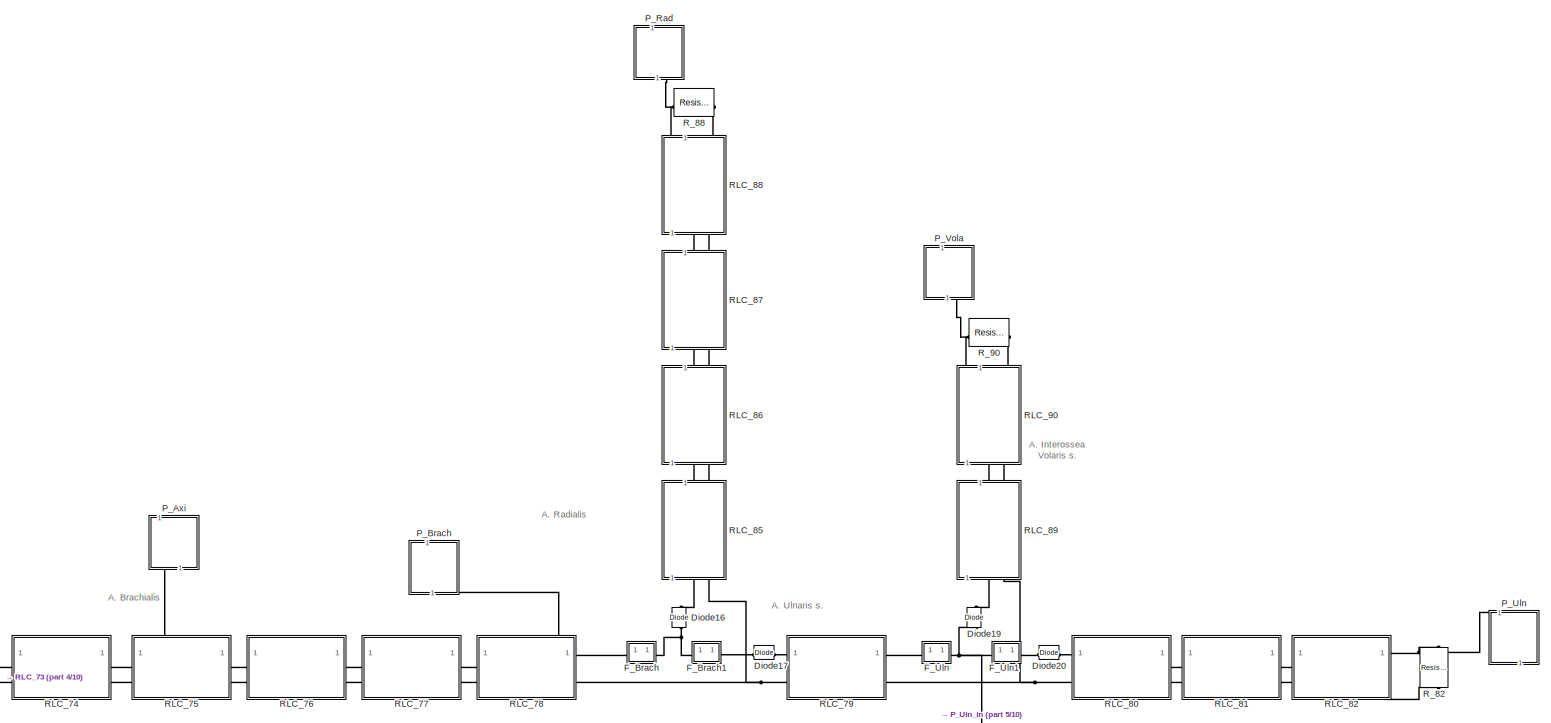
[diagram: root canvas - part 1/10, top right region]
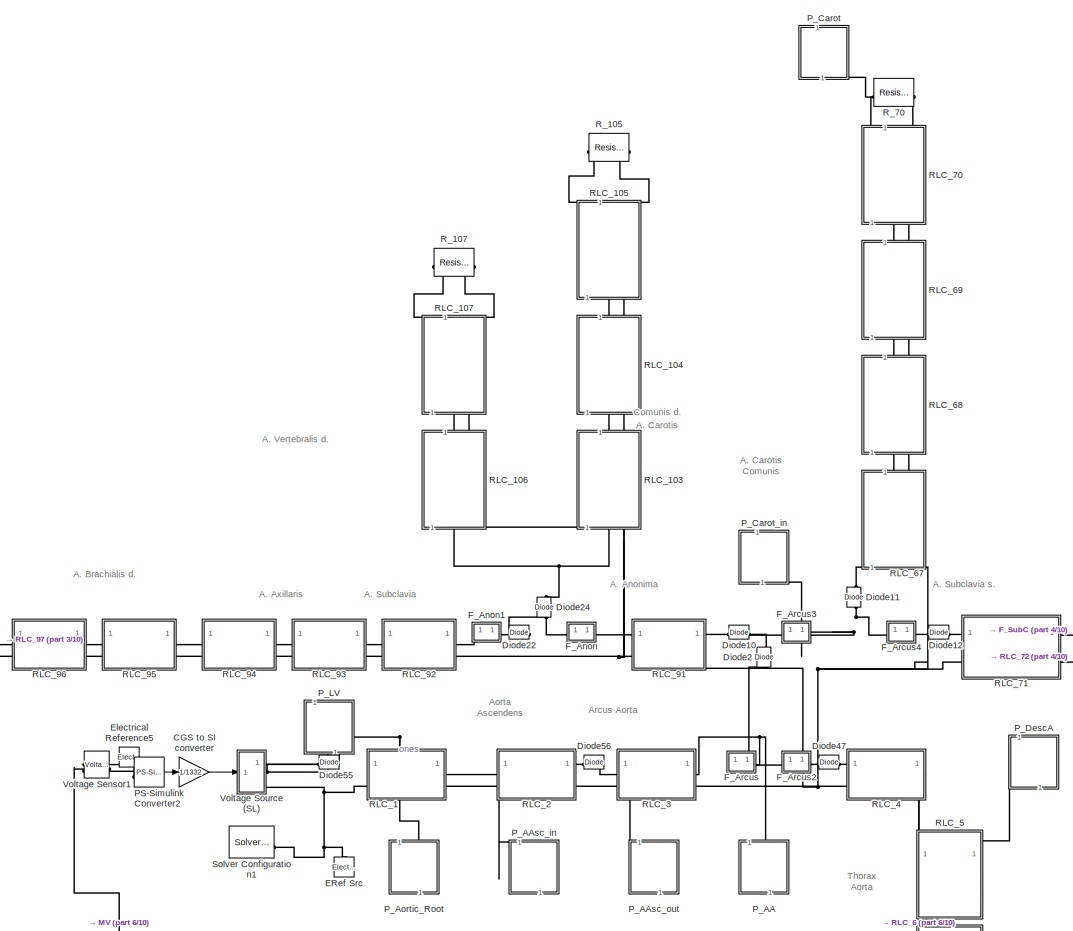
[diagram: root canvas - part 2/10, top left region]
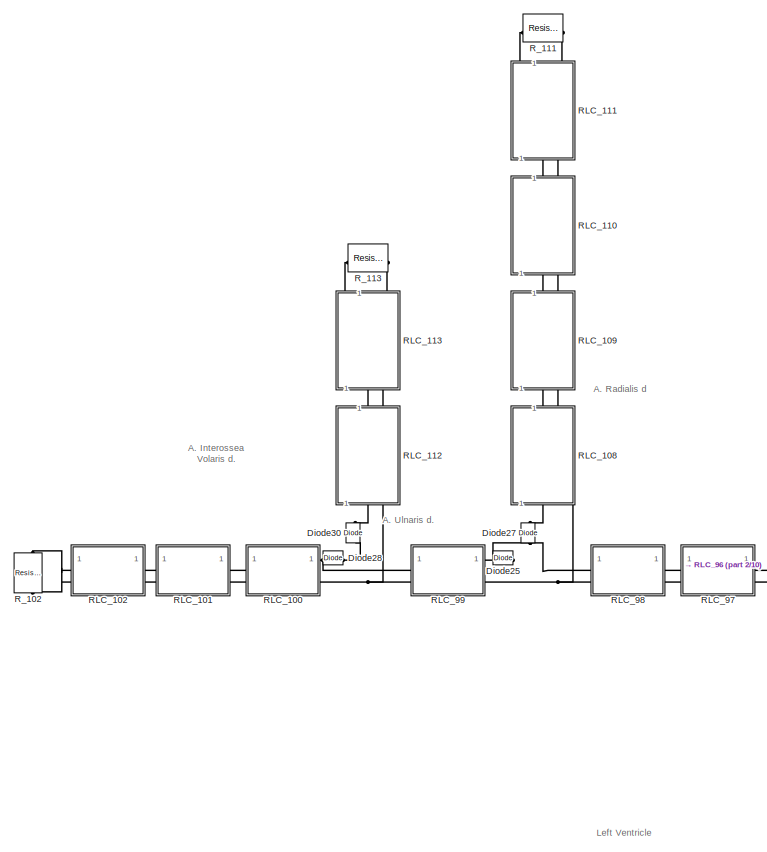
[diagram: root canvas - part 3/10, top left region]
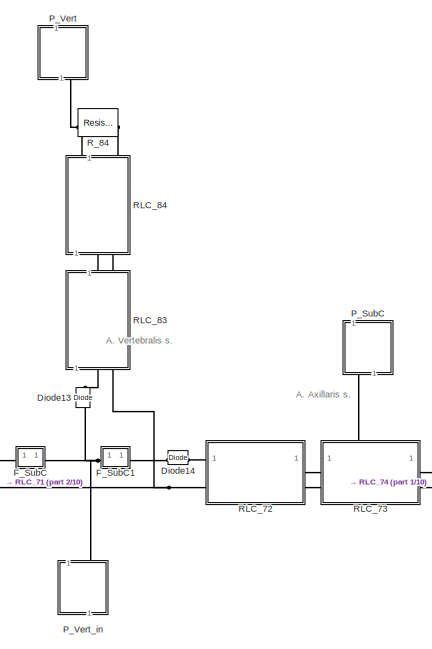
[diagram: root canvas - part 4/10, top center region]
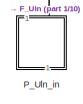
[diagram: root canvas - part 5/10, top right region]
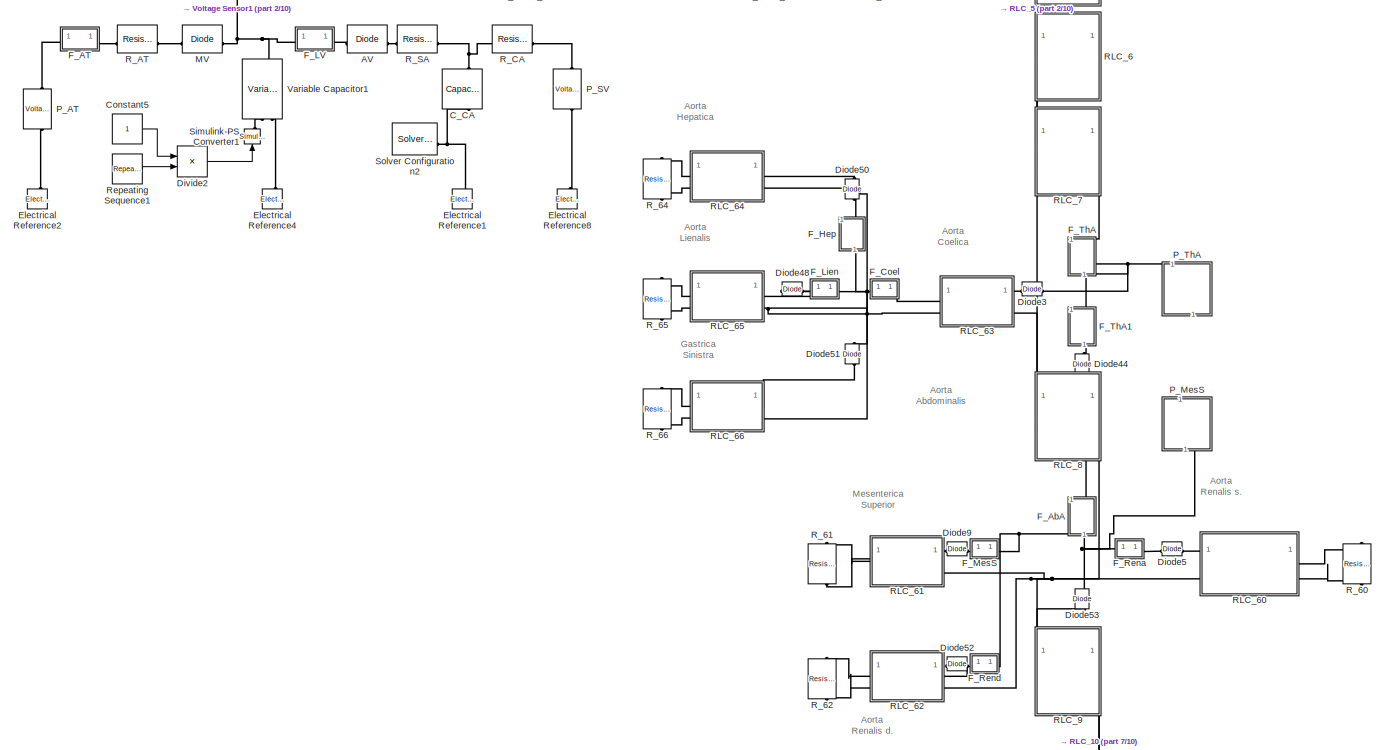
[diagram: root canvas - part 6/10, middle left region]
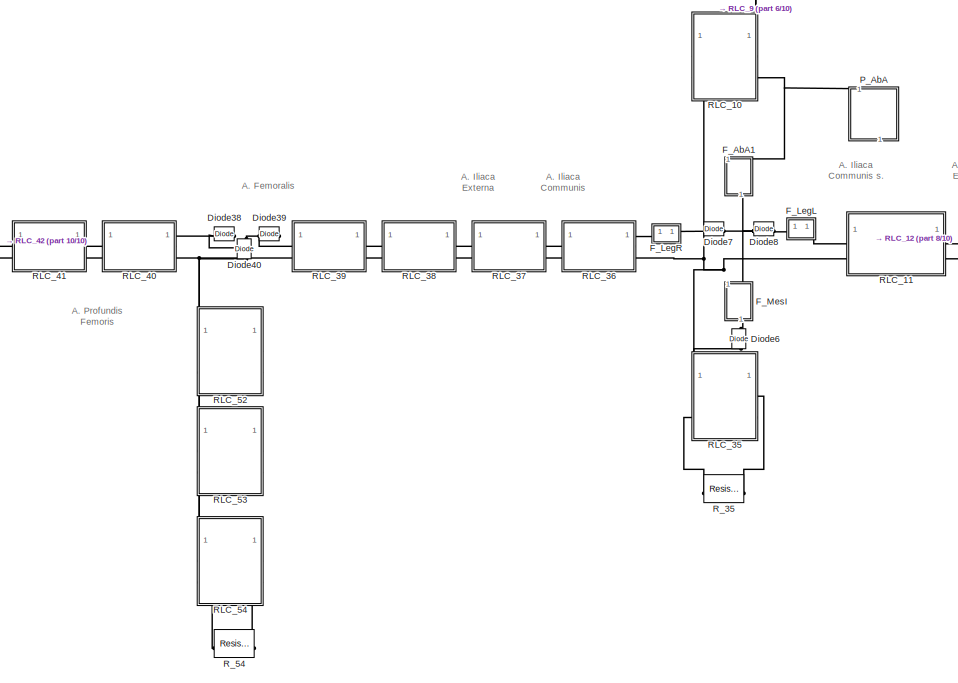
[diagram: root canvas - part 7/10, bottom center region]
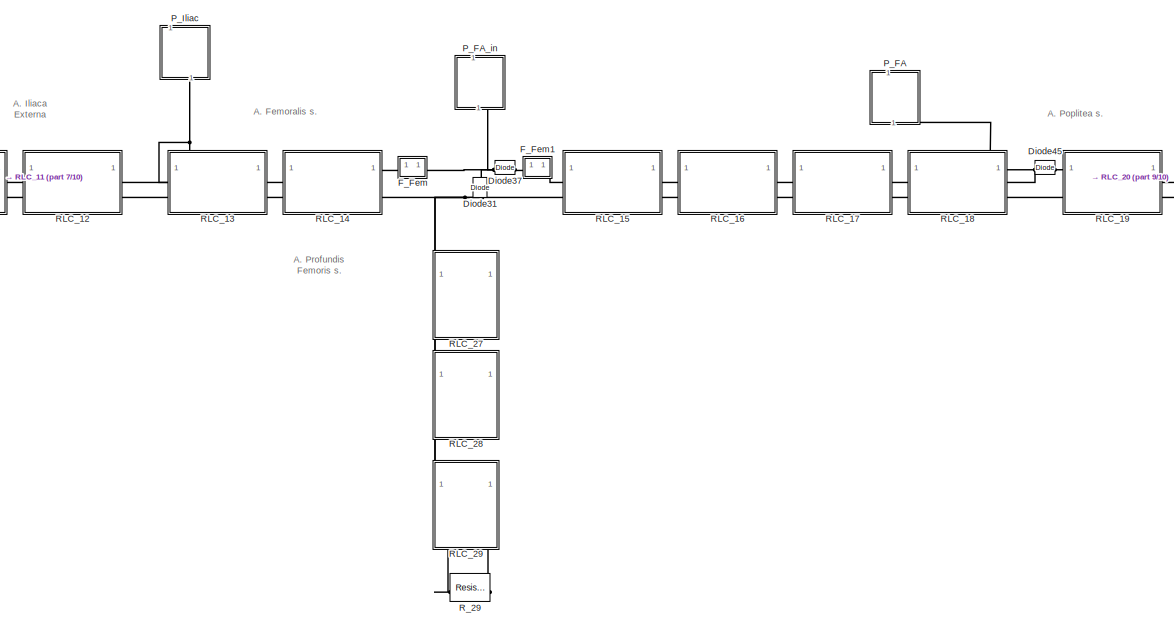
[diagram: root canvas - part 8/10, bottom center region]
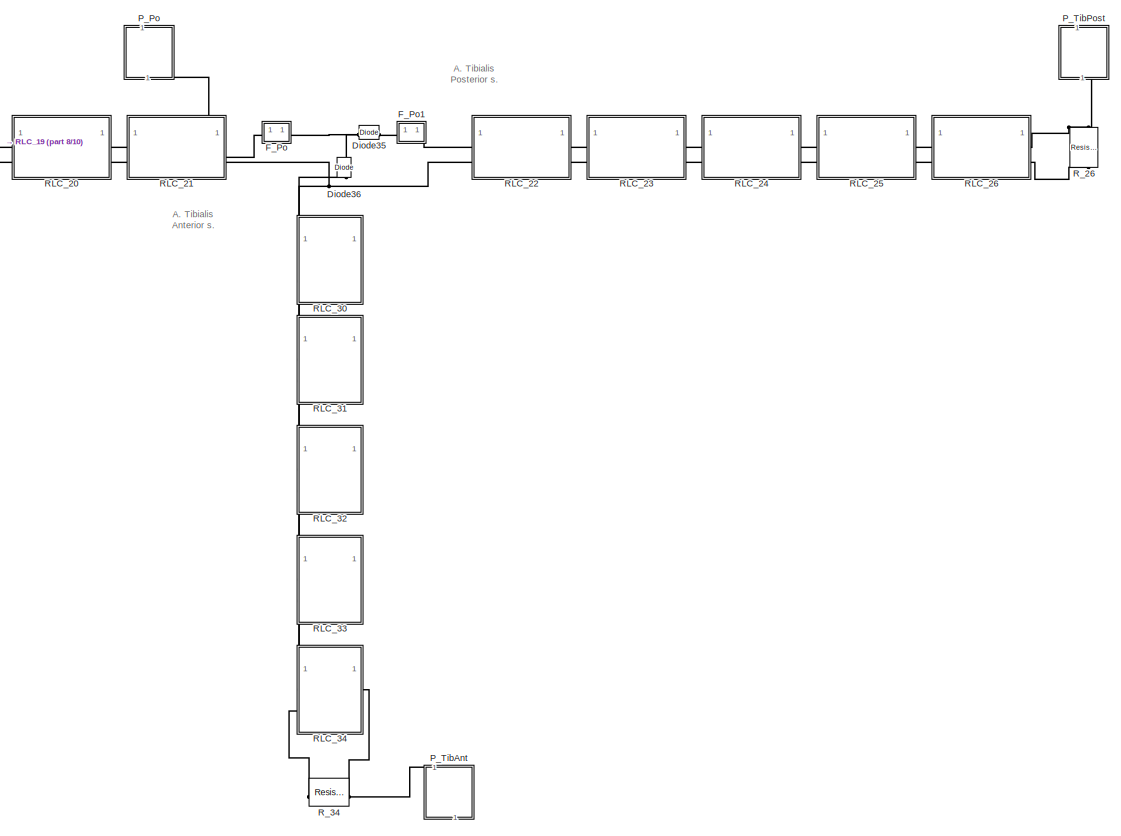
[diagram: root canvas - part 9/10, bottom right region]
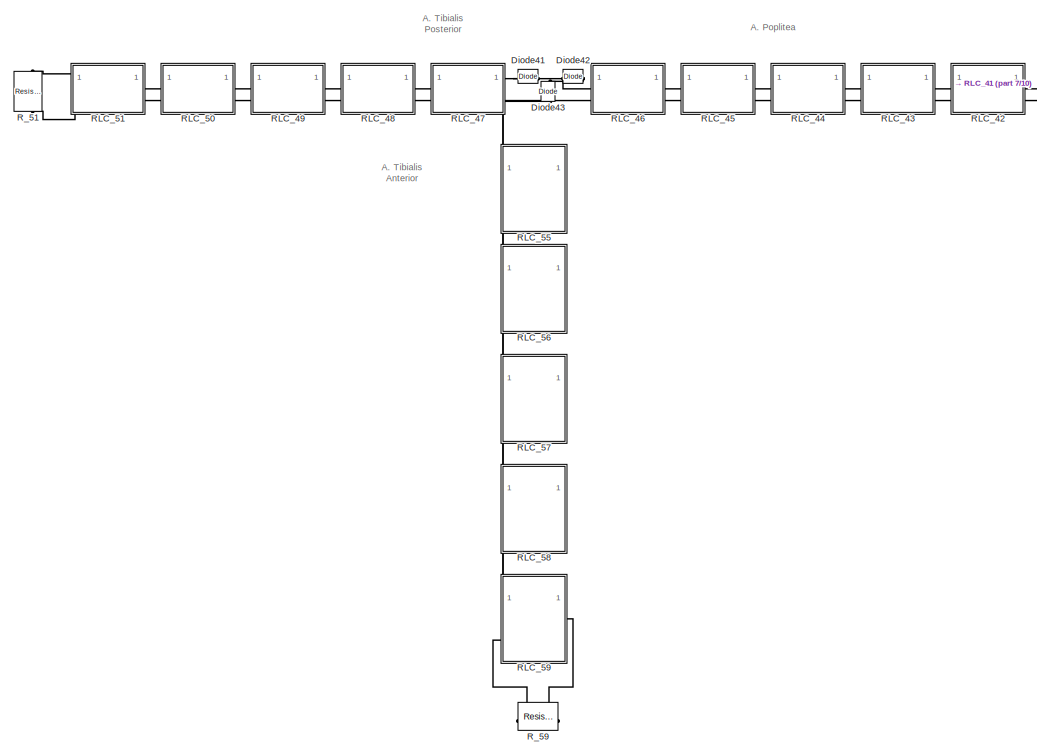
[diagram: root canvas - part 10/10, bottom left region]
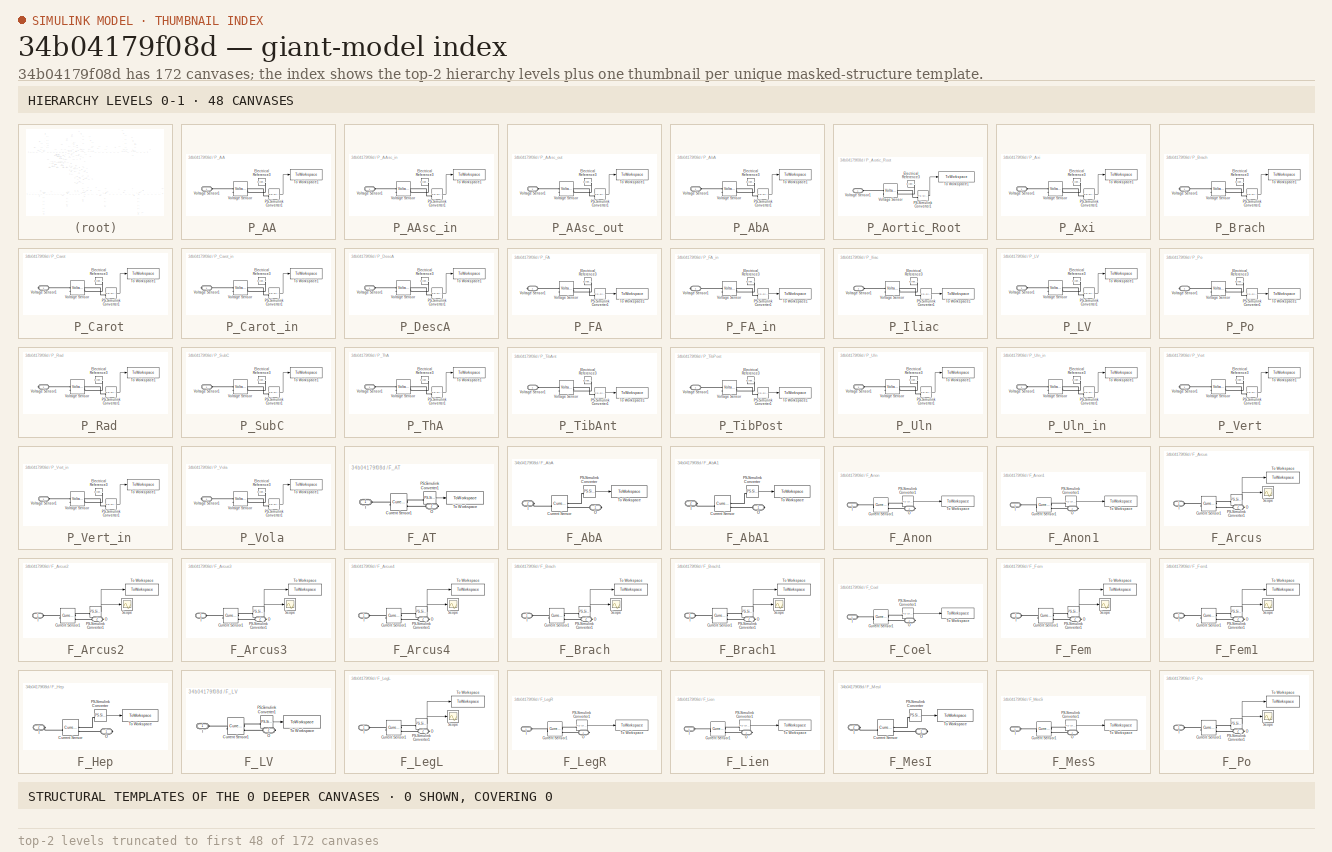
[diagram: thumbnail index - top-2 hierarchy levels (172 canvases (first 48 of 172 shown)) + 0 structural-template representatives of the remaining 0 canvases]
MODEL slx_34b04179f08d
KIND model
CONFIG AbsTol = auto
CONFIG EnableMultiTasking = off
CONFIG FixedStep = sample_time
CONFIG MaxStep = auto
CONFIG MinStep = auto
CONFIG RelTol = 1e-3
CONFIG SampleTimeConstraint = Unconstrained
CONFIG SolverName = FixedStepAuto
CONFIG StartTime = 0.0
CONFIG StopTime = stop_time
BLOCK [SubSystem]  P_AA
  NameLocation = top
  PortSchema = {"entries":[{"content":{"sides":[{"content":{"connectorIds":[]},"type":"ConnectorPlacement.EquallySpacedRectSide","uuid":"a76c572b-3baf-4a16-ab2f-87d419d93200"},{"content":{"connectorIds":[],"side":"RIGHT"},"type":"ConnectorPlacement.EquallySpacedRectSide","uuid":"88de64cb-36a9-4b54-8774-bd24fb5aa84a"},{"content":{"connectorIds":["LConn1"],"side":"TOP"},"type":"ConnectorPlacement.EquallySpacedRect...<+381ch>  <repeated x8 — deduplicated; at blocks: P_AA, P_AAsc_in, P_AAsc_out, P_AbA, P_Aortic_Root, P_DescA, P_LV, P_ThA>
BLOCK [Reference]  P_AA/Electrical Reference3  REF=fl_lib/Electrical/Electrical Elements/Electrical Reference
  NameLocation = top
  SourceBlock = fl_lib/Electrical/Electrical Elements/Electrical Reference
  SourceType = Electrical Reference
BLOCK [Reference]  P_AA/PS-Simulink Converter1  REF=nesl_utility/PS-Simulink
Converter
  NameLocation = top
  SourceBlock = nesl_utility/PS-Simulink\nConverter
  SourceType = PS-Simulink\nConverter
BLOCK [ToWorkspace]  P_AA/To Workspace1
  FixptAsFi = on
  MaxDataPoints = inf
  SampleTime = -1
  SaveFormat = Timeseries
  VariableName = P_AA
BLOCK [Reference]  P_AA/Voltage Sensor  REF=fl_lib/Electrical/Electrical Sensors/Voltage Sensor
  NameLocation = top
  SourceBlock = fl_lib/Electrical/Electrical Sensors/Voltage Sensor
  SourceType = Voltage Sensor
BLOCK [PMIOPort]  P_AA/Voltage Sensor1
  Side = Left
BLOCK [SubSystem]  P_AAsc_in
  NameLocation = top
BLOCK [Reference]  P_AAsc_in/Electrical Reference3  REF=fl_lib/Electrical/Electrical Elements/Electrical Reference
  NameLocation = top
  SourceBlock = fl_lib/Electrical/Electrical Elements/Electrical Reference
  SourceType = Electrical Reference
BLOCK [Reference]  P_AAsc_in/PS-Simulink Converter1  REF=nesl_utility/PS-Simulink
Converter
  NameLocation = top
  SourceBlock = nesl_utility/PS-Simulink\nConverter
  SourceType = PS-Simulink\nConverter
BLOCK [ToWorkspace]  P_AAsc_in/To Workspace1
  FixptAsFi = on
  MaxDataPoints = inf
  SampleTime = -1
  SaveFormat = Timeseries
  VariableName = P_AAsc_in
BLOCK [Reference]  P_AAsc_in/Voltage Sensor  REF=fl_lib/Electrical/Electrical Sensors/Voltage Sensor
  NameLocation = top
  SourceBlock = fl_lib/Electrical/Electrical Sensors/Voltage Sensor
  SourceType = Voltage Sensor
BLOCK [PMIOPort]  P_AAsc_in/Voltage Sensor1
  Side = Left
BLOCK [SubSystem]  P_AAsc_out
  NameLocation = top
BLOCK [Reference]  P_AAsc_out/Electrical Reference3  REF=fl_lib/Electrical/Electrical Elements/Electrical Reference
  NameLocation = top
  SourceBlock = fl_lib/Electrical/Electrical Elements/Electrical Reference
  SourceType = Electrical Reference
BLOCK [Reference]  P_AAsc_out/PS-Simulink Converter1  REF=nesl_utility/PS-Simulink
Converter
  NameLocation = top
  SourceBlock = nesl_utility/PS-Simulink\nConverter
  SourceType = PS-Simulink\nConverter
BLOCK [ToWorkspace]  P_AAsc_out/To Workspace1
  FixptAsFi = on
  MaxDataPoints = inf
  SampleTime = -1
  SaveFormat = Timeseries
  VariableName = P_AAsc_out
BLOCK [Reference]  P_AAsc_out/Voltage Sensor  REF=fl_lib/Electrical/Electrical Sensors/Voltage Sensor
  NameLocation = top
  SourceBlock = fl_lib/Electrical/Electrical Sensors/Voltage Sensor
  SourceType = Voltage Sensor
BLOCK [PMIOPort]  P_AAsc_out/Voltage Sensor1
  Side = Left
BLOCK [SubSystem]  P_AbA
  NameLocation = top
BLOCK [Reference]  P_AbA/Electrical Reference3  REF=fl_lib/Electrical/Electrical Elements/Electrical Reference
  NameLocation = top
  SourceBlock = fl_lib/Electrical/Electrical Elements/Electrical Reference
  SourceType = Electrical Reference
BLOCK [Reference]  P_AbA/PS-Simulink Converter1  REF=nesl_utility/PS-Simulink
Converter
  NameLocation = top
  SourceBlock = nesl_utility/PS-Simulink\nConverter
  SourceType = PS-Simulink\nConverter
BLOCK [ToWorkspace]  P_AbA/To Workspace1
  FixptAsFi = on
  MaxDataPoints = inf
  SampleTime = -1
  SaveFormat = Timeseries
  VariableName = P_AbA
BLOCK [Reference]  P_AbA/Voltage Sensor  REF=fl_lib/Electrical/Electrical Sensors/Voltage Sensor
  NameLocation = top
  SourceBlock = fl_lib/Electrical/Electrical Sensors/Voltage Sensor
  SourceType = Voltage Sensor
BLOCK [PMIOPort]  P_AbA/Voltage Sensor1
  Side = Left
BLOCK [SubSystem]  P_Aortic_Root
  NameLocation = top
BLOCK [Reference]  P_Aortic_Root/Electrical Reference3  REF=fl_lib/Electrical/Electrical Elements/Electrical Reference
  NameLocation = top
  SourceBlock = fl_lib/Electrical/Electrical Elements/Electrical Reference
  SourceType = Electrical Reference
BLOCK [Reference]  P_Aortic_Root/PS-Simulink Converter1  REF=nesl_utility/PS-Simulink
Converter
  NameLocation = top
  SourceBlock = nesl_utility/PS-Simulink\nConverter
  SourceType = PS-Simulink\nConverter
BLOCK [ToWorkspace]  P_Aortic_Root/To Workspace1
  FixptAsFi = on
  MaxDataPoints = inf
  SampleTime = -1
  SaveFormat = Timeseries
  VariableName = P_Aortic_Root
BLOCK [Reference]  P_Aortic_Root/Voltage Sensor  REF=fl_lib/Electrical/Electrical Sensors/Voltage Sensor
  NameLocation = top
  SourceBlock = fl_lib/Electrical/Electrical Sensors/Voltage Sensor
  SourceType = Voltage Sensor
BLOCK [PMIOPort]  P_Aortic_Root/Voltage Sensor1
  Side = Left
BLOCK [SubSystem]  P_Axi
  NameLocation = top
  PortSchema = {"entries":[{"content":{"sides":[{"content":{"connectorIds":[]},"type":"ConnectorPlacement.EquallySpacedRectSide","uuid":"a76c572b-3baf-4a16-ab2f-87d419d93200"},{"content":{"connectorIds":[],"side":"RIGHT"},"type":"ConnectorPlacement.EquallySpacedRectSide","uuid":"88de64cb-36a9-4b54-8774-bd24fb5aa84a"},{"content":{"connectorIds":["LConn1"],"side":"TOP"},"type":"ConnectorPlacement.EquallySpacedRect...<+525ch>  <repeated x4 — deduplicated; at blocks: P_Axi, P_Iliac, P_SubC, P_Uln>
BLOCK [Reference]  P_Axi/Electrical Reference3  REF=fl_lib/Electrical/Electrical Elements/Electrical Reference
  NameLocation = top
  SourceBlock = fl_lib/Electrical/Electrical Elements/Electrical Reference
  SourceType = Electrical Reference
BLOCK [Reference]  P_Axi/PS-Simulink Converter1  REF=nesl_utility/PS-Simulink
Converter
  NameLocation = top
  SourceBlock = nesl_utility/PS-Simulink\nConverter
  SourceType = PS-Simulink\nConverter
BLOCK [ToWorkspace]  P_Axi/To Workspace1
  FixptAsFi = on
  MaxDataPoints = inf
  SampleTime = -1
  SaveFormat = Timeseries
  VariableName = P_Axi
BLOCK [Reference]  P_Axi/Voltage Sensor  REF=fl_lib/Electrical/Electrical Sensors/Voltage Sensor
  NameLocation = top
  SourceBlock = fl_lib/Electrical/Electrical Sensors/Voltage Sensor
  SourceType = Voltage Sensor
BLOCK [PMIOPort]  P_Axi/Voltage Sensor1
  Side = Left
BLOCK [SubSystem]  P_Brach
  NameLocation = top
  PortSchema = {"entries":[{"content":{"sides":[{"content":{"connectorIds":[]},"type":"ConnectorPlacement.EquallySpacedRectSide","uuid":"a76c572b-3baf-4a16-ab2f-87d419d93200"},{"content":{"connectorIds":[],"side":"RIGHT"},"type":"ConnectorPlacement.EquallySpacedRectSide","uuid":"88de64cb-36a9-4b54-8774-bd24fb5aa84a"},{"content":{"connectorIds":[],"side":"TOP"},"type":"ConnectorPlacement.EquallySpacedRectSide","u...<+525ch>  <repeated x3 — deduplicated; at blocks: P_Brach, P_FA, P_Po>
BLOCK [Reference]  P_Brach/Electrical Reference3  REF=fl_lib/Electrical/Electrical Elements/Electrical Reference
  NameLocation = top
  SourceBlock = fl_lib/Electrical/Electrical Elements/Electrical Reference
  SourceType = Electrical Reference
BLOCK [Reference]  P_Brach/PS-Simulink Converter1  REF=nesl_utility/PS-Simulink
Converter
  NameLocation = top
  SourceBlock = nesl_utility/PS-Simulink\nConverter
  SourceType = PS-Simulink\nConverter
BLOCK [ToWorkspace]  P_Brach/To Workspace1
  FixptAsFi = on
  MaxDataPoints = inf
  SampleTime = -1
  SaveFormat = Timeseries
  VariableName = P_Brach
BLOCK [Reference]  P_Brach/Voltage Sensor  REF=fl_lib/Electrical/Electrical Sensors/Voltage Sensor
  NameLocation = top
  SourceBlock = fl_lib/Electrical/Electrical Sensors/Voltage Sensor
  SourceType = Voltage Sensor
BLOCK [PMIOPort]  P_Brach/Voltage Sensor1
  Side = Right
BLOCK [SubSystem]  P_Carot
  NameLocation = top
BLOCK [Reference]  P_Carot/Electrical Reference3  REF=fl_lib/Electrical/Electrical Elements/Electrical Reference
  NameLocation = top
  SourceBlock = fl_lib/Electrical/Electrical Elements/Electrical Reference
  SourceType = Electrical Reference
BLOCK [Reference]  P_Carot/PS-Simulink Converter1  REF=nesl_utility/PS-Simulink
Converter
  NameLocation = top
  SourceBlock = nesl_utility/PS-Simulink\nConverter
  SourceType = PS-Simulink\nConverter
BLOCK [ToWorkspace]  P_Carot/To Workspace1
  FixptAsFi = on
  MaxDataPoints = inf
  SampleTime = -1
  SaveFormat = Timeseries
  VariableName = P_Carot
BLOCK [Reference]  P_Carot/Voltage Sensor  REF=fl_lib/Electrical/Electrical Sensors/Voltage Sensor
  NameLocation = top
  SourceBlock = fl_lib/Electrical/Electrical Sensors/Voltage Sensor
  SourceType = Voltage Sensor
BLOCK [PMIOPort]  P_Carot/Voltage Sensor1
  Side = Right
BLOCK [SubSystem]  P_Carot_in
  NameLocation = top
  PortSchema = {"entries":[{"content":{"sides":[{"content":{},"type":"ConnectorPlacement.EquallySpacedRectSide","uuid":"a1d35573-557f-457b-bf45-c4c74b48ac24"},{"content":{"side":"RIGHT"},"type":"ConnectorPlacement.EquallySpacedRectSide","uuid":"121e7d4c-d41f-45b5-849e-1bc2f3155f6c"},{"content":{"side":"TOP"},"type":"ConnectorPlacement.EquallySpacedRectSide","uuid":"a10ee351-dae1-4dc1-86b4-11b35328910e"},{"conten...<+328ch>
BLOCK [Reference]  P_Carot_in/Electrical Reference3  REF=fl_lib/Electrical/Electrical Elements/Electrical Reference
  NameLocation = top
  SourceBlock = fl_lib/Electrical/Electrical Elements/Electrical Reference
  SourceType = Electrical Reference
BLOCK [Reference]  P_Carot_in/PS-Simulink Converter1  REF=nesl_utility/PS-Simulink
Converter
  NameLocation = top
  SourceBlock = nesl_utility/PS-Simulink\nConverter
  SourceType = PS-Simulink\nConverter
BLOCK [ToWorkspace]  P_Carot_in/To Workspace1
  FixptAsFi = on
  MaxDataPoints = inf
  SampleTime = -1
  SaveFormat = Timeseries
  VariableName = P_Carot_in
BLOCK [Reference]  P_Carot_in/Voltage Sensor  REF=fl_lib/Electrical/Electrical Sensors/Voltage Sensor
  NameLocation = top
  SourceBlock = fl_lib/Electrical/Electrical Sensors/Voltage Sensor
  SourceType = Voltage Sensor
BLOCK [PMIOPort]  P_Carot_in/Voltage Sensor1
  Side = Right
BLOCK [SubSystem]  P_DescA
  NameLocation = top
BLOCK [Reference]  P_DescA/Electrical Reference3  REF=fl_lib/Electrical/Electrical Elements/Electrical Reference
  NameLocation = top
  SourceBlock = fl_lib/Electrical/Electrical Elements/Electrical Reference
  SourceType = Electrical Reference
BLOCK [Reference]  P_DescA/PS-Simulink Converter1  REF=nesl_utility/PS-Simulink
Converter
  NameLocation = top
  SourceBlock = nesl_utility/PS-Simulink\nConverter
  SourceType = PS-Simulink\nConverter
BLOCK [ToWorkspace]  P_DescA/To Workspace1
  FixptAsFi = on
  MaxDataPoints = inf
  SampleTime = -1
  SaveFormat = Timeseries
  VariableName = P_DescA
BLOCK [Reference]  P_DescA/Voltage Sensor  REF=fl_lib/Electrical/Electrical Sensors/Voltage Sensor
  NameLocation = top
  SourceBlock = fl_lib/Electrical/Electrical Sensors/Voltage Sensor
  SourceType = Voltage Sensor
BLOCK [PMIOPort]  P_DescA/Voltage Sensor1
  Side = Left
BLOCK [SubSystem]  P_FA
  NameLocation = top
BLOCK [Reference]  P_FA/Electrical Reference3  REF=fl_lib/Electrical/Electrical Elements/Electrical Reference
  NameLocation = top
  SourceBlock = fl_lib/Electrical/Electrical Elements/Electrical Reference
  SourceType = Electrical Reference
BLOCK [Reference]  P_FA/PS-Simulink Converter1  REF=nesl_utility/PS-Simulink
Converter
  NameLocation = top
  SourceBlock = nesl_utility/PS-Simulink\nConverter
  SourceType = PS-Simulink\nConverter
BLOCK [ToWorkspace]  P_FA/To Workspace1
  FixptAsFi = on
  MaxDataPoints = inf
  SampleTime = -1
  SaveFormat = Timeseries
  VariableName = P_FA
BLOCK [Reference]  P_FA/Voltage Sensor  REF=fl_lib/Electrical/Electrical Sensors/Voltage Sensor
  NameLocation = top
  SourceBlock = fl_lib/Electrical/Electrical Sensors/Voltage Sensor
  SourceType = Voltage Sensor
BLOCK [PMIOPort]  P_FA/Voltage Sensor1
  Side = Right
BLOCK [SubSystem]  P_FA_in
  NameLocation = top
BLOCK [Reference]  P_FA_in/Electrical Reference3  REF=fl_lib/Electrical/Electrical Elements/Electrical Reference
  NameLocation = top
  SourceBlock = fl_lib/Electrical/Electrical Elements/Electrical Reference
  SourceType = Electrical Reference
BLOCK [Reference]  P_FA_in/PS-Simulink Converter1  REF=nesl_utility/PS-Simulink
Converter
  NameLocation = top
  SourceBlock = nesl_utility/PS-Simulink\nConverter
  SourceType = PS-Simulink\nConverter
BLOCK [ToWorkspace]  P_FA_in/To Workspace1
  FixptAsFi = on
  MaxDataPoints = inf
  SampleTime = -1
  SaveFormat = Timeseries
  VariableName = P_FA_in
BLOCK [Reference]  P_FA_in/Voltage Sensor  REF=fl_lib/Electrical/Electrical Sensors/Voltage Sensor
  NameLocation = top
  SourceBlock = fl_lib/Electrical/Electrical Sensors/Voltage Sensor
  SourceType = Voltage Sensor
BLOCK [PMIOPort]  P_FA_in/Voltage Sensor1
  Side = Right
BLOCK [SubSystem]  P_Iliac
  NameLocation = top
BLOCK [Reference]  P_Iliac/Electrical Reference3  REF=fl_lib/Electrical/Electrical Elements/Electrical Reference
  NameLocation = top
  SourceBlock = fl_lib/Electrical/Electrical Elements/Electrical Reference
  SourceType = Electrical Reference
BLOCK [Reference]  P_Iliac/PS-Simulink Converter1  REF=nesl_utility/PS-Simulink
Converter
  NameLocation = top
  SourceBlock = nesl_utility/PS-Simulink\nConverter
  SourceType = PS-Simulink\nConverter
BLOCK [ToWorkspace]  P_Iliac/To Workspace1
  FixptAsFi = on
  MaxDataPoints = inf
  SampleTime = -1
  SaveFormat = Timeseries
  VariableName = P_Iliac
BLOCK [Reference]  P_Iliac/Voltage Sensor  REF=fl_lib/Electrical/Electrical Sensors/Voltage Sensor
  NameLocation = top
  SourceBlock = fl_lib/Electrical/Electrical Sensors/Voltage Sensor
  SourceType = Voltage Sensor
BLOCK [PMIOPort]  P_Iliac/Voltage Sensor1
  Side = Left
BLOCK [SubSystem]  P_LV
  NameLocation = top
BLOCK [Reference]  P_LV/Electrical Reference3  REF=fl_lib/Electrical/Electrical Elements/Electrical Reference
  NameLocation = top
  SourceBlock = fl_lib/Electrical/Electrical Elements/Electrical Reference
  SourceType = Electrical Reference
BLOCK [Reference]  P_LV/PS-Simulink Converter1  REF=nesl_utility/PS-Simulink
Converter
  NameLocation = top
  SourceBlock = nesl_utility/PS-Simulink\nConverter
  SourceType = PS-Simulink\nConverter
BLOCK [ToWorkspace]  P_LV/To Workspace1
  FixptAsFi = on
  MaxDataPoints = inf
  SampleTime = -1
  SaveFormat = Timeseries
  VariableName = P_LV
BLOCK [Reference]  P_LV/Voltage Sensor  REF=fl_lib/Electrical/Electrical Sensors/Voltage Sensor
  NameLocation = top
  SourceBlock = fl_lib/Electrical/Electrical Sensors/Voltage Sensor
  SourceType = Voltage Sensor
BLOCK [PMIOPort]  P_LV/Voltage Sensor1
  Side = Left
BLOCK [SubSystem]  P_Po
  NameLocation = top
BLOCK [Reference]  P_Po/Electrical Reference3  REF=fl_lib/Electrical/Electrical Elements/Electrical Reference
  NameLocation = top
  SourceBlock = fl_lib/Electrical/Electrical Elements/Electrical Reference
  SourceType = Electrical Reference
BLOCK [Reference]  P_Po/PS-Simulink Converter1  REF=nesl_utility/PS-Simulink
Converter
  NameLocation = top
  SourceBlock = nesl_utility/PS-Simulink\nConverter
  SourceType = PS-Simulink\nConverter
BLOCK [ToWorkspace]  P_Po/To Workspace1
  FixptAsFi = on
  MaxDataPoints = inf
  SampleTime = -1
  SaveFormat = Timeseries
  VariableName = P_Po
BLOCK [Reference]  P_Po/Voltage Sensor  REF=fl_lib/Electrical/Electrical Sensors/Voltage Sensor
  NameLocation = top
  SourceBlock = fl_lib/Electrical/Electrical Sensors/Voltage Sensor
  SourceType = Voltage Sensor
BLOCK [PMIOPort]  P_Po/Voltage Sensor1
  Side = Right
BLOCK [SubSystem]  P_Rad
  NameLocation = top
BLOCK [Reference]  P_Rad/Electrical Reference3  REF=fl_lib/Electrical/Electrical Elements/Electrical Reference
  NameLocation = top
  SourceBlock = fl_lib/Electrical/Electrical Elements/Electrical Reference
  SourceType = Electrical Reference
BLOCK [Reference]  P_Rad/PS-Simulink Converter1  REF=nesl_utility/PS-Simulink
Converter
  NameLocation = top
  SourceBlock = nesl_utility/PS-Simulink\nConverter
  SourceType = PS-Simulink\nConverter
BLOCK [ToWorkspace]  P_Rad/To Workspace1
  FixptAsFi = on
  MaxDataPoints = inf
  SampleTime = -1
  SaveFormat = Timeseries
  VariableName = P_Rad
BLOCK [Reference]  P_Rad/Voltage Sensor  REF=fl_lib/Electrical/Electrical Sensors/Voltage Sensor
  NameLocation = top
  SourceBlock = fl_lib/Electrical/Electrical Sensors/Voltage Sensor
  SourceType = Voltage Sensor
BLOCK [PMIOPort]  P_Rad/Voltage Sensor1
  Side = Right
BLOCK [SubSystem]  P_SubC
  NameLocation = top
BLOCK [Reference]  P_SubC/Electrical Reference3  REF=fl_lib/Electrical/Electrical Elements/Electrical Reference
  NameLocation = top
  SourceBlock = fl_lib/Electrical/Electrical Elements/Electrical Reference
  SourceType = Electrical Reference
BLOCK [Reference]  P_SubC/PS-Simulink Converter1  REF=nesl_utility/PS-Simulink
Converter
  NameLocation = top
  SourceBlock = nesl_utility/PS-Simulink\nConverter
  SourceType = PS-Simulink\nConverter
BLOCK [ToWorkspace]  P_SubC/To Workspace1
  FixptAsFi = on
  MaxDataPoints = inf
  SampleTime = -1
  SaveFormat = Timeseries
  VariableName = P_SubC
BLOCK [Reference]  P_SubC/Voltage Sensor  REF=fl_lib/Electrical/Electrical Sensors/Voltage Sensor
  NameLocation = top
  SourceBlock = fl_lib/Electrical/Electrical Sensors/Voltage Sensor
  SourceType = Voltage Sensor
BLOCK [PMIOPort]  P_SubC/Voltage Sensor1
  Side = Left
BLOCK [SubSystem]  P_ThA
  NameLocation = top
BLOCK [Reference]  P_ThA/Electrical Reference3  REF=fl_lib/Electrical/Electrical Elements/Electrical Reference
  NameLocation = top
  SourceBlock = fl_lib/Electrical/Electrical Elements/Electrical Reference
  SourceType = Electrical Reference
BLOCK [Reference]  P_ThA/PS-Simulink Converter1  REF=nesl_utility/PS-Simulink
Converter
  NameLocation = top
  SourceBlock = nesl_utility/PS-Simulink\nConverter
  SourceType = PS-Simulink\nConverter
BLOCK [ToWorkspace]  P_ThA/To Workspace1
  FixptAsFi = on
  MaxDataPoints = inf
  SampleTime = -1
  SaveFormat = Timeseries
  VariableName = P_ThA
BLOCK [Reference]  P_ThA/Voltage Sensor  REF=fl_lib/Electrical/Electrical Sensors/Voltage Sensor
  NameLocation = top
  SourceBlock = fl_lib/Electrical/Electrical Sensors/Voltage Sensor
  SourceType = Voltage Sensor
BLOCK [PMIOPort]  P_ThA/Voltage Sensor1
  Side = Left
BLOCK [SubSystem]  P_TibAnt
  NameLocation = top
  PortSchema = {"entries":[{"content":{"sides":[{"content":{"connectorIds":[]},"type":"ConnectorPlacement.EquallySpacedRectSide","uuid":"efa007d6-45f4-4edc-b08d-571edfadacea"},{"content":{"connectorIds":[],"side":"RIGHT"},"type":"ConnectorPlacement.EquallySpacedRectSide","uuid":"9590d5ff-e9bb-4f62-8234-4beabe73ec5b"},{"content":{"connectorIds":["LConn1"],"side":"TOP"},"type":"ConnectorPlacement.EquallySpacedRect...<+237ch>
BLOCK [Reference]  P_TibAnt/Electrical Reference3  REF=fl_lib/Electrical/Electrical Elements/Electrical Reference
  NameLocation = top
  SourceBlock = fl_lib/Electrical/Electrical Elements/Electrical Reference
  SourceType = Electrical Reference
BLOCK [Reference]  P_TibAnt/PS-Simulink Converter1  REF=nesl_utility/PS-Simulink
Converter
  NameLocation = top
  SourceBlock = nesl_utility/PS-Simulink\nConverter
  SourceType = PS-Simulink\nConverter
BLOCK [ToWorkspace]  P_TibAnt/To Workspace1
  FixptAsFi = on
  MaxDataPoints = inf
  SampleTime = -1
  SaveFormat = Timeseries
  VariableName = P_TibAnt
BLOCK [Reference]  P_TibAnt/Voltage Sensor  REF=fl_lib/Electrical/Electrical Sensors/Voltage Sensor
  NameLocation = top
  SourceBlock = fl_lib/Electrical/Electrical Sensors/Voltage Sensor
  SourceType = Voltage Sensor
BLOCK [PMIOPort]  P_TibAnt/Voltage Sensor1
  Side = Left
BLOCK [SubSystem]  P_TibPost
  NameLocation = top
BLOCK [Reference]  P_TibPost/Electrical Reference3  REF=fl_lib/Electrical/Electrical Elements/Electrical Reference
  NameLocation = top
  SourceBlock = fl_lib/Electrical/Electrical Elements/Electrical Reference
  SourceType = Electrical Reference
BLOCK [Reference]  P_TibPost/PS-Simulink Converter1  REF=nesl_utility/PS-Simulink
Converter
  NameLocation = top
  SourceBlock = nesl_utility/PS-Simulink\nConverter
  SourceType = PS-Simulink\nConverter
BLOCK [ToWorkspace]  P_TibPost/To Workspace1
  FixptAsFi = on
  MaxDataPoints = inf
  SampleTime = -1
  SaveFormat = Timeseries
  VariableName = P_TibPost
BLOCK [Reference]  P_TibPost/Voltage Sensor  REF=fl_lib/Electrical/Electrical Sensors/Voltage Sensor
  NameLocation = top
  SourceBlock = fl_lib/Electrical/Electrical Sensors/Voltage Sensor
  SourceType = Voltage Sensor
BLOCK [PMIOPort]  P_TibPost/Voltage Sensor1
  Side = Right
BLOCK [SubSystem]  P_Uln
  NameLocation = top
BLOCK [Reference]  P_Uln/Electrical Reference3  REF=fl_lib/Electrical/Electrical Elements/Electrical Reference
  NameLocation = top
  SourceBlock = fl_lib/Electrical/Electrical Elements/Electrical Reference
  SourceType = Electrical Reference
BLOCK [Reference]  P_Uln/PS-Simulink Converter1  REF=nesl_utility/PS-Simulink
Converter
  NameLocation = top
  SourceBlock = nesl_utility/PS-Simulink\nConverter
  SourceType = PS-Simulink\nConverter
BLOCK [ToWorkspace]  P_Uln/To Workspace1
  FixptAsFi = on
  MaxDataPoints = inf
  SampleTime = -1
  SaveFormat = Timeseries
  VariableName = P_Uln
BLOCK [Reference]  P_Uln/Voltage Sensor  REF=fl_lib/Electrical/Electrical Sensors/Voltage Sensor
  NameLocation = top
  SourceBlock = fl_lib/Electrical/Electrical Sensors/Voltage Sensor
  SourceType = Voltage Sensor
BLOCK [PMIOPort]  P_Uln/Voltage Sensor1
  Side = Left
BLOCK [SubSystem]  P_Uln_in
BLOCK [Reference]  P_Uln_in/Electrical Reference3  REF=fl_lib/Electrical/Electrical Elements/Electrical Reference
  NameLocation = top
  SourceBlock = fl_lib/Electrical/Electrical Elements/Electrical Reference
  SourceType = Electrical Reference
BLOCK [Reference]  P_Uln_in/PS-Simulink Converter1  REF=nesl_utility/PS-Simulink
Converter
  NameLocation = top
  SourceBlock = nesl_utility/PS-Simulink\nConverter
  SourceType = PS-Simulink\nConverter
BLOCK [ToWorkspace]  P_Uln_in/To Workspace1
  FixptAsFi = on
  MaxDataPoints = inf
  SampleTime = -1
  SaveFormat = Timeseries
  VariableName = P_Uln_in1
BLOCK [Reference]  P_Uln_in/Voltage Sensor  REF=fl_lib/Electrical/Electrical Sensors/Voltage Sensor
  NameLocation = top
  SourceBlock = fl_lib/Electrical/Electrical Sensors/Voltage Sensor
  SourceType = Voltage Sensor
BLOCK [PMIOPort]  P_Uln_in/Voltage Sensor1
  Side = Left
BLOCK [SubSystem]  P_Vert
  NameLocation = top
BLOCK [Reference]  P_Vert/Electrical Reference3  REF=fl_lib/Electrical/Electrical Elements/Electrical Reference
  NameLocation = top
  SourceBlock = fl_lib/Electrical/Electrical Elements/Electrical Reference
  SourceType = Electrical Reference
BLOCK [Reference]  P_Vert/PS-Simulink Converter1  REF=nesl_utility/PS-Simulink
Converter
  NameLocation = top
  SourceBlock = nesl_utility/PS-Simulink\nConverter
  SourceType = PS-Simulink\nConverter
BLOCK [ToWorkspace]  P_Vert/To Workspace1
  FixptAsFi = on
  MaxDataPoints = inf
  SampleTime = -1
  SaveFormat = Timeseries
  VariableName = P_Vert
BLOCK [Reference]  P_Vert/Voltage Sensor  REF=fl_lib/Electrical/Electrical Sensors/Voltage Sensor
  NameLocation = top
  SourceBlock = fl_lib/Electrical/Electrical Sensors/Voltage Sensor
  SourceType = Voltage Sensor
BLOCK [PMIOPort]  P_Vert/Voltage Sensor1
  Side = Right
BLOCK [SubSystem]  P_Vert_in
BLOCK [Reference]  P_Vert_in/Electrical Reference3  REF=fl_lib/Electrical/Electrical Elements/Electrical Reference
  NameLocation = top
  SourceBlock = fl_lib/Electrical/Electrical Elements/Electrical Reference
  SourceType = Electrical Reference
BLOCK [Reference]  P_Vert_in/PS-Simulink Converter1  REF=nesl_utility/PS-Simulink
Converter
  NameLocation = top
  SourceBlock = nesl_utility/PS-Simulink\nConverter
  SourceType = PS-Simulink\nConverter
BLOCK [ToWorkspace]  P_Vert_in/To Workspace1
  FixptAsFi = on
  MaxDataPoints = inf
  SampleTime = -1
  SaveFormat = Timeseries
  VariableName = P_Vert_in
BLOCK [Reference]  P_Vert_in/Voltage Sensor  REF=fl_lib/Electrical/Electrical Sensors/Voltage Sensor
  NameLocation = top
  SourceBlock = fl_lib/Electrical/Electrical Sensors/Voltage Sensor
  SourceType = Voltage Sensor
BLOCK [PMIOPort]  P_Vert_in/Voltage Sensor1
  Side = Left
BLOCK [SubSystem]  P_Vola
  NameLocation = top
BLOCK [Reference]  P_Vola/Electrical Reference3  REF=fl_lib/Electrical/Electrical Elements/Electrical Reference
  NameLocation = top
  SourceBlock = fl_lib/Electrical/Electrical Elements/Electrical Reference
  SourceType = Electrical Reference
BLOCK [Reference]  P_Vola/PS-Simulink Converter1  REF=nesl_utility/PS-Simulink
Converter
  NameLocation = top
  SourceBlock = nesl_utility/PS-Simulink\nConverter
  SourceType = PS-Simulink\nConverter
BLOCK [ToWorkspace]  P_Vola/To Workspace1
  FixptAsFi = on
  MaxDataPoints = inf
  SampleTime = -1
  SaveFormat = Timeseries
  VariableName = P_Vola
BLOCK [Reference]  P_Vola/Voltage Sensor  REF=fl_lib/Electrical/Electrical Sensors/Voltage Sensor
  NameLocation = top
  SourceBlock = fl_lib/Electrical/Electrical Sensors/Voltage Sensor
  SourceType = Voltage Sensor
BLOCK [PMIOPort]  P_Vola/Voltage Sensor1
  Side = Right
BLOCK [Reference] AV  REF=fl_lib/Electrical/Electrical Elements/Diode
  NameLocation = top
  SourceBlock = fl_lib/Electrical/Electrical Elements/Diode
  SourceType = Diode
BLOCK [Gain] CGS to SI converter
  Gain = 1/1332
  NameLocation = top
BLOCK [Reference] C_CA  REF=fl_lib/Electrical/Electrical Elements/Capacitor
  NameLocation = left
  SourceBlock = fl_lib/Electrical/Electrical Elements/Capacitor
  SourceType = Capacitor
BLOCK [Constant] Constant5
  SampleTime = sample_time
BLOCK [Reference] Diode10  REF=ee_lib/Semiconductors &
Converters/Diode
  NameLocation = top
  SourceBlock = ee_lib/Semiconductors &\nConverters/Diode
  SourceType = Diode
BLOCK [Reference] Diode11  REF=ee_lib/Semiconductors &
Converters/Diode
  NameLocation = right
  SourceBlock = ee_lib/Semiconductors &\nConverters/Diode
  SourceType = Diode
BLOCK [Reference] Diode12  REF=ee_lib/Semiconductors &
Converters/Diode
  SourceBlock = ee_lib/Semiconductors &\nConverters/Diode
  SourceType = Diode
BLOCK [Reference] Diode13  REF=ee_lib/Semiconductors &
Converters/Diode
  NameLocation = right
  SourceBlock = ee_lib/Semiconductors &\nConverters/Diode
  SourceType = Diode
BLOCK [Reference] Diode14  REF=ee_lib/Semiconductors &
Converters/Diode
  SourceBlock = ee_lib/Semiconductors &\nConverters/Diode
  SourceType = Diode
BLOCK [Reference] Diode16  REF=ee_lib/Semiconductors &
Converters/Diode
  NameLocation = right
  SourceBlock = ee_lib/Semiconductors &\nConverters/Diode
  SourceType = Diode
BLOCK [Reference] Diode17  REF=ee_lib/Semiconductors &
Converters/Diode
  SourceBlock = ee_lib/Semiconductors &\nConverters/Diode
  SourceType = Diode
BLOCK [Reference] Diode19  REF=ee_lib/Semiconductors &
Converters/Diode
  NameLocation = right
  SourceBlock = ee_lib/Semiconductors &\nConverters/Diode
  SourceType = Diode
BLOCK [Reference] Diode2  REF=ee_lib/Semiconductors &
Converters/Diode
  NameLocation = right
  SourceBlock = ee_lib/Semiconductors &\nConverters/Diode
  SourceType = Diode
BLOCK [Reference] Diode20  REF=ee_lib/Semiconductors &
Converters/Diode
  SourceBlock = ee_lib/Semiconductors &\nConverters/Diode
  SourceType = Diode
BLOCK [Reference] Diode22  REF=ee_lib/Semiconductors &
Converters/Diode
  NameLocation = top
  SourceBlock = ee_lib/Semiconductors &\nConverters/Diode
  SourceType = Diode
BLOCK [Reference] Diode24  REF=ee_lib/Semiconductors &
Converters/Diode
  NameLocation = right
  SourceBlock = ee_lib/Semiconductors &\nConverters/Diode
  SourceType = Diode
BLOCK [Reference] Diode25  REF=ee_lib/Semiconductors &
Converters/Diode
  NameLocation = top
  SourceBlock = ee_lib/Semiconductors &\nConverters/Diode
  SourceType = Diode
BLOCK [Reference] Diode27  REF=ee_lib/Semiconductors &
Converters/Diode
  NameLocation = right
  SourceBlock = ee_lib/Semiconductors &\nConverters/Diode
  SourceType = Diode
BLOCK [Reference] Diode28  REF=ee_lib/Semiconductors &
Converters/Diode
  NameLocation = top
  SourceBlock = ee_lib/Semiconductors &\nConverters/Diode
  SourceType = Diode
BLOCK [Reference] Diode3  REF=ee_lib/Semiconductors &
Converters/Diode
  NameLocation = top
  SourceBlock = ee_lib/Semiconductors &\nConverters/Diode
  SourceType = Diode
BLOCK [Reference] Diode30  REF=ee_lib/Semiconductors &
Converters/Diode
  NameLocation = right
  SourceBlock = ee_lib/Semiconductors &\nConverters/Diode
  SourceType = Diode
BLOCK [Reference] Diode31  REF=ee_lib/Semiconductors &
Converters/Diode
  NameLocation = left
  SourceBlock = ee_lib/Semiconductors &\nConverters/Diode
  SourceType = Diode
BLOCK [Reference] Diode35  REF=ee_lib/Semiconductors &
Converters/Diode
  SourceBlock = ee_lib/Semiconductors &\nConverters/Diode
  SourceType = Diode
BLOCK [Reference] Diode36  REF=ee_lib/Semiconductors &
Converters/Diode
  NameLocation = left
  SourceBlock = ee_lib/Semiconductors &\nConverters/Diode
  SourceType = Diode
BLOCK [Reference] Diode37  REF=ee_lib/Semiconductors &
Converters/Diode
  SourceBlock = ee_lib/Semiconductors &\nConverters/Diode
  SourceType = Diode
BLOCK [Reference] Diode38  REF=ee_lib/Semiconductors &
Converters/Diode
  NameLocation = top
  SourceBlock = ee_lib/Semiconductors &\nConverters/Diode
  SourceType = Diode
BLOCK [Reference] Diode39  REF=ee_lib/Semiconductors &
Converters/Diode
  NameLocation = top
  SourceBlock = ee_lib/Semiconductors &\nConverters/Diode
  SourceType = Diode
BLOCK [Reference] Diode40  REF=ee_lib/Semiconductors &
Converters/Diode
  NameLocation = left
  SourceBlock = ee_lib/Semiconductors &\nConverters/Diode
  SourceType = Diode
BLOCK [Reference] Diode41  REF=ee_lib/Semiconductors &
Converters/Diode
  NameLocation = top
  SourceBlock = ee_lib/Semiconductors &\nConverters/Diode
  SourceType = Diode
BLOCK [Reference] Diode42  REF=ee_lib/Semiconductors &
Converters/Diode
  NameLocation = top
  SourceBlock = ee_lib/Semiconductors &\nConverters/Diode
  SourceType = Diode
BLOCK [Reference] Diode43  REF=ee_lib/Semiconductors &
Converters/Diode
  NameLocation = left
  SourceBlock = ee_lib/Semiconductors &\nConverters/Diode
  SourceType = Diode
BLOCK [Reference] Diode44  REF=ee_lib/Semiconductors &
Converters/Diode
  NameLocation = left
  SourceBlock = ee_lib/Semiconductors &\nConverters/Diode
  SourceType = Diode
BLOCK [Reference] Diode45  REF=ee_lib/Semiconductors &
Converters/Diode
  SourceBlock = ee_lib/Semiconductors &\nConverters/Diode
  SourceType = Diode
BLOCK [Reference] Diode47  REF=ee_lib/Semiconductors &
Converters/Diode
  SourceBlock = ee_lib/Semiconductors &\nConverters/Diode
  SourceType = Diode
BLOCK [Reference] Diode48  REF=ee_lib/Semiconductors &
Converters/Diode
  NameLocation = top
  SourceBlock = ee_lib/Semiconductors &\nConverters/Diode
  SourceType = Diode
BLOCK [Reference] Diode5  REF=ee_lib/Semiconductors &
Converters/Diode
  SourceBlock = ee_lib/Semiconductors &\nConverters/Diode
  SourceType = Diode
BLOCK [Reference] Diode50  REF=ee_lib/Semiconductors &
Converters/Diode
  NameLocation = right
  SourceBlock = ee_lib/Semiconductors &\nConverters/Diode
  SourceType = Diode
BLOCK [Reference] Diode51  REF=ee_lib/Semiconductors &
Converters/Diode
  NameLocation = left
  SourceBlock = ee_lib/Semiconductors &\nConverters/Diode
  SourceType = Diode
BLOCK [Reference] Diode52  REF=ee_lib/Semiconductors &
Converters/Diode
  NameLocation = top
  SourceBlock = ee_lib/Semiconductors &\nConverters/Diode
  SourceType = Diode
BLOCK [Reference] Diode53  REF=ee_lib/Semiconductors &
Converters/Diode
  NameLocation = left
  SourceBlock = ee_lib/Semiconductors &\nConverters/Diode
  SourceType = Diode
BLOCK [Reference] Diode55  REF=ee_lib/Semiconductors &
Converters/Diode
  SourceBlock = ee_lib/Semiconductors &\nConverters/Diode
  SourceType = Diode
BLOCK [Reference] Diode56  REF=ee_lib/Semiconductors &
Converters/Diode
  SourceBlock = ee_lib/Semiconductors &\nConverters/Diode
  SourceType = Diode
BLOCK [Reference] Diode6  REF=ee_lib/Semiconductors &
Converters/Diode
  NameLocation = left
  SourceBlock = ee_lib/Semiconductors &\nConverters/Diode
  SourceType = Diode
BLOCK [Reference] Diode7  REF=ee_lib/Semiconductors &
Converters/Diode
  NameLocation = top
  SourceBlock = ee_lib/Semiconductors &\nConverters/Diode
  SourceType = Diode
BLOCK [Reference] Diode8  REF=ee_lib/Semiconductors &
Converters/Diode
  SourceBlock = ee_lib/Semiconductors &\nConverters/Diode
  SourceType = Diode
BLOCK [Reference] Diode9  REF=ee_lib/Semiconductors &
Converters/Diode
  NameLocation = top
  SourceBlock = ee_lib/Semiconductors &\nConverters/Diode
  SourceType = Diode
BLOCK [Product] Divide2
  Inputs = */
BLOCK [Reference] ERef Src  REF=fl_lib/Electrical/Electrical Elements/Electrical Reference
  NameLocation = right
  SourceBlock = fl_lib/Electrical/Electrical Elements/Electrical Reference
  SourceType = Electrical Reference
BLOCK [Reference] Electrical Reference1  REF=fl_lib/Electrical/Electrical Elements/Electrical Reference
  NameLocation = right
  SourceBlock = fl_lib/Electrical/Electrical Elements/Electrical Reference
  SourceType = Electrical Reference
BLOCK [Reference] Electrical Reference2  REF=fl_lib/Electrical/Electrical Elements/Electrical Reference
  NameLocation = right
  SourceBlock = fl_lib/Electrical/Electrical Elements/Electrical Reference
  SourceType = Electrical Reference
BLOCK [Reference] Electrical Reference4  REF=fl_lib/Electrical/Electrical Elements/Electrical Reference
  NameLocation = right
  SourceBlock = fl_lib/Electrical/Electrical Elements/Electrical Reference
  SourceType = Electrical Reference
BLOCK [Reference] Electrical Reference5  REF=fl_lib/Electrical/Electrical Elements/Electrical Reference
  NameLocation = top
  SourceBlock = fl_lib/Electrical/Electrical Elements/Electrical Reference
  SourceType = Electrical Reference
BLOCK [Reference] Electrical Reference8  REF=fl_lib/Electrical/Electrical Elements/Electrical Reference
  NameLocation = right
  SourceBlock = fl_lib/Electrical/Electrical Elements/Electrical Reference
  SourceType = Electrical Reference
BLOCK [SubSystem] F_AT
BLOCK [Reference] F_AT/Current Sensor1  REF=fl_lib/Electrical/Electrical Sensors/Current Sensor
  SourceBlock = fl_lib/Electrical/Electrical Sensors/Current Sensor
  SourceType = Current Sensor
BLOCK [PMIOPort] F_AT/I
  Side = Left
BLOCK [PMIOPort] F_AT/O
  Port = 2
  Side = Right
BLOCK [Reference] F_AT/PS-Simulink Converter1  REF=nesl_utility/PS-Simulink
Converter
  NameLocation = top
  SourceBlock = nesl_utility/PS-Simulink\nConverter
  SourceType = PS-Simulink\nConverter
BLOCK [ToWorkspace] F_AT/To Workspace
  FixptAsFi = on
  MaxDataPoints = inf
  SampleTime = -1
  SaveFormat = Timeseries
  VariableName = F_AT
BLOCK [SubSystem] F_AbA
  NameLocation = right
BLOCK [Reference] F_AbA/Current Sensor  REF=fl_lib/Electrical/Electrical Sensors/Current Sensor
  SourceBlock = fl_lib/Electrical/Electrical Sensors/Current Sensor
  SourceType = Current Sensor
BLOCK [PMIOPort] F_AbA/I
  Port = 2
  Side = Left
BLOCK [PMIOPort] F_AbA/O
  Side = Right
BLOCK [Reference] F_AbA/PS-Simulink Converter  REF=nesl_utility/PS-Simulink
Converter
  NameLocation = top
  SourceBlock = nesl_utility/PS-Simulink\nConverter
  SourceType = PS-Simulink\nConverter
BLOCK [ToWorkspace] F_AbA/To Workspace
  FixptAsFi = on
  MaxDataPoints = inf
  SampleTime = -1
  SaveFormat = Timeseries
  VariableName = F_AbA
BLOCK [SubSystem] F_AbA1
  NameLocation = right
BLOCK [Reference] F_AbA1/Current Sensor  REF=fl_lib/Electrical/Electrical Sensors/Current Sensor
  SourceBlock = fl_lib/Electrical/Electrical Sensors/Current Sensor
  SourceType = Current Sensor
BLOCK [PMIOPort] F_AbA1/I
  Port = 2
  Side = Left
BLOCK [PMIOPort] F_AbA1/O
  Side = Right
BLOCK [Reference] F_AbA1/PS-Simulink Converter  REF=nesl_utility/PS-Simulink
Converter
  NameLocation = top
  SourceBlock = nesl_utility/PS-Simulink\nConverter
  SourceType = PS-Simulink\nConverter
BLOCK [ToWorkspace] F_AbA1/To Workspace
  FixptAsFi = on
  MaxDataPoints = inf
  SampleTime = -1
  SaveFormat = Timeseries
  VariableName = F_AbA1
BLOCK [SubSystem] F_Anon
BLOCK [Reference] F_Anon/Current Sensor1  REF=fl_lib/Electrical/Electrical Sensors/Current Sensor
  SourceBlock = fl_lib/Electrical/Electrical Sensors/Current Sensor
  SourceType = Current Sensor
BLOCK [PMIOPort] F_Anon/I
  Side = Left
BLOCK [PMIOPort] F_Anon/O
  Port = 2
  Side = Right
BLOCK [Reference] F_Anon/PS-Simulink Converter1  REF=nesl_utility/PS-Simulink
Converter
  NameLocation = top
  SourceBlock = nesl_utility/PS-Simulink\nConverter
  SourceType = PS-Simulink\nConverter
BLOCK [ToWorkspace] F_Anon/To Workspace
  FixptAsFi = on
  MaxDataPoints = inf
  SampleTime = -1
  SaveFormat = Timeseries
  VariableName = F_Anon
BLOCK [SubSystem] F_Anon1
BLOCK [Reference] F_Anon1/Current Sensor1  REF=fl_lib/Electrical/Electrical Sensors/Current Sensor
  SourceBlock = fl_lib/Electrical/Electrical Sensors/Current Sensor
  SourceType = Current Sensor
BLOCK [PMIOPort] F_Anon1/I
  Side = Left
BLOCK [PMIOPort] F_Anon1/O
  Port = 2
  Side = Right
BLOCK [Reference] F_Anon1/PS-Simulink Converter1  REF=nesl_utility/PS-Simulink
Converter
  NameLocation = top
  SourceBlock = nesl_utility/PS-Simulink\nConverter
  SourceType = PS-Simulink\nConverter
BLOCK [ToWorkspace] F_Anon1/To Workspace
  FixptAsFi = on
  MaxDataPoints = inf
  SampleTime = -1
  SaveFormat = Timeseries
  VariableName = F_Anon1
BLOCK [SubSystem] F_Arcus
  NameLocation = top
BLOCK [Reference] F_Arcus/Current Sensor1  REF=fl_lib/Electrical/Electrical Sensors/Current Sensor
  SourceBlock = fl_lib/Electrical/Electrical Sensors/Current Sensor
  SourceType = Current Sensor
BLOCK [PMIOPort] F_Arcus/I
  Side = Left
BLOCK [PMIOPort] F_Arcus/O
  Port = 2
  Side = Right
BLOCK [Reference] F_Arcus/PS-Simulink Converter1  REF=nesl_utility/PS-Simulink
Converter
  NameLocation = top
  SourceBlock = nesl_utility/PS-Simulink\nConverter
  SourceType = PS-Simulink\nConverter
BLOCK [Scope] F_Arcus/Scope
  Floating = off
  NumInputPorts = 1
  ScopeSpecificationString = Simulink.scopes.TimeScopeBlockCfg('CurrentConfiguration', extmgr.ConfigurationSet(extmgr.Configuration('Core','General UI',true),extmgr.Configuration('Core','Source UI',true),extmgr.Configuration('Sources','WiredSimulink',true,'DataLoggingVariableName','ScopeData1'),extmgr.Configuration('Visuals','Time Domain',true),extmgr.Configuration('Tools','Plot Navigation',true),extmgr.Configuration('Tools',...<+40ch>  <repeated x14 — deduplicated; at blocks: Scope>
BLOCK [ToWorkspace] F_Arcus/To Workspace
  FixptAsFi = on
  MaxDataPoints = inf
  SampleTime = -1
  SaveFormat = Timeseries
  VariableName = F_Arcus
BLOCK [SubSystem] F_Arcus2
  NameLocation = top
BLOCK [Reference] F_Arcus2/Current Sensor1  REF=fl_lib/Electrical/Electrical Sensors/Current Sensor
  SourceBlock = fl_lib/Electrical/Electrical Sensors/Current Sensor
  SourceType = Current Sensor
BLOCK [PMIOPort] F_Arcus2/I
  Side = Left
BLOCK [PMIOPort] F_Arcus2/O
  Port = 2
  Side = Right
BLOCK [Reference] F_Arcus2/PS-Simulink Converter1  REF=nesl_utility/PS-Simulink
Converter
  NameLocation = top
  SourceBlock = nesl_utility/PS-Simulink\nConverter
  SourceType = PS-Simulink\nConverter
BLOCK [Scope] F_Arcus2/Scope
  Floating = off
  NumInputPorts = 1
BLOCK [ToWorkspace] F_Arcus2/To Workspace
  FixptAsFi = on
  MaxDataPoints = inf
  SampleTime = -1
  SaveFormat = Timeseries
  VariableName = F_Arcus2
BLOCK [SubSystem] F_Arcus3
BLOCK [Reference] F_Arcus3/Current Sensor1  REF=fl_lib/Electrical/Electrical Sensors/Current Sensor
  SourceBlock = fl_lib/Electrical/Electrical Sensors/Current Sensor
  SourceType = Current Sensor
BLOCK [PMIOPort] F_Arcus3/I
  Side = Left
BLOCK [PMIOPort] F_Arcus3/O
  Port = 2
  Side = Right
BLOCK [Reference] F_Arcus3/PS-Simulink Converter1  REF=nesl_utility/PS-Simulink
Converter
  NameLocation = top
  SourceBlock = nesl_utility/PS-Simulink\nConverter
  SourceType = PS-Simulink\nConverter
BLOCK [Scope] F_Arcus3/Scope
  Floating = off
  NumInputPorts = 1
  ScopeSpecificationString = Simulink.scopes.TimeScopeBlockCfg('CurrentConfiguration', extmgr.ConfigurationSet(extmgr.Configuration('Core','General UI',true),extmgr.Configuration('Core','Source UI',true),extmgr.Configuration('Sources','WiredSimulink',true,'DataLoggingVariableName','ScopeData1'),extmgr.Configuration('Visuals','Time Domain',true,'SerializedDisplays',{struct('MinYLimReal','-0.0289','MaxYLimReal','0.0812','YLabel...<+1415ch>
BLOCK [ToWorkspace] F_Arcus3/To Workspace
  FixptAsFi = on
  MaxDataPoints = inf
  SampleTime = -1
  SaveFormat = Timeseries
  VariableName = F_Arcus3
BLOCK [SubSystem] F_Arcus4
  NameLocation = top
BLOCK [Reference] F_Arcus4/Current Sensor1  REF=fl_lib/Electrical/Electrical Sensors/Current Sensor
  SourceBlock = fl_lib/Electrical/Electrical Sensors/Current Sensor
  SourceType = Current Sensor
BLOCK [PMIOPort] F_Arcus4/I
  Side = Left
BLOCK [PMIOPort] F_Arcus4/O
  Port = 2
  Side = Right
BLOCK [Reference] F_Arcus4/PS-Simulink Converter1  REF=nesl_utility/PS-Simulink
Converter
  NameLocation = top
  SourceBlock = nesl_utility/PS-Simulink\nConverter
  SourceType = PS-Simulink\nConverter
BLOCK [Scope] F_Arcus4/Scope
  Floating = off
  NumInputPorts = 1
BLOCK [ToWorkspace] F_Arcus4/To Workspace
  FixptAsFi = on
  MaxDataPoints = inf
  SampleTime = -1
  SaveFormat = Timeseries
  VariableName = F_Arcus4
BLOCK [SubSystem] F_Brach
  NameLocation = top
BLOCK [Reference] F_Brach/Current Sensor1  REF=fl_lib/Electrical/Electrical Sensors/Current Sensor
  SourceBlock = fl_lib/Electrical/Electrical Sensors/Current Sensor
  SourceType = Current Sensor
BLOCK [PMIOPort] F_Brach/I
  Side = Left
BLOCK [PMIOPort] F_Brach/O
  Port = 2
  Side = Right
BLOCK [Reference] F_Brach/PS-Simulink Converter1  REF=nesl_utility/PS-Simulink
Converter
  NameLocation = top
  SourceBlock = nesl_utility/PS-Simulink\nConverter
  SourceType = PS-Simulink\nConverter
BLOCK [Scope] F_Brach/Scope
  Floating = off
  NumInputPorts = 1
BLOCK [ToWorkspace] F_Brach/To Workspace
  FixptAsFi = on
  MaxDataPoints = inf
  SampleTime = -1
  SaveFormat = Timeseries
  VariableName = F_Brach
BLOCK [SubSystem] F_Brach1
BLOCK [Reference] F_Brach1/Current Sensor1  REF=fl_lib/Electrical/Electrical Sensors/Current Sensor
  SourceBlock = fl_lib/Electrical/Electrical Sensors/Current Sensor
  SourceType = Current Sensor
BLOCK [PMIOPort] F_Brach1/I
  Side = Left
BLOCK [PMIOPort] F_Brach1/O
  Port = 2
  Side = Right
BLOCK [Reference] F_Brach1/PS-Simulink Converter1  REF=nesl_utility/PS-Simulink
Converter
  NameLocation = top
  SourceBlock = nesl_utility/PS-Simulink\nConverter
  SourceType = PS-Simulink\nConverter
BLOCK [Scope] F_Brach1/Scope
  Floating = off
  NumInputPorts = 1
BLOCK [ToWorkspace] F_Brach1/To Workspace
  FixptAsFi = on
  MaxDataPoints = inf
  SampleTime = -1
  SaveFormat = Timeseries
  VariableName = F_Brach1
BLOCK [SubSystem] F_Coel
  NameLocation = top
BLOCK [Reference] F_Coel/Current Sensor1  REF=fl_lib/Electrical/Electrical Sensors/Current Sensor
  SourceBlock = fl_lib/Electrical/Electrical Sensors/Current Sensor
  SourceType = Current Sensor
BLOCK [PMIOPort] F_Coel/I
  Side = Left
BLOCK [PMIOPort] F_Coel/O
  Port = 2
  Side = Right
BLOCK [Reference] F_Coel/PS-Simulink Converter1  REF=nesl_utility/PS-Simulink
Converter
  NameLocation = top
  SourceBlock = nesl_utility/PS-Simulink\nConverter
  SourceType = PS-Simulink\nConverter
BLOCK [ToWorkspace] F_Coel/To Workspace
  FixptAsFi = on
  MaxDataPoints = inf
  SampleTime = -1
  SaveFormat = Timeseries
  VariableName = F_Coel
BLOCK [SubSystem] F_Fem
BLOCK [Reference] F_Fem/Current Sensor1  REF=fl_lib/Electrical/Electrical Sensors/Current Sensor
  SourceBlock = fl_lib/Electrical/Electrical Sensors/Current Sensor
  SourceType = Current Sensor
BLOCK [PMIOPort] F_Fem/I
  Side = Left
BLOCK [PMIOPort] F_Fem/O
  Port = 2
  Side = Right
BLOCK [Reference] F_Fem/PS-Simulink Converter1  REF=nesl_utility/PS-Simulink
Converter
  NameLocation = top
  SourceBlock = nesl_utility/PS-Simulink\nConverter
  SourceType = PS-Simulink\nConverter
BLOCK [Scope] F_Fem/Scope
  Floating = off
  NumInputPorts = 1
BLOCK [ToWorkspace] F_Fem/To Workspace
  FixptAsFi = on
  MaxDataPoints = inf
  SampleTime = -1
  SaveFormat = Timeseries
  VariableName = F_Fem
BLOCK [SubSystem] F_Fem1
BLOCK [Reference] F_Fem1/Current Sensor1  REF=fl_lib/Electrical/Electrical Sensors/Current Sensor
  SourceBlock = fl_lib/Electrical/Electrical Sensors/Current Sensor
  SourceType = Current Sensor
BLOCK [PMIOPort] F_Fem1/I
  Side = Left
BLOCK [PMIOPort] F_Fem1/O
  Port = 2
  Side = Right
BLOCK [Reference] F_Fem1/PS-Simulink Converter1  REF=nesl_utility/PS-Simulink
Converter
  NameLocation = top
  SourceBlock = nesl_utility/PS-Simulink\nConverter
  SourceType = PS-Simulink\nConverter
BLOCK [Scope] F_Fem1/Scope
  Floating = off
  NumInputPorts = 1
BLOCK [ToWorkspace] F_Fem1/To Workspace
  FixptAsFi = on
  MaxDataPoints = inf
  SampleTime = -1
  SaveFormat = Timeseries
  VariableName = F_Fem1
BLOCK [SubSystem] F_Hep
  NameLocation = right
BLOCK [Reference] F_Hep/Current Sensor  REF=fl_lib/Electrical/Electrical Sensors/Current Sensor
  SourceBlock = fl_lib/Electrical/Electrical Sensors/Current Sensor
  SourceType = Current Sensor
BLOCK [PMIOPort] F_Hep/I
  Port = 2
  Side = Left
BLOCK [PMIOPort] F_Hep/O
  Side = Right
BLOCK [Reference] F_Hep/PS-Simulink Converter  REF=nesl_utility/PS-Simulink
Converter
  NameLocation = top
  SourceBlock = nesl_utility/PS-Simulink\nConverter
  SourceType = PS-Simulink\nConverter
BLOCK [ToWorkspace] F_Hep/To Workspace
  FixptAsFi = on
  MaxDataPoints = inf
  SampleTime = -1
  SaveFormat = Timeseries
  VariableName = F_Hep
BLOCK [SubSystem] F_LV
BLOCK [Reference] F_LV/Current Sensor1  REF=fl_lib/Electrical/Electrical Sensors/Current Sensor
  SourceBlock = fl_lib/Electrical/Electrical Sensors/Current Sensor
  SourceType = Current Sensor
BLOCK [PMIOPort] F_LV/I
  Side = Left
BLOCK [PMIOPort] F_LV/O
  Port = 2
  Side = Right
BLOCK [Reference] F_LV/PS-Simulink Converter1  REF=nesl_utility/PS-Simulink
Converter
  NameLocation = top
  SourceBlock = nesl_utility/PS-Simulink\nConverter
  SourceType = PS-Simulink\nConverter
BLOCK [ToWorkspace] F_LV/To Workspace
  FixptAsFi = on
  MaxDataPoints = inf
  SampleTime = -1
  SaveFormat = Timeseries
  VariableName = F_LV
BLOCK [SubSystem] F_LegL
BLOCK [Reference] F_LegL/Current Sensor1  REF=fl_lib/Electrical/Electrical Sensors/Current Sensor
  SourceBlock = fl_lib/Electrical/Electrical Sensors/Current Sensor
  SourceType = Current Sensor
BLOCK [PMIOPort] F_LegL/I
  Side = Left
BLOCK [PMIOPort] F_LegL/O
  Port = 2
  Side = Right
BLOCK [Reference] F_LegL/PS-Simulink Converter1  REF=nesl_utility/PS-Simulink
Converter
  NameLocation = top
  SourceBlock = nesl_utility/PS-Simulink\nConverter
  SourceType = PS-Simulink\nConverter
BLOCK [Scope] F_LegL/Scope
  Floating = off
  NumInputPorts = 1
BLOCK [ToWorkspace] F_LegL/To Workspace
  FixptAsFi = on
  MaxDataPoints = inf
  SampleTime = -1
  SaveFormat = Timeseries
  VariableName = F_LegL
BLOCK [SubSystem] F_LegR
  NameLocation = top
BLOCK [Reference] F_LegR/Current Sensor1  REF=fl_lib/Electrical/Electrical Sensors/Current Sensor
  SourceBlock = fl_lib/Electrical/Electrical Sensors/Current Sensor
  SourceType = Current Sensor
BLOCK [PMIOPort] F_LegR/I
  Side = Left
BLOCK [PMIOPort] F_LegR/O
  Port = 2
  Side = Right
BLOCK [Reference] F_LegR/PS-Simulink Converter1  REF=nesl_utility/PS-Simulink
Converter
  NameLocation = top
  SourceBlock = nesl_utility/PS-Simulink\nConverter
  SourceType = PS-Simulink\nConverter
BLOCK [ToWorkspace] F_LegR/To Workspace
  FixptAsFi = on
  MaxDataPoints = inf
  SampleTime = -1
  SaveFormat = Timeseries
  VariableName = F_LegR
BLOCK [SubSystem] F_Lien
  NameLocation = top
BLOCK [Reference] F_Lien/Current Sensor1  REF=fl_lib/Electrical/Electrical Sensors/Current Sensor
  SourceBlock = fl_lib/Electrical/Electrical Sensors/Current Sensor
  SourceType = Current Sensor
BLOCK [PMIOPort] F_Lien/I
  Side = Left
BLOCK [PMIOPort] F_Lien/O
  Port = 2
  Side = Right
BLOCK [Reference] F_Lien/PS-Simulink Converter1  REF=nesl_utility/PS-Simulink
Converter
  NameLocation = top
  SourceBlock = nesl_utility/PS-Simulink\nConverter
  SourceType = PS-Simulink\nConverter
BLOCK [ToWorkspace] F_Lien/To Workspace
  FixptAsFi = on
  MaxDataPoints = inf
  SampleTime = -1
  SaveFormat = Timeseries
  VariableName = F_Lien
BLOCK [SubSystem] F_MesI
  NameLocation = right
BLOCK [Reference] F_MesI/Current Sensor  REF=fl_lib/Electrical/Electrical Sensors/Current Sensor
  SourceBlock = fl_lib/Electrical/Electrical Sensors/Current Sensor
  SourceType = Current Sensor
BLOCK [PMIOPort] F_MesI/I
  Port = 2
  Side = Left
BLOCK [PMIOPort] F_MesI/O
  Side = Right
BLOCK [Reference] F_MesI/PS-Simulink Converter  REF=nesl_utility/PS-Simulink
Converter
  NameLocation = top
  SourceBlock = nesl_utility/PS-Simulink\nConverter
  SourceType = PS-Simulink\nConverter
BLOCK [ToWorkspace] F_MesI/To Workspace
  FixptAsFi = on
  MaxDataPoints = inf
  SampleTime = -1
  SaveFormat = Timeseries
  VariableName = F_MesI
BLOCK [SubSystem] F_MesS
  NameLocation = top
BLOCK [Reference] F_MesS/Current Sensor1  REF=fl_lib/Electrical/Electrical Sensors/Current Sensor
  SourceBlock = fl_lib/Electrical/Electrical Sensors/Current Sensor
  SourceType = Current Sensor
BLOCK [PMIOPort] F_MesS/I
  Side = Left
BLOCK [PMIOPort] F_MesS/O
  Port = 2
  Side = Right
BLOCK [Reference] F_MesS/PS-Simulink Converter1  REF=nesl_utility/PS-Simulink
Converter
  NameLocation = top
  SourceBlock = nesl_utility/PS-Simulink\nConverter
  SourceType = PS-Simulink\nConverter
BLOCK [ToWorkspace] F_MesS/To Workspace
  FixptAsFi = on
  MaxDataPoints = inf
  SampleTime = -1
  SaveFormat = Timeseries
  VariableName = F_MesS
BLOCK [SubSystem] F_Po
BLOCK [Reference] F_Po/Current Sensor1  REF=fl_lib/Electrical/Electrical Sensors/Current Sensor
  SourceBlock = fl_lib/Electrical/Electrical Sensors/Current Sensor
  SourceType = Current Sensor
BLOCK [PMIOPort] F_Po/I
  Side = Left
BLOCK [PMIOPort] F_Po/O
  Port = 2
  Side = Right
BLOCK [Reference] F_Po/PS-Simulink Converter1  REF=nesl_utility/PS-Simulink
Converter
  NameLocation = top
  SourceBlock = nesl_utility/PS-Simulink\nConverter
  SourceType = PS-Simulink\nConverter
BLOCK [Scope] F_Po/Scope
  Floating = off
  NumInputPorts = 1
BLOCK [ToWorkspace] F_Po/To Workspace
  FixptAsFi = on
  MaxDataPoints = inf
  SampleTime = -1
  SaveFormat = Timeseries
  VariableName = F_Po
BLOCK [SubSystem] F_Po1
BLOCK [Reference] F_Po1/Current Sensor1  REF=fl_lib/Electrical/Electrical Sensors/Current Sensor
  SourceBlock = fl_lib/Electrical/Electrical Sensors/Current Sensor
  SourceType = Current Sensor
BLOCK [PMIOPort] F_Po1/I
  Side = Left
BLOCK [PMIOPort] F_Po1/O
  Port = 2
  Side = Right
BLOCK [Reference] F_Po1/PS-Simulink Converter1  REF=nesl_utility/PS-Simulink
Converter
  NameLocation = top
  SourceBlock = nesl_utility/PS-Simulink\nConverter
  SourceType = PS-Simulink\nConverter
BLOCK [Scope] F_Po1/Scope
  Floating = off
  NumInputPorts = 1
BLOCK [ToWorkspace] F_Po1/To Workspace
  FixptAsFi = on
  MaxDataPoints = inf
  SampleTime = -1
  SaveFormat = Timeseries
  VariableName = F_Po1
BLOCK [SubSystem] F_Rena
BLOCK [Reference] F_Rena/Current Sensor1  REF=fl_lib/Electrical/Electrical Sensors/Current Sensor
  SourceBlock = fl_lib/Electrical/Electrical Sensors/Current Sensor
  SourceType = Current Sensor
BLOCK [PMIOPort] F_Rena/I
  Side = Left
BLOCK [PMIOPort] F_Rena/O
  Port = 2
  Side = Right
BLOCK [Reference] F_Rena/PS-Simulink Converter1  REF=nesl_utility/PS-Simulink
Converter
  NameLocation = top
  SourceBlock = nesl_utility/PS-Simulink\nConverter
  SourceType = PS-Simulink\nConverter
BLOCK [ToWorkspace] F_Rena/To Workspace
  FixptAsFi = on
  MaxDataPoints = inf
  SampleTime = -1
  SaveFormat = Timeseries
  VariableName = F_Rena
BLOCK [SubSystem] F_Rend
  NameLocation = top
BLOCK [Reference] F_Rend/Current Sensor1  REF=fl_lib/Electrical/Electrical Sensors/Current Sensor
  SourceBlock = fl_lib/Electrical/Electrical Sensors/Current Sensor
  SourceType = Current Sensor
BLOCK [PMIOPort] F_Rend/I
  Side = Left
BLOCK [PMIOPort] F_Rend/O
  Port = 2
  Side = Right
BLOCK [Reference] F_Rend/PS-Simulink Converter1  REF=nesl_utility/PS-Simulink
Converter
  NameLocation = top
  SourceBlock = nesl_utility/PS-Simulink\nConverter
  SourceType = PS-Simulink\nConverter
BLOCK [ToWorkspace] F_Rend/To Workspace
  FixptAsFi = on
  MaxDataPoints = inf
  SampleTime = -1
  SaveFormat = Timeseries
  VariableName = F_Rend
BLOCK [SubSystem] F_SubC
  NameLocation = top
BLOCK [Reference] F_SubC/Current Sensor1  REF=fl_lib/Electrical/Electrical Sensors/Current Sensor
  SourceBlock = fl_lib/Electrical/Electrical Sensors/Current Sensor
  SourceType = Current Sensor
BLOCK [PMIOPort] F_SubC/I
  Side = Left
BLOCK [PMIOPort] F_SubC/O
  Port = 2
  Side = Right
BLOCK [Reference] F_SubC/PS-Simulink Converter1  REF=nesl_utility/PS-Simulink
Converter
  NameLocation = top
  SourceBlock = nesl_utility/PS-Simulink\nConverter
  SourceType = PS-Simulink\nConverter
BLOCK [Scope] F_SubC/Scope
  Floating = off
  NumInputPorts = 1
BLOCK [ToWorkspace] F_SubC/To Workspace
  FixptAsFi = on
  MaxDataPoints = inf
  SampleTime = -1
  SaveFormat = Timeseries
  VariableName = F_SubC
BLOCK [SubSystem] F_SubC1
BLOCK [Reference] F_SubC1/Current Sensor1  REF=fl_lib/Electrical/Electrical Sensors/Current Sensor
  SourceBlock = fl_lib/Electrical/Electrical Sensors/Current Sensor
  SourceType = Current Sensor
BLOCK [PMIOPort] F_SubC1/I
  Side = Left
BLOCK [PMIOPort] F_SubC1/O
  Port = 2
  Side = Right
BLOCK [Reference] F_SubC1/PS-Simulink Converter1  REF=nesl_utility/PS-Simulink
Converter
  NameLocation = top
  SourceBlock = nesl_utility/PS-Simulink\nConverter
  SourceType = PS-Simulink\nConverter
BLOCK [Scope] F_SubC1/Scope
  Floating = off
  NumInputPorts = 1
BLOCK [ToWorkspace] F_SubC1/To Workspace
  FixptAsFi = on
  MaxDataPoints = inf
  SampleTime = -1
  SaveFormat = Timeseries
  VariableName = F_SubC1
BLOCK [SubSystem] F_ThA
  NameLocation = right
BLOCK [Reference] F_ThA/Current Sensor  REF=fl_lib/Electrical/Electrical Sensors/Current Sensor
  SourceBlock = fl_lib/Electrical/Electrical Sensors/Current Sensor
  SourceType = Current Sensor
BLOCK [PMIOPort] F_ThA/I
  Port = 2
  Side = Left
BLOCK [PMIOPort] F_ThA/O
  Side = Right
BLOCK [Reference] F_ThA/PS-Simulink Converter  REF=nesl_utility/PS-Simulink
Converter
  NameLocation = top
  SourceBlock = nesl_utility/PS-Simulink\nConverter
  SourceType = PS-Simulink\nConverter
BLOCK [ToWorkspace] F_ThA/To Workspace
  FixptAsFi = on
  MaxDataPoints = inf
  SampleTime = -1
  SaveFormat = Timeseries
  VariableName = F_ThA
BLOCK [SubSystem] F_ThA1
  NameLocation = right
BLOCK [Reference] F_ThA1/Current Sensor  REF=fl_lib/Electrical/Electrical Sensors/Current Sensor
  SourceBlock = fl_lib/Electrical/Electrical Sensors/Current Sensor
  SourceType = Current Sensor
BLOCK [PMIOPort] F_ThA1/I
  Port = 2
  Side = Left
BLOCK [PMIOPort] F_ThA1/O
  Side = Right
BLOCK [Reference] F_ThA1/PS-Simulink Converter  REF=nesl_utility/PS-Simulink
Converter
  NameLocation = top
  SourceBlock = nesl_utility/PS-Simulink\nConverter
  SourceType = PS-Simulink\nConverter
BLOCK [ToWorkspace] F_ThA1/To Workspace
  FixptAsFi = on
  MaxDataPoints = inf
  SampleTime = -1
  SaveFormat = Timeseries
  VariableName = F_ThA1
BLOCK [SubSystem] F_Uln
  NameLocation = top
BLOCK [Reference] F_Uln/Current Sensor1  REF=fl_lib/Electrical/Electrical Sensors/Current Sensor
  SourceBlock = fl_lib/Electrical/Electrical Sensors/Current Sensor
  SourceType = Current Sensor
BLOCK [PMIOPort] F_Uln/I
  Side = Left
BLOCK [PMIOPort] F_Uln/O
  Port = 2
  Side = Right
BLOCK [Reference] F_Uln/PS-Simulink Converter1  REF=nesl_utility/PS-Simulink
Converter
  NameLocation = top
  SourceBlock = nesl_utility/PS-Simulink\nConverter
  SourceType = PS-Simulink\nConverter
BLOCK [Scope] F_Uln/Scope
  Floating = off
  NumInputPorts = 1
BLOCK [ToWorkspace] F_Uln/To Workspace
  FixptAsFi = on
  MaxDataPoints = inf
  SampleTime = -1
  SaveFormat = Timeseries
  VariableName = F_Uln
BLOCK [SubSystem] F_Uln1
  NameLocation = top
BLOCK [Reference] F_Uln1/Current Sensor1  REF=fl_lib/Electrical/Electrical Sensors/Current Sensor
  SourceBlock = fl_lib/Electrical/Electrical Sensors/Current Sensor
  SourceType = Current Sensor
BLOCK [PMIOPort] F_Uln1/I
  Side = Left
BLOCK [PMIOPort] F_Uln1/O
  Port = 2
  Side = Right
BLOCK [Reference] F_Uln1/PS-Simulink Converter1  REF=nesl_utility/PS-Simulink
Converter
  NameLocation = top
  SourceBlock = nesl_utility/PS-Simulink\nConverter
  SourceType = PS-Simulink\nConverter
BLOCK [Scope] F_Uln1/Scope
  Floating = off
  NumInputPorts = 1
BLOCK [ToWorkspace] F_Uln1/To Workspace
  FixptAsFi = on
  MaxDataPoints = inf
  SampleTime = -1
  SaveFormat = Timeseries
  VariableName = F_Uln1
BLOCK [Reference] MV  REF=fl_lib/Electrical/Electrical Elements/Diode
  NameLocation = top
  SourceBlock = fl_lib/Electrical/Electrical Elements/Diode
  SourceType = Diode
BLOCK [Reference] PS-Simulink Converter2  REF=nesl_utility/PS-Simulink
Converter
  NameLocation = top
  SourceBlock = nesl_utility/PS-Simulink\nConverter
  SourceType = PS-Simulink\nConverter
BLOCK [Reference] P_AT  REF=ee_lib/Sources/Voltage Source
  NameLocation = left
  SourceBlock = ee_lib/Sources/Voltage Source
  SourceType = Voltage Source
BLOCK [SubSystem] P_MesS
  NameLocation = top
BLOCK [Reference] P_MesS/Electrical Reference3  REF=fl_lib/Electrical/Electrical Elements/Electrical Reference
  NameLocation = top
  SourceBlock = fl_lib/Electrical/Electrical Elements/Electrical Reference
  SourceType = Electrical Reference
BLOCK [Reference] P_MesS/PS-Simulink Converter1  REF=nesl_utility/PS-Simulink
Converter
  NameLocation = top
  SourceBlock = nesl_utility/PS-Simulink\nConverter
  SourceType = PS-Simulink\nConverter
BLOCK [ToWorkspace] P_MesS/To Workspace1
  FixptAsFi = on
  MaxDataPoints = inf
  SampleTime = -1
  SaveFormat = Timeseries
  VariableName = P_MesS
BLOCK [Reference] P_MesS/Voltage Sensor  REF=fl_lib/Electrical/Electrical Sensors/Voltage Sensor
  NameLocation = top
  SourceBlock = fl_lib/Electrical/Electrical Sensors/Voltage Sensor
  SourceType = Voltage Sensor
BLOCK [PMIOPort] P_MesS/Voltage Sensor1
  Side = Right
BLOCK [Reference] P_SV  REF=ee_lib/Sources/Voltage Source
  NameLocation = left
  SourceBlock = ee_lib/Sources/Voltage Source
  SourceType = Voltage Source
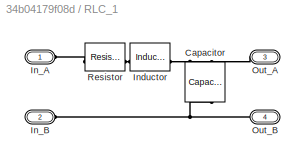
BLOCK [SubSystem] RLC_1
BLOCK [Reference] RLC_1/Capacitor  REF=ee_lib/Passive/Capacitor
  NameLocation = left
  SourceBlock = ee_lib/Passive/Capacitor
  SourceType = Capacitor
BLOCK [PMIOPort] RLC_1/In_A
  Side = Left
BLOCK [PMIOPort] RLC_1/In_B
  Port = 2
  Side = Left
BLOCK [Reference] RLC_1/Inductor  REF=ee_lib/Passive/Inductor
  SourceBlock = ee_lib/Passive/Inductor
  SourceType = Inductor
BLOCK [PMIOPort] RLC_1/Out_A
  Port = 3
  Side = Right
BLOCK [PMIOPort] RLC_1/Out_B
  Port = 4
  Side = Right
BLOCK [Reference] RLC_1/Resistor  REF=ee_lib/Passive/Resistor
  SourceBlock = ee_lib/Passive/Resistor
  SourceType = Resistor
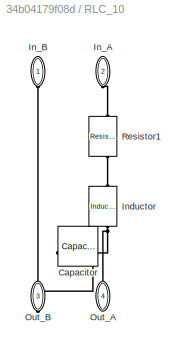
BLOCK [SubSystem] RLC_10
  NameLocation = right
  PortSchema = {"entries":[{"content":{"sides":[{"content":{"connectorIds":[]},"type":"ConnectorPlacement.EquallySpacedRectSide","uuid":"60dc27b1-37aa-45ee-bf60-4a562adeaebe"},{"content":{"connectorIds":[],"side":"RIGHT"},"type":"ConnectorPlacement.EquallySpacedRectSide","uuid":"71f27a35-0868-434d-9527-40ce9dc69a44"},{"content":{"connectorIds":["LConn1","LConn2"],"side":"TOP"},"type":"ConnectorPlacement.EquallyS...<+407ch>  <repeated x23 — deduplicated; at blocks: RLC_10, RLC_27, RLC_28, RLC_29, RLC_30, RLC_31, RLC_32, RLC_33, RLC_34, RLC_35, RLC_5, RLC_52, RLC_53, RLC_54, RLC_55, RLC_56, +7 more>
BLOCK [Reference] RLC_10/Capacitor  REF=ee_lib/Passive/Capacitor
  NameLocation = top
  SourceBlock = ee_lib/Passive/Capacitor
  SourceType = Capacitor
BLOCK [PMIOPort] RLC_10/In_A
  NameLocation = left
  Port = 2
  Side = Left
BLOCK [PMIOPort] RLC_10/In_B
  NameLocation = left
  Side = Left
BLOCK [Reference] RLC_10/Inductor  REF=ee_lib/Passive/Inductor
  NameLocation = left
  SourceBlock = ee_lib/Passive/Inductor
  SourceType = Inductor
BLOCK [PMIOPort] RLC_10/Out_A
  NameLocation = right
  Port = 4
  Side = Right
BLOCK [PMIOPort] RLC_10/Out_B
  NameLocation = right
  Port = 3
  Side = Right
BLOCK [Reference] RLC_10/Resistor1  REF=ee_lib/Passive/Resistor
  NameLocation = left
  SourceBlock = ee_lib/Passive/Resistor
  SourceType = Resistor
BLOCK [SubSystem] RLC_100
BLOCK [Reference] RLC_100/Capacitor  REF=ee_lib/Passive/Capacitor
  NameLocation = left
  SourceBlock = ee_lib/Passive/Capacitor
  SourceType = Capacitor
BLOCK [PMIOPort] RLC_100/In_A
  Port = 3
  Side = Right
BLOCK [PMIOPort] RLC_100/In_B
  Port = 4
  Side = Right
BLOCK [Reference] RLC_100/Inductor  REF=ee_lib/Passive/Inductor
  SourceBlock = ee_lib/Passive/Inductor
  SourceType = Inductor
BLOCK [PMIOPort] RLC_100/Out_A
  Side = Left
BLOCK [PMIOPort] RLC_100/Out_B
  Port = 2
  Side = Left
BLOCK [Reference] RLC_100/Resistor1  REF=ee_lib/Passive/Resistor
  SourceBlock = ee_lib/Passive/Resistor
  SourceType = Resistor
BLOCK [SubSystem] RLC_101
BLOCK [Reference] RLC_101/Capacitor  REF=ee_lib/Passive/Capacitor
  NameLocation = left
  SourceBlock = ee_lib/Passive/Capacitor
  SourceType = Capacitor
BLOCK [PMIOPort] RLC_101/In_A
  Port = 3
  Side = Right
BLOCK [PMIOPort] RLC_101/In_B
  Port = 4
  Side = Right
BLOCK [Reference] RLC_101/Inductor  REF=ee_lib/Passive/Inductor
  SourceBlock = ee_lib/Passive/Inductor
  SourceType = Inductor
BLOCK [PMIOPort] RLC_101/Out_A
  Side = Left
BLOCK [PMIOPort] RLC_101/Out_B
  Port = 2
  Side = Left
BLOCK [Reference] RLC_101/Resistor1  REF=ee_lib/Passive/Resistor
  SourceBlock = ee_lib/Passive/Resistor
  SourceType = Resistor
BLOCK [SubSystem] RLC_102
BLOCK [Reference] RLC_102/Capacitor  REF=ee_lib/Passive/Capacitor
  NameLocation = left
  SourceBlock = ee_lib/Passive/Capacitor
  SourceType = Capacitor
BLOCK [PMIOPort] RLC_102/In_A
  Port = 3
  Side = Right
BLOCK [PMIOPort] RLC_102/In_B
  Port = 4
  Side = Right
BLOCK [Reference] RLC_102/Inductor  REF=ee_lib/Passive/Inductor
  SourceBlock = ee_lib/Passive/Inductor
  SourceType = Inductor
BLOCK [PMIOPort] RLC_102/Out_A
  Side = Left
BLOCK [PMIOPort] RLC_102/Out_B
  Port = 2
  Side = Left
BLOCK [Reference] RLC_102/Resistor1  REF=ee_lib/Passive/Resistor
  SourceBlock = ee_lib/Passive/Resistor
  SourceType = Resistor
BLOCK [SubSystem] RLC_103
  NameLocation = right
BLOCK [Reference] RLC_103/Capacitor  REF=ee_lib/Passive/Capacitor
  NameLocation = left
  SourceBlock = ee_lib/Passive/Capacitor
  SourceType = Capacitor
BLOCK [PMIOPort] RLC_103/In_A
  Side = Left
BLOCK [PMIOPort] RLC_103/In_B
  Port = 4
  Side = Left
BLOCK [Reference] RLC_103/Inductor  REF=ee_lib/Passive/Inductor
  SourceBlock = ee_lib/Passive/Inductor
  SourceType = Inductor
BLOCK [PMIOPort] RLC_103/Out_A
  Port = 2
  Side = Right
BLOCK [PMIOPort] RLC_103/Out_B
  Port = 3
  Side = Right
BLOCK [Reference] RLC_103/Resistor1  REF=ee_lib/Passive/Resistor
  SourceBlock = ee_lib/Passive/Resistor
  SourceType = Resistor
BLOCK [SubSystem] RLC_104
  NameLocation = right
BLOCK [Reference] RLC_104/Capacitor  REF=ee_lib/Passive/Capacitor
  NameLocation = left
  SourceBlock = ee_lib/Passive/Capacitor
  SourceType = Capacitor
BLOCK [PMIOPort] RLC_104/In_A
  Side = Left
BLOCK [PMIOPort] RLC_104/In_B
  Port = 4
  Side = Left
BLOCK [Reference] RLC_104/Inductor  REF=ee_lib/Passive/Inductor
  SourceBlock = ee_lib/Passive/Inductor
  SourceType = Inductor
BLOCK [PMIOPort] RLC_104/Out_A
  Port = 2
  Side = Right
BLOCK [PMIOPort] RLC_104/Out_B
  Port = 3
  Side = Right
BLOCK [Reference] RLC_104/Resistor1  REF=ee_lib/Passive/Resistor
  SourceBlock = ee_lib/Passive/Resistor
  SourceType = Resistor
BLOCK [SubSystem] RLC_105
  NameLocation = right
BLOCK [Reference] RLC_105/Capacitor  REF=ee_lib/Passive/Capacitor
  NameLocation = left
  SourceBlock = ee_lib/Passive/Capacitor
  SourceType = Capacitor
BLOCK [PMIOPort] RLC_105/In_A
  Side = Left
BLOCK [PMIOPort] RLC_105/In_B
  Port = 4
  Side = Left
BLOCK [Reference] RLC_105/Inductor  REF=ee_lib/Passive/Inductor
  SourceBlock = ee_lib/Passive/Inductor
  SourceType = Inductor
BLOCK [PMIOPort] RLC_105/Out_A
  Port = 2
  Side = Right
BLOCK [PMIOPort] RLC_105/Out_B
  Port = 3
  Side = Right
BLOCK [Reference] RLC_105/Resistor1  REF=ee_lib/Passive/Resistor
  SourceBlock = ee_lib/Passive/Resistor
  SourceType = Resistor
BLOCK [SubSystem] RLC_106
  NameLocation = right
BLOCK [Reference] RLC_106/Capacitor  REF=ee_lib/Passive/Capacitor
  NameLocation = left
  SourceBlock = ee_lib/Passive/Capacitor
  SourceType = Capacitor
BLOCK [PMIOPort] RLC_106/In_A
  Side = Left
BLOCK [PMIOPort] RLC_106/In_B
  Port = 4
  Side = Left
BLOCK [Reference] RLC_106/Inductor  REF=ee_lib/Passive/Inductor
  SourceBlock = ee_lib/Passive/Inductor
  SourceType = Inductor
BLOCK [PMIOPort] RLC_106/Out_A
  Port = 2
  Side = Right
BLOCK [PMIOPort] RLC_106/Out_B
  Port = 3
  Side = Right
BLOCK [Reference] RLC_106/Resistor1  REF=ee_lib/Passive/Resistor
  SourceBlock = ee_lib/Passive/Resistor
  SourceType = Resistor
BLOCK [SubSystem] RLC_107
  NameLocation = right
BLOCK [Reference] RLC_107/Capacitor  REF=ee_lib/Passive/Capacitor
  NameLocation = left
  SourceBlock = ee_lib/Passive/Capacitor
  SourceType = Capacitor
BLOCK [PMIOPort] RLC_107/In_A
  Side = Left
BLOCK [PMIOPort] RLC_107/In_B
  Port = 4
  Side = Left
BLOCK [Reference] RLC_107/Inductor  REF=ee_lib/Passive/Inductor
  SourceBlock = ee_lib/Passive/Inductor
  SourceType = Inductor
BLOCK [PMIOPort] RLC_107/Out_A
  Port = 2
  Side = Right
BLOCK [PMIOPort] RLC_107/Out_B
  Port = 3
  Side = Right
BLOCK [Reference] RLC_107/Resistor1  REF=ee_lib/Passive/Resistor
  SourceBlock = ee_lib/Passive/Resistor
  SourceType = Resistor
BLOCK [SubSystem] RLC_108
  NameLocation = right
BLOCK [Reference] RLC_108/Capacitor  REF=ee_lib/Passive/Capacitor
  NameLocation = left
  SourceBlock = ee_lib/Passive/Capacitor
  SourceType = Capacitor
BLOCK [PMIOPort] RLC_108/In_A
  Side = Left
BLOCK [PMIOPort] RLC_108/In_B
  Port = 4
  Side = Left
BLOCK [Reference] RLC_108/Inductor  REF=ee_lib/Passive/Inductor
  SourceBlock = ee_lib/Passive/Inductor
  SourceType = Inductor
BLOCK [PMIOPort] RLC_108/Out_A
  Port = 2
  Side = Right
BLOCK [PMIOPort] RLC_108/Out_B
  Port = 3
  Side = Right
BLOCK [Reference] RLC_108/Resistor1  REF=ee_lib/Passive/Resistor
  SourceBlock = ee_lib/Passive/Resistor
  SourceType = Resistor
BLOCK [SubSystem] RLC_109
  NameLocation = right
BLOCK [Reference] RLC_109/Capacitor  REF=ee_lib/Passive/Capacitor
  NameLocation = left
  SourceBlock = ee_lib/Passive/Capacitor
  SourceType = Capacitor
BLOCK [PMIOPort] RLC_109/In_A
  Side = Left
BLOCK [PMIOPort] RLC_109/In_B
  Port = 4
  Side = Left
BLOCK [Reference] RLC_109/Inductor  REF=ee_lib/Passive/Inductor
  SourceBlock = ee_lib/Passive/Inductor
  SourceType = Inductor
BLOCK [PMIOPort] RLC_109/Out_A
  Port = 2
  Side = Right
BLOCK [PMIOPort] RLC_109/Out_B
  Port = 3
  Side = Right
BLOCK [Reference] RLC_109/Resistor1  REF=ee_lib/Passive/Resistor
  SourceBlock = ee_lib/Passive/Resistor
  SourceType = Resistor
BLOCK [SubSystem] RLC_11
BLOCK [Reference] RLC_11/Capacitor  REF=ee_lib/Passive/Capacitor
  NameLocation = left
  SourceBlock = ee_lib/Passive/Capacitor
  SourceType = Capacitor
BLOCK [PMIOPort] RLC_11/In_A
  Side = Left
BLOCK [PMIOPort] RLC_11/In_B
  Port = 4
  Side = Left
BLOCK [Reference] RLC_11/Inductor  REF=ee_lib/Passive/Inductor
  SourceBlock = ee_lib/Passive/Inductor
  SourceType = Inductor
BLOCK [PMIOPort] RLC_11/Out_A
  Port = 2
  Side = Right
BLOCK [PMIOPort] RLC_11/Out_B
  Port = 3
  Side = Right
BLOCK [Reference] RLC_11/Resistor1  REF=ee_lib/Passive/Resistor
  SourceBlock = ee_lib/Passive/Resistor
  SourceType = Resistor
BLOCK [SubSystem] RLC_110
  NameLocation = right
BLOCK [Reference] RLC_110/Capacitor  REF=ee_lib/Passive/Capacitor
  NameLocation = left
  SourceBlock = ee_lib/Passive/Capacitor
  SourceType = Capacitor
BLOCK [PMIOPort] RLC_110/In_A
  Side = Left
BLOCK [PMIOPort] RLC_110/In_B
  Port = 4
  Side = Left
BLOCK [Reference] RLC_110/Inductor  REF=ee_lib/Passive/Inductor
  SourceBlock = ee_lib/Passive/Inductor
  SourceType = Inductor
BLOCK [PMIOPort] RLC_110/Out_A
  Port = 2
  Side = Right
BLOCK [PMIOPort] RLC_110/Out_B
  Port = 3
  Side = Right
BLOCK [Reference] RLC_110/Resistor1  REF=ee_lib/Passive/Resistor
  SourceBlock = ee_lib/Passive/Resistor
  SourceType = Resistor
BLOCK [SubSystem] RLC_111
  NameLocation = right
BLOCK [Reference] RLC_111/Capacitor  REF=ee_lib/Passive/Capacitor
  NameLocation = left
  SourceBlock = ee_lib/Passive/Capacitor
  SourceType = Capacitor
BLOCK [PMIOPort] RLC_111/In_A
  Side = Left
BLOCK [PMIOPort] RLC_111/In_B
  Port = 4
  Side = Left
BLOCK [Reference] RLC_111/Inductor  REF=ee_lib/Passive/Inductor
  SourceBlock = ee_lib/Passive/Inductor
  SourceType = Inductor
BLOCK [PMIOPort] RLC_111/Out_A
  Port = 2
  Side = Right
BLOCK [PMIOPort] RLC_111/Out_B
  Port = 3
  Side = Right
BLOCK [Reference] RLC_111/Resistor1  REF=ee_lib/Passive/Resistor
  SourceBlock = ee_lib/Passive/Resistor
  SourceType = Resistor
BLOCK [SubSystem] RLC_112
  NameLocation = right
BLOCK [Reference] RLC_112/Capacitor  REF=ee_lib/Passive/Capacitor
  NameLocation = left
  SourceBlock = ee_lib/Passive/Capacitor
  SourceType = Capacitor
BLOCK [PMIOPort] RLC_112/In_A
  Side = Left
BLOCK [PMIOPort] RLC_112/In_B
  Port = 4
  Side = Left
BLOCK [Reference] RLC_112/Inductor  REF=ee_lib/Passive/Inductor
  SourceBlock = ee_lib/Passive/Inductor
  SourceType = Inductor
BLOCK [PMIOPort] RLC_112/Out_A
  Port = 2
  Side = Right
BLOCK [PMIOPort] RLC_112/Out_B
  Port = 3
  Side = Right
BLOCK [Reference] RLC_112/Resistor1  REF=ee_lib/Passive/Resistor
  SourceBlock = ee_lib/Passive/Resistor
  SourceType = Resistor
BLOCK [SubSystem] RLC_113
  NameLocation = right
BLOCK [Reference] RLC_113/Capacitor  REF=ee_lib/Passive/Capacitor
  NameLocation = left
  SourceBlock = ee_lib/Passive/Capacitor
  SourceType = Capacitor
BLOCK [PMIOPort] RLC_113/In_A
  Side = Left
BLOCK [PMIOPort] RLC_113/In_B
  Port = 4
  Side = Left
BLOCK [Reference] RLC_113/Inductor  REF=ee_lib/Passive/Inductor
  SourceBlock = ee_lib/Passive/Inductor
  SourceType = Inductor
BLOCK [PMIOPort] RLC_113/Out_A
  Port = 2
  Side = Right
BLOCK [PMIOPort] RLC_113/Out_B
  Port = 3
  Side = Right
BLOCK [Reference] RLC_113/Resistor1  REF=ee_lib/Passive/Resistor
  SourceBlock = ee_lib/Passive/Resistor
  SourceType = Resistor
BLOCK [SubSystem] RLC_12
BLOCK [Reference] RLC_12/Capacitor  REF=ee_lib/Passive/Capacitor
  NameLocation = left
  SourceBlock = ee_lib/Passive/Capacitor
  SourceType = Capacitor
BLOCK [PMIOPort] RLC_12/In_A
  Side = Left
BLOCK [PMIOPort] RLC_12/In_B
  Port = 4
  Side = Left
BLOCK [Reference] RLC_12/Inductor  REF=ee_lib/Passive/Inductor
  SourceBlock = ee_lib/Passive/Inductor
  SourceType = Inductor
BLOCK [PMIOPort] RLC_12/Out_A
  Port = 2
  Side = Right
BLOCK [PMIOPort] RLC_12/Out_B
  Port = 3
  Side = Right
BLOCK [Reference] RLC_12/Resistor1  REF=ee_lib/Passive/Resistor
  SourceBlock = ee_lib/Passive/Resistor
  SourceType = Resistor
BLOCK [SubSystem] RLC_13
BLOCK [Reference] RLC_13/Capacitor  REF=ee_lib/Passive/Capacitor
  NameLocation = left
  SourceBlock = ee_lib/Passive/Capacitor
  SourceType = Capacitor
BLOCK [PMIOPort] RLC_13/In_A
  Side = Left
BLOCK [PMIOPort] RLC_13/In_B
  Port = 4
  Side = Left
BLOCK [Reference] RLC_13/Inductor  REF=ee_lib/Passive/Inductor
  SourceBlock = ee_lib/Passive/Inductor
  SourceType = Inductor
BLOCK [PMIOPort] RLC_13/Out_A
  Port = 2
  Side = Right
BLOCK [PMIOPort] RLC_13/Out_B
  Port = 3
  Side = Right
BLOCK [Reference] RLC_13/Resistor1  REF=ee_lib/Passive/Resistor
  SourceBlock = ee_lib/Passive/Resistor
  SourceType = Resistor
BLOCK [SubSystem] RLC_14
BLOCK [Reference] RLC_14/Capacitor  REF=ee_lib/Passive/Capacitor
  NameLocation = left
  SourceBlock = ee_lib/Passive/Capacitor
  SourceType = Capacitor
BLOCK [PMIOPort] RLC_14/In_A
  Side = Left
BLOCK [PMIOPort] RLC_14/In_B
  Port = 4
  Side = Left
BLOCK [Reference] RLC_14/Inductor  REF=ee_lib/Passive/Inductor
  SourceBlock = ee_lib/Passive/Inductor
  SourceType = Inductor
BLOCK [PMIOPort] RLC_14/Out_A
  Port = 2
  Side = Right
BLOCK [PMIOPort] RLC_14/Out_B
  Port = 3
  Side = Right
BLOCK [Reference] RLC_14/Resistor1  REF=ee_lib/Passive/Resistor
  SourceBlock = ee_lib/Passive/Resistor
  SourceType = Resistor
BLOCK [SubSystem] RLC_15
BLOCK [Reference] RLC_15/Capacitor  REF=ee_lib/Passive/Capacitor
  NameLocation = left
  SourceBlock = ee_lib/Passive/Capacitor
  SourceType = Capacitor
BLOCK [PMIOPort] RLC_15/In_A
  Side = Left
BLOCK [PMIOPort] RLC_15/In_B
  Port = 4
  Side = Left
BLOCK [Reference] RLC_15/Inductor  REF=ee_lib/Passive/Inductor
  SourceBlock = ee_lib/Passive/Inductor
  SourceType = Inductor
BLOCK [PMIOPort] RLC_15/Out_A
  Port = 2
  Side = Right
BLOCK [PMIOPort] RLC_15/Out_B
  Port = 3
  Side = Right
BLOCK [Reference] RLC_15/Resistor1  REF=ee_lib/Passive/Resistor
  SourceBlock = ee_lib/Passive/Resistor
  SourceType = Resistor
BLOCK [SubSystem] RLC_16
BLOCK [Reference] RLC_16/Capacitor  REF=ee_lib/Passive/Capacitor
  NameLocation = left
  SourceBlock = ee_lib/Passive/Capacitor
  SourceType = Capacitor
BLOCK [PMIOPort] RLC_16/In_A
  Side = Left
BLOCK [PMIOPort] RLC_16/In_B
  Port = 4
  Side = Left
BLOCK [Reference] RLC_16/Inductor  REF=ee_lib/Passive/Inductor
  SourceBlock = ee_lib/Passive/Inductor
  SourceType = Inductor
BLOCK [PMIOPort] RLC_16/Out_A
  Port = 2
  Side = Right
BLOCK [PMIOPort] RLC_16/Out_B
  Port = 3
  Side = Right
BLOCK [Reference] RLC_16/Resistor1  REF=ee_lib/Passive/Resistor
  SourceBlock = ee_lib/Passive/Resistor
  SourceType = Resistor
BLOCK [SubSystem] RLC_17
BLOCK [Reference] RLC_17/Capacitor  REF=ee_lib/Passive/Capacitor
  NameLocation = left
  SourceBlock = ee_lib/Passive/Capacitor
  SourceType = Capacitor
BLOCK [PMIOPort] RLC_17/In_A
  Side = Left
BLOCK [PMIOPort] RLC_17/In_B
  Port = 4
  Side = Left
BLOCK [Reference] RLC_17/Inductor  REF=ee_lib/Passive/Inductor
  SourceBlock = ee_lib/Passive/Inductor
  SourceType = Inductor
BLOCK [PMIOPort] RLC_17/Out_A
  Port = 2
  Side = Right
BLOCK [PMIOPort] RLC_17/Out_B
  Port = 3
  Side = Right
BLOCK [Reference] RLC_17/Resistor1  REF=ee_lib/Passive/Resistor
  SourceBlock = ee_lib/Passive/Resistor
  SourceType = Resistor
BLOCK [SubSystem] RLC_18
BLOCK [Reference] RLC_18/Capacitor  REF=ee_lib/Passive/Capacitor
  NameLocation = left
  SourceBlock = ee_lib/Passive/Capacitor
  SourceType = Capacitor
BLOCK [PMIOPort] RLC_18/In_A
  Side = Left
BLOCK [PMIOPort] RLC_18/In_B
  Port = 4
  Side = Left
BLOCK [Reference] RLC_18/Inductor  REF=ee_lib/Passive/Inductor
  SourceBlock = ee_lib/Passive/Inductor
  SourceType = Inductor
BLOCK [PMIOPort] RLC_18/Out_A
  Port = 2
  Side = Right
BLOCK [PMIOPort] RLC_18/Out_B
  Port = 3
  Side = Right
BLOCK [Reference] RLC_18/Resistor1  REF=ee_lib/Passive/Resistor
  SourceBlock = ee_lib/Passive/Resistor
  SourceType = Resistor
BLOCK [SubSystem] RLC_19
BLOCK [Reference] RLC_19/Capacitor  REF=ee_lib/Passive/Capacitor
  NameLocation = left
  SourceBlock = ee_lib/Passive/Capacitor
  SourceType = Capacitor
BLOCK [PMIOPort] RLC_19/In_A
  Side = Left
BLOCK [PMIOPort] RLC_19/In_B
  Port = 4
  Side = Left
BLOCK [Reference] RLC_19/Inductor  REF=ee_lib/Passive/Inductor
  SourceBlock = ee_lib/Passive/Inductor
  SourceType = Inductor
BLOCK [PMIOPort] RLC_19/Out_A
  Port = 2
  Side = Right
BLOCK [PMIOPort] RLC_19/Out_B
  Port = 3
  Side = Right
BLOCK [Reference] RLC_19/Resistor1  REF=ee_lib/Passive/Resistor
  SourceBlock = ee_lib/Passive/Resistor
  SourceType = Resistor
BLOCK [SubSystem] RLC_2
BLOCK [Reference] RLC_2/Capacitor  REF=ee_lib/Passive/Capacitor
  NameLocation = left
  SourceBlock = ee_lib/Passive/Capacitor
  SourceType = Capacitor
BLOCK [PMIOPort] RLC_2/In_A
  Side = Left
BLOCK [PMIOPort] RLC_2/In_B
  Port = 2
  Side = Left
BLOCK [Reference] RLC_2/Inductor  REF=ee_lib/Passive/Inductor
  SourceBlock = ee_lib/Passive/Inductor
  SourceType = Inductor
BLOCK [PMIOPort] RLC_2/Out_A
  Port = 3
  Side = Right
BLOCK [PMIOPort] RLC_2/Out_B
  Port = 4
  Side = Right
BLOCK [Reference] RLC_2/Resistor  REF=ee_lib/Passive/Resistor
  SourceBlock = ee_lib/Passive/Resistor
  SourceType = Resistor
BLOCK [SubSystem] RLC_20
BLOCK [Reference] RLC_20/Capacitor  REF=ee_lib/Passive/Capacitor
  NameLocation = left
  SourceBlock = ee_lib/Passive/Capacitor
  SourceType = Capacitor
BLOCK [PMIOPort] RLC_20/In_A
  Side = Left
BLOCK [PMIOPort] RLC_20/In_B
  Port = 4
  Side = Left
BLOCK [Reference] RLC_20/Inductor  REF=ee_lib/Passive/Inductor
  SourceBlock = ee_lib/Passive/Inductor
  SourceType = Inductor
BLOCK [PMIOPort] RLC_20/Out_A
  Port = 2
  Side = Right
BLOCK [PMIOPort] RLC_20/Out_B
  Port = 3
  Side = Right
BLOCK [Reference] RLC_20/Resistor1  REF=ee_lib/Passive/Resistor
  SourceBlock = ee_lib/Passive/Resistor
  SourceType = Resistor
BLOCK [SubSystem] RLC_21
BLOCK [Reference] RLC_21/Capacitor  REF=ee_lib/Passive/Capacitor
  NameLocation = left
  SourceBlock = ee_lib/Passive/Capacitor
  SourceType = Capacitor
BLOCK [PMIOPort] RLC_21/In_A
  Side = Left
BLOCK [PMIOPort] RLC_21/In_B
  Port = 4
  Side = Left
BLOCK [Reference] RLC_21/Inductor  REF=ee_lib/Passive/Inductor
  SourceBlock = ee_lib/Passive/Inductor
  SourceType = Inductor
BLOCK [PMIOPort] RLC_21/Out_A
  Port = 2
  Side = Right
BLOCK [PMIOPort] RLC_21/Out_B
  Port = 3
  Side = Right
BLOCK [Reference] RLC_21/Resistor1  REF=ee_lib/Passive/Resistor
  SourceBlock = ee_lib/Passive/Resistor
  SourceType = Resistor
BLOCK [SubSystem] RLC_22
BLOCK [Reference] RLC_22/Capacitor  REF=ee_lib/Passive/Capacitor
  NameLocation = left
  SourceBlock = ee_lib/Passive/Capacitor
  SourceType = Capacitor
BLOCK [PMIOPort] RLC_22/In_A
  Side = Left
BLOCK [PMIOPort] RLC_22/In_B
  Port = 4
  Side = Left
BLOCK [Reference] RLC_22/Inductor  REF=ee_lib/Passive/Inductor
  SourceBlock = ee_lib/Passive/Inductor
  SourceType = Inductor
BLOCK [PMIOPort] RLC_22/Out_A
  Port = 2
  Side = Right
BLOCK [PMIOPort] RLC_22/Out_B
  Port = 3
  Side = Right
BLOCK [Reference] RLC_22/Resistor1  REF=ee_lib/Passive/Resistor
  SourceBlock = ee_lib/Passive/Resistor
  SourceType = Resistor
BLOCK [SubSystem] RLC_23
BLOCK [Reference] RLC_23/Capacitor  REF=ee_lib/Passive/Capacitor
  NameLocation = left
  SourceBlock = ee_lib/Passive/Capacitor
  SourceType = Capacitor
BLOCK [PMIOPort] RLC_23/In_A
  Side = Left
BLOCK [PMIOPort] RLC_23/In_B
  Port = 4
  Side = Left
BLOCK [Reference] RLC_23/Inductor  REF=ee_lib/Passive/Inductor
  SourceBlock = ee_lib/Passive/Inductor
  SourceType = Inductor
BLOCK [PMIOPort] RLC_23/Out_A
  Port = 2
  Side = Right
BLOCK [PMIOPort] RLC_23/Out_B
  Port = 3
  Side = Right
BLOCK [Reference] RLC_23/Resistor1  REF=ee_lib/Passive/Resistor
  SourceBlock = ee_lib/Passive/Resistor
  SourceType = Resistor
BLOCK [SubSystem] RLC_24
BLOCK [Reference] RLC_24/Capacitor  REF=ee_lib/Passive/Capacitor
  NameLocation = left
  SourceBlock = ee_lib/Passive/Capacitor
  SourceType = Capacitor
BLOCK [PMIOPort] RLC_24/In_A
  Side = Left
BLOCK [PMIOPort] RLC_24/In_B
  Port = 4
  Side = Left
BLOCK [Reference] RLC_24/Inductor  REF=ee_lib/Passive/Inductor
  SourceBlock = ee_lib/Passive/Inductor
  SourceType = Inductor
BLOCK [PMIOPort] RLC_24/Out_A
  Port = 2
  Side = Right
BLOCK [PMIOPort] RLC_24/Out_B
  Port = 3
  Side = Right
BLOCK [Reference] RLC_24/Resistor1  REF=ee_lib/Passive/Resistor
  SourceBlock = ee_lib/Passive/Resistor
  SourceType = Resistor
BLOCK [SubSystem] RLC_25
BLOCK [Reference] RLC_25/Capacitor  REF=ee_lib/Passive/Capacitor
  NameLocation = left
  SourceBlock = ee_lib/Passive/Capacitor
  SourceType = Capacitor
BLOCK [PMIOPort] RLC_25/In_A
  Side = Left
BLOCK [PMIOPort] RLC_25/In_B
  Port = 4
  Side = Left
BLOCK [Reference] RLC_25/Inductor  REF=ee_lib/Passive/Inductor
  SourceBlock = ee_lib/Passive/Inductor
  SourceType = Inductor
BLOCK [PMIOPort] RLC_25/Out_A
  Port = 2
  Side = Right
BLOCK [PMIOPort] RLC_25/Out_B
  Port = 3
  Side = Right
BLOCK [Reference] RLC_25/Resistor1  REF=ee_lib/Passive/Resistor
  SourceBlock = ee_lib/Passive/Resistor
  SourceType = Resistor
BLOCK [SubSystem] RLC_26
BLOCK [Reference] RLC_26/Capacitor  REF=ee_lib/Passive/Capacitor
  NameLocation = left
  SourceBlock = ee_lib/Passive/Capacitor
  SourceType = Capacitor
BLOCK [PMIOPort] RLC_26/In_A
  Side = Left
BLOCK [PMIOPort] RLC_26/In_B
  Port = 4
  Side = Left
BLOCK [Reference] RLC_26/Inductor  REF=ee_lib/Passive/Inductor
  SourceBlock = ee_lib/Passive/Inductor
  SourceType = Inductor
BLOCK [PMIOPort] RLC_26/Out_A
  Port = 2
  Side = Right
BLOCK [PMIOPort] RLC_26/Out_B
  Port = 3
  Side = Right
BLOCK [Reference] RLC_26/Resistor1  REF=ee_lib/Passive/Resistor
  SourceBlock = ee_lib/Passive/Resistor
  SourceType = Resistor
BLOCK [SubSystem] RLC_27
  NameLocation = right
BLOCK [Reference] RLC_27/Capacitor  REF=ee_lib/Passive/Capacitor
  NameLocation = top
  SourceBlock = ee_lib/Passive/Capacitor
  SourceType = Capacitor
BLOCK [PMIOPort] RLC_27/In_A
  NameLocation = left
  Port = 2
  Side = Left
BLOCK [PMIOPort] RLC_27/In_B
  NameLocation = left
  Side = Left
BLOCK [Reference] RLC_27/Inductor  REF=ee_lib/Passive/Inductor
  NameLocation = left
  SourceBlock = ee_lib/Passive/Inductor
  SourceType = Inductor
BLOCK [PMIOPort] RLC_27/Out_A
  NameLocation = right
  Port = 4
  Side = Right
BLOCK [PMIOPort] RLC_27/Out_B
  NameLocation = right
  Port = 3
  Side = Right
BLOCK [Reference] RLC_27/Resistor1  REF=ee_lib/Passive/Resistor
  NameLocation = left
  SourceBlock = ee_lib/Passive/Resistor
  SourceType = Resistor
BLOCK [SubSystem] RLC_28
  NameLocation = right
BLOCK [Reference] RLC_28/Capacitor  REF=ee_lib/Passive/Capacitor
  NameLocation = top
  SourceBlock = ee_lib/Passive/Capacitor
  SourceType = Capacitor
BLOCK [PMIOPort] RLC_28/In_A
  NameLocation = left
  Port = 2
  Side = Left
BLOCK [PMIOPort] RLC_28/In_B
  NameLocation = left
  Side = Left
BLOCK [Reference] RLC_28/Inductor  REF=ee_lib/Passive/Inductor
  NameLocation = left
  SourceBlock = ee_lib/Passive/Inductor
  SourceType = Inductor
BLOCK [PMIOPort] RLC_28/Out_A
  NameLocation = right
  Port = 4
  Side = Right
BLOCK [PMIOPort] RLC_28/Out_B
  NameLocation = right
  Port = 3
  Side = Right
BLOCK [Reference] RLC_28/Resistor1  REF=ee_lib/Passive/Resistor
  NameLocation = left
  SourceBlock = ee_lib/Passive/Resistor
  SourceType = Resistor
BLOCK [SubSystem] RLC_29
  NameLocation = right
BLOCK [Reference] RLC_29/Capacitor  REF=ee_lib/Passive/Capacitor
  NameLocation = top
  SourceBlock = ee_lib/Passive/Capacitor
  SourceType = Capacitor
BLOCK [PMIOPort] RLC_29/In_A
  NameLocation = left
  Port = 2
  Side = Left
BLOCK [PMIOPort] RLC_29/In_B
  NameLocation = left
  Side = Left
BLOCK [Reference] RLC_29/Inductor  REF=ee_lib/Passive/Inductor
  NameLocation = left
  SourceBlock = ee_lib/Passive/Inductor
  SourceType = Inductor
BLOCK [PMIOPort] RLC_29/Out_A
  NameLocation = right
  Port = 4
  Side = Right
BLOCK [PMIOPort] RLC_29/Out_B
  NameLocation = right
  Port = 3
  Side = Right
BLOCK [Reference] RLC_29/Resistor1  REF=ee_lib/Passive/Resistor
  NameLocation = left
  SourceBlock = ee_lib/Passive/Resistor
  SourceType = Resistor
BLOCK [SubSystem] RLC_3
BLOCK [Reference] RLC_3/Capacitor  REF=ee_lib/Passive/Capacitor
  NameLocation = left
  SourceBlock = ee_lib/Passive/Capacitor
  SourceType = Capacitor
BLOCK [PMIOPort] RLC_3/In_A
  Side = Left
BLOCK [PMIOPort] RLC_3/In_B
  Port = 2
  Side = Left
BLOCK [Reference] RLC_3/Inductor  REF=ee_lib/Passive/Inductor
  SourceBlock = ee_lib/Passive/Inductor
  SourceType = Inductor
BLOCK [PMIOPort] RLC_3/Out_A
  Port = 3
  Side = Right
BLOCK [PMIOPort] RLC_3/Out_B
  Port = 4
  Side = Right
BLOCK [Reference] RLC_3/Resistor  REF=ee_lib/Passive/Resistor
  SourceBlock = ee_lib/Passive/Resistor
  SourceType = Resistor
BLOCK [SubSystem] RLC_30
  NameLocation = right
BLOCK [Reference] RLC_30/Capacitor  REF=ee_lib/Passive/Capacitor
  NameLocation = top
  SourceBlock = ee_lib/Passive/Capacitor
  SourceType = Capacitor
BLOCK [PMIOPort] RLC_30/In_A
  NameLocation = left
  Port = 2
  Side = Left
BLOCK [PMIOPort] RLC_30/In_B
  NameLocation = left
  Side = Left
BLOCK [Reference] RLC_30/Inductor  REF=ee_lib/Passive/Inductor
  NameLocation = left
  SourceBlock = ee_lib/Passive/Inductor
  SourceType = Inductor
BLOCK [PMIOPort] RLC_30/Out_A
  NameLocation = right
  Port = 4
  Side = Right
BLOCK [PMIOPort] RLC_30/Out_B
  NameLocation = right
  Port = 3
  Side = Right
BLOCK [Reference] RLC_30/Resistor1  REF=ee_lib/Passive/Resistor
  NameLocation = left
  SourceBlock = ee_lib/Passive/Resistor
  SourceType = Resistor
BLOCK [SubSystem] RLC_31
  NameLocation = right
BLOCK [Reference] RLC_31/Capacitor  REF=ee_lib/Passive/Capacitor
  NameLocation = top
  SourceBlock = ee_lib/Passive/Capacitor
  SourceType = Capacitor
BLOCK [PMIOPort] RLC_31/In_A
  NameLocation = left
  Port = 2
  Side = Left
BLOCK [PMIOPort] RLC_31/In_B
  NameLocation = left
  Side = Left
BLOCK [Reference] RLC_31/Inductor  REF=ee_lib/Passive/Inductor
  NameLocation = left
  SourceBlock = ee_lib/Passive/Inductor
  SourceType = Inductor
BLOCK [PMIOPort] RLC_31/Out_A
  NameLocation = right
  Port = 4
  Side = Right
BLOCK [PMIOPort] RLC_31/Out_B
  NameLocation = right
  Port = 3
  Side = Right
BLOCK [Reference] RLC_31/Resistor1  REF=ee_lib/Passive/Resistor
  NameLocation = left
  SourceBlock = ee_lib/Passive/Resistor
  SourceType = Resistor
BLOCK [SubSystem] RLC_32
  NameLocation = right
BLOCK [Reference] RLC_32/Capacitor  REF=ee_lib/Passive/Capacitor
  NameLocation = top
  SourceBlock = ee_lib/Passive/Capacitor
  SourceType = Capacitor
BLOCK [PMIOPort] RLC_32/In_A
  NameLocation = left
  Port = 2
  Side = Left
BLOCK [PMIOPort] RLC_32/In_B
  NameLocation = left
  Side = Left
BLOCK [Reference] RLC_32/Inductor  REF=ee_lib/Passive/Inductor
  NameLocation = left
  SourceBlock = ee_lib/Passive/Inductor
  SourceType = Inductor
BLOCK [PMIOPort] RLC_32/Out_A
  NameLocation = right
  Port = 4
  Side = Right
BLOCK [PMIOPort] RLC_32/Out_B
  NameLocation = right
  Port = 3
  Side = Right
BLOCK [Reference] RLC_32/Resistor1  REF=ee_lib/Passive/Resistor
  NameLocation = left
  SourceBlock = ee_lib/Passive/Resistor
  SourceType = Resistor
BLOCK [SubSystem] RLC_33
  NameLocation = right
BLOCK [Reference] RLC_33/Capacitor  REF=ee_lib/Passive/Capacitor
  NameLocation = top
  SourceBlock = ee_lib/Passive/Capacitor
  SourceType = Capacitor
BLOCK [PMIOPort] RLC_33/In_A
  NameLocation = left
  Port = 2
  Side = Left
BLOCK [PMIOPort] RLC_33/In_B
  NameLocation = left
  Side = Left
BLOCK [Reference] RLC_33/Inductor  REF=ee_lib/Passive/Inductor
  NameLocation = left
  SourceBlock = ee_lib/Passive/Inductor
  SourceType = Inductor
BLOCK [PMIOPort] RLC_33/Out_A
  NameLocation = right
  Port = 4
  Side = Right
BLOCK [PMIOPort] RLC_33/Out_B
  NameLocation = right
  Port = 3
  Side = Right
BLOCK [Reference] RLC_33/Resistor1  REF=ee_lib/Passive/Resistor
  NameLocation = left
  SourceBlock = ee_lib/Passive/Resistor
  SourceType = Resistor
BLOCK [SubSystem] RLC_34
  NameLocation = right
BLOCK [Reference] RLC_34/Capacitor  REF=ee_lib/Passive/Capacitor
  NameLocation = top
  SourceBlock = ee_lib/Passive/Capacitor
  SourceType = Capacitor
BLOCK [PMIOPort] RLC_34/In_A
  NameLocation = left
  Port = 2
  Side = Left
BLOCK [PMIOPort] RLC_34/In_B
  NameLocation = left
  Side = Left
BLOCK [Reference] RLC_34/Inductor  REF=ee_lib/Passive/Inductor
  NameLocation = left
  SourceBlock = ee_lib/Passive/Inductor
  SourceType = Inductor
BLOCK [PMIOPort] RLC_34/Out_A
  NameLocation = right
  Port = 4
  Side = Right
BLOCK [PMIOPort] RLC_34/Out_B
  NameLocation = right
  Port = 3
  Side = Right
BLOCK [Reference] RLC_34/Resistor1  REF=ee_lib/Passive/Resistor
  NameLocation = left
  SourceBlock = ee_lib/Passive/Resistor
  SourceType = Resistor
BLOCK [SubSystem] RLC_35
  NameLocation = right
BLOCK [Reference] RLC_35/Capacitor  REF=ee_lib/Passive/Capacitor
  NameLocation = top
  SourceBlock = ee_lib/Passive/Capacitor
  SourceType = Capacitor
BLOCK [PMIOPort] RLC_35/In_A
  NameLocation = left
  Port = 2
  Side = Left
BLOCK [PMIOPort] RLC_35/In_B
  NameLocation = left
  Side = Left
BLOCK [Reference] RLC_35/Inductor  REF=ee_lib/Passive/Inductor
  NameLocation = left
  SourceBlock = ee_lib/Passive/Inductor
  SourceType = Inductor
BLOCK [PMIOPort] RLC_35/Out_A
  NameLocation = right
  Port = 4
  Side = Right
BLOCK [PMIOPort] RLC_35/Out_B
  NameLocation = right
  Port = 3
  Side = Right
BLOCK [Reference] RLC_35/Resistor1  REF=ee_lib/Passive/Resistor
  NameLocation = left
  SourceBlock = ee_lib/Passive/Resistor
  SourceType = Resistor
BLOCK [SubSystem] RLC_36
BLOCK [Reference] RLC_36/Capacitor  REF=ee_lib/Passive/Capacitor
  NameLocation = left
  SourceBlock = ee_lib/Passive/Capacitor
  SourceType = Capacitor
BLOCK [PMIOPort] RLC_36/In_A
  Port = 3
  Side = Right
BLOCK [PMIOPort] RLC_36/In_B
  Port = 4
  Side = Right
BLOCK [Reference] RLC_36/Inductor  REF=ee_lib/Passive/Inductor
  SourceBlock = ee_lib/Passive/Inductor
  SourceType = Inductor
BLOCK [PMIOPort] RLC_36/Out_A
  Side = Left
BLOCK [PMIOPort] RLC_36/Out_B
  Port = 2
  Side = Left
BLOCK [Reference] RLC_36/Resistor1  REF=ee_lib/Passive/Resistor
  SourceBlock = ee_lib/Passive/Resistor
  SourceType = Resistor
BLOCK [SubSystem] RLC_37
BLOCK [Reference] RLC_37/Capacitor  REF=ee_lib/Passive/Capacitor
  NameLocation = left
  SourceBlock = ee_lib/Passive/Capacitor
  SourceType = Capacitor
BLOCK [PMIOPort] RLC_37/In_A
  Port = 3
  Side = Right
BLOCK [PMIOPort] RLC_37/In_B
  Port = 4
  Side = Right
BLOCK [Reference] RLC_37/Inductor  REF=ee_lib/Passive/Inductor
  SourceBlock = ee_lib/Passive/Inductor
  SourceType = Inductor
BLOCK [PMIOPort] RLC_37/Out_A
  Side = Left
BLOCK [PMIOPort] RLC_37/Out_B
  Port = 2
  Side = Left
BLOCK [Reference] RLC_37/Resistor1  REF=ee_lib/Passive/Resistor
  SourceBlock = ee_lib/Passive/Resistor
  SourceType = Resistor
BLOCK [SubSystem] RLC_38
BLOCK [Reference] RLC_38/Capacitor  REF=ee_lib/Passive/Capacitor
  NameLocation = left
  SourceBlock = ee_lib/Passive/Capacitor
  SourceType = Capacitor
BLOCK [PMIOPort] RLC_38/In_A
  Port = 3
  Side = Right
BLOCK [PMIOPort] RLC_38/In_B
  Port = 4
  Side = Right
BLOCK [Reference] RLC_38/Inductor  REF=ee_lib/Passive/Inductor
  SourceBlock = ee_lib/Passive/Inductor
  SourceType = Inductor
BLOCK [PMIOPort] RLC_38/Out_A
  Side = Left
BLOCK [PMIOPort] RLC_38/Out_B
  Port = 2
  Side = Left
BLOCK [Reference] RLC_38/Resistor1  REF=ee_lib/Passive/Resistor
  SourceBlock = ee_lib/Passive/Resistor
  SourceType = Resistor
BLOCK [SubSystem] RLC_39
BLOCK [Reference] RLC_39/Capacitor  REF=ee_lib/Passive/Capacitor
  NameLocation = left
  SourceBlock = ee_lib/Passive/Capacitor
  SourceType = Capacitor
BLOCK [PMIOPort] RLC_39/In_A
  Port = 3
  Side = Right
BLOCK [PMIOPort] RLC_39/In_B
  Port = 4
  Side = Right
BLOCK [Reference] RLC_39/Inductor  REF=ee_lib/Passive/Inductor
  SourceBlock = ee_lib/Passive/Inductor
  SourceType = Inductor
BLOCK [PMIOPort] RLC_39/Out_A
  Side = Left
BLOCK [PMIOPort] RLC_39/Out_B
  Port = 2
  Side = Left
BLOCK [Reference] RLC_39/Resistor1  REF=ee_lib/Passive/Resistor
  SourceBlock = ee_lib/Passive/Resistor
  SourceType = Resistor
BLOCK [SubSystem] RLC_4
BLOCK [Reference] RLC_4/Capacitor  REF=ee_lib/Passive/Capacitor
  NameLocation = left
  SourceBlock = ee_lib/Passive/Capacitor
  SourceType = Capacitor
BLOCK [PMIOPort] RLC_4/In_A
  Side = Left
BLOCK [PMIOPort] RLC_4/In_B
  Port = 2
  Side = Left
BLOCK [Reference] RLC_4/Inductor  REF=ee_lib/Passive/Inductor
  SourceBlock = ee_lib/Passive/Inductor
  SourceType = Inductor
BLOCK [PMIOPort] RLC_4/Out_A
  Port = 3
  Side = Right
BLOCK [PMIOPort] RLC_4/Out_B
  Port = 4
  Side = Right
BLOCK [Reference] RLC_4/Resistor  REF=ee_lib/Passive/Resistor
  SourceBlock = ee_lib/Passive/Resistor
  SourceType = Resistor
BLOCK [SubSystem] RLC_40
BLOCK [Reference] RLC_40/Capacitor  REF=ee_lib/Passive/Capacitor
  NameLocation = left
  SourceBlock = ee_lib/Passive/Capacitor
  SourceType = Capacitor
BLOCK [PMIOPort] RLC_40/In_A
  Port = 3
  Side = Right
BLOCK [PMIOPort] RLC_40/In_B
  Port = 4
  Side = Right
BLOCK [Reference] RLC_40/Inductor  REF=ee_lib/Passive/Inductor
  SourceBlock = ee_lib/Passive/Inductor
  SourceType = Inductor
BLOCK [PMIOPort] RLC_40/Out_A
  Side = Left
BLOCK [PMIOPort] RLC_40/Out_B
  Port = 2
  Side = Left
BLOCK [Reference] RLC_40/Resistor1  REF=ee_lib/Passive/Resistor
  SourceBlock = ee_lib/Passive/Resistor
  SourceType = Resistor
BLOCK [SubSystem] RLC_41
BLOCK [Reference] RLC_41/Capacitor  REF=ee_lib/Passive/Capacitor
  NameLocation = left
  SourceBlock = ee_lib/Passive/Capacitor
  SourceType = Capacitor
BLOCK [PMIOPort] RLC_41/In_A
  Port = 3
  Side = Right
BLOCK [PMIOPort] RLC_41/In_B
  Port = 4
  Side = Right
BLOCK [Reference] RLC_41/Inductor  REF=ee_lib/Passive/Inductor
  SourceBlock = ee_lib/Passive/Inductor
  SourceType = Inductor
BLOCK [PMIOPort] RLC_41/Out_A
  Side = Left
BLOCK [PMIOPort] RLC_41/Out_B
  Port = 2
  Side = Left
BLOCK [Reference] RLC_41/Resistor1  REF=ee_lib/Passive/Resistor
  SourceBlock = ee_lib/Passive/Resistor
  SourceType = Resistor
BLOCK [SubSystem] RLC_42
BLOCK [Reference] RLC_42/Capacitor  REF=ee_lib/Passive/Capacitor
  NameLocation = left
  SourceBlock = ee_lib/Passive/Capacitor
  SourceType = Capacitor
BLOCK [PMIOPort] RLC_42/In_A
  Port = 3
  Side = Right
BLOCK [PMIOPort] RLC_42/In_B
  Port = 4
  Side = Right
BLOCK [Reference] RLC_42/Inductor  REF=ee_lib/Passive/Inductor
  SourceBlock = ee_lib/Passive/Inductor
  SourceType = Inductor
BLOCK [PMIOPort] RLC_42/Out_A
  Side = Left
BLOCK [PMIOPort] RLC_42/Out_B
  Port = 2
  Side = Left
BLOCK [Reference] RLC_42/Resistor1  REF=ee_lib/Passive/Resistor
  SourceBlock = ee_lib/Passive/Resistor
  SourceType = Resistor
BLOCK [SubSystem] RLC_43
BLOCK [Reference] RLC_43/Capacitor  REF=ee_lib/Passive/Capacitor
  NameLocation = left
  SourceBlock = ee_lib/Passive/Capacitor
  SourceType = Capacitor
BLOCK [PMIOPort] RLC_43/In_A
  Port = 3
  Side = Right
BLOCK [PMIOPort] RLC_43/In_B
  Port = 4
  Side = Right
BLOCK [Reference] RLC_43/Inductor  REF=ee_lib/Passive/Inductor
  SourceBlock = ee_lib/Passive/Inductor
  SourceType = Inductor
BLOCK [PMIOPort] RLC_43/Out_A
  Side = Left
BLOCK [PMIOPort] RLC_43/Out_B
  Port = 2
  Side = Left
BLOCK [Reference] RLC_43/Resistor1  REF=ee_lib/Passive/Resistor
  SourceBlock = ee_lib/Passive/Resistor
  SourceType = Resistor
BLOCK [SubSystem] RLC_44
BLOCK [Reference] RLC_44/Capacitor  REF=ee_lib/Passive/Capacitor
  NameLocation = left
  SourceBlock = ee_lib/Passive/Capacitor
  SourceType = Capacitor
BLOCK [PMIOPort] RLC_44/In_A
  Port = 3
  Side = Right
BLOCK [PMIOPort] RLC_44/In_B
  Port = 4
  Side = Right
BLOCK [Reference] RLC_44/Inductor  REF=ee_lib/Passive/Inductor
  SourceBlock = ee_lib/Passive/Inductor
  SourceType = Inductor
BLOCK [PMIOPort] RLC_44/Out_A
  Side = Left
BLOCK [PMIOPort] RLC_44/Out_B
  Port = 2
  Side = Left
BLOCK [Reference] RLC_44/Resistor1  REF=ee_lib/Passive/Resistor
  SourceBlock = ee_lib/Passive/Resistor
  SourceType = Resistor
BLOCK [SubSystem] RLC_45
BLOCK [Reference] RLC_45/Capacitor  REF=ee_lib/Passive/Capacitor
  NameLocation = left
  SourceBlock = ee_lib/Passive/Capacitor
  SourceType = Capacitor
BLOCK [PMIOPort] RLC_45/In_A
  Port = 3
  Side = Right
BLOCK [PMIOPort] RLC_45/In_B
  Port = 4
  Side = Right
BLOCK [Reference] RLC_45/Inductor  REF=ee_lib/Passive/Inductor
  SourceBlock = ee_lib/Passive/Inductor
  SourceType = Inductor
BLOCK [PMIOPort] RLC_45/Out_A
  Side = Left
BLOCK [PMIOPort] RLC_45/Out_B
  Port = 2
  Side = Left
BLOCK [Reference] RLC_45/Resistor1  REF=ee_lib/Passive/Resistor
  SourceBlock = ee_lib/Passive/Resistor
  SourceType = Resistor
BLOCK [SubSystem] RLC_46
BLOCK [Reference] RLC_46/Capacitor  REF=ee_lib/Passive/Capacitor
  NameLocation = left
  SourceBlock = ee_lib/Passive/Capacitor
  SourceType = Capacitor
BLOCK [PMIOPort] RLC_46/In_A
  Port = 3
  Side = Right
BLOCK [PMIOPort] RLC_46/In_B
  Port = 4
  Side = Right
BLOCK [Reference] RLC_46/Inductor  REF=ee_lib/Passive/Inductor
  SourceBlock = ee_lib/Passive/Inductor
  SourceType = Inductor
BLOCK [PMIOPort] RLC_46/Out_A
  Side = Left
BLOCK [PMIOPort] RLC_46/Out_B
  Port = 2
  Side = Left
BLOCK [Reference] RLC_46/Resistor1  REF=ee_lib/Passive/Resistor
  SourceBlock = ee_lib/Passive/Resistor
  SourceType = Resistor
BLOCK [SubSystem] RLC_47
BLOCK [Reference] RLC_47/Capacitor  REF=ee_lib/Passive/Capacitor
  NameLocation = left
  SourceBlock = ee_lib/Passive/Capacitor
  SourceType = Capacitor
BLOCK [PMIOPort] RLC_47/In_A
  Port = 3
  Side = Right
BLOCK [PMIOPort] RLC_47/In_B
  Port = 4
  Side = Right
BLOCK [Reference] RLC_47/Inductor  REF=ee_lib/Passive/Inductor
  SourceBlock = ee_lib/Passive/Inductor
  SourceType = Inductor
BLOCK [PMIOPort] RLC_47/Out_A
  Side = Left
BLOCK [PMIOPort] RLC_47/Out_B
  Port = 2
  Side = Left
BLOCK [Reference] RLC_47/Resistor1  REF=ee_lib/Passive/Resistor
  SourceBlock = ee_lib/Passive/Resistor
  SourceType = Resistor
BLOCK [SubSystem] RLC_48
BLOCK [Reference] RLC_48/Capacitor  REF=ee_lib/Passive/Capacitor
  NameLocation = left
  SourceBlock = ee_lib/Passive/Capacitor
  SourceType = Capacitor
BLOCK [PMIOPort] RLC_48/In_A
  Port = 3
  Side = Right
BLOCK [PMIOPort] RLC_48/In_B
  Port = 4
  Side = Right
BLOCK [Reference] RLC_48/Inductor  REF=ee_lib/Passive/Inductor
  SourceBlock = ee_lib/Passive/Inductor
  SourceType = Inductor
BLOCK [PMIOPort] RLC_48/Out_A
  Side = Left
BLOCK [PMIOPort] RLC_48/Out_B
  Port = 2
  Side = Left
BLOCK [Reference] RLC_48/Resistor1  REF=ee_lib/Passive/Resistor
  SourceBlock = ee_lib/Passive/Resistor
  SourceType = Resistor
BLOCK [SubSystem] RLC_49
BLOCK [Reference] RLC_49/Capacitor  REF=ee_lib/Passive/Capacitor
  NameLocation = left
  SourceBlock = ee_lib/Passive/Capacitor
  SourceType = Capacitor
BLOCK [PMIOPort] RLC_49/In_A
  Port = 3
  Side = Right
BLOCK [PMIOPort] RLC_49/In_B
  Port = 4
  Side = Right
BLOCK [Reference] RLC_49/Inductor  REF=ee_lib/Passive/Inductor
  SourceBlock = ee_lib/Passive/Inductor
  SourceType = Inductor
BLOCK [PMIOPort] RLC_49/Out_A
  Side = Left
BLOCK [PMIOPort] RLC_49/Out_B
  Port = 2
  Side = Left
BLOCK [Reference] RLC_49/Resistor1  REF=ee_lib/Passive/Resistor
  SourceBlock = ee_lib/Passive/Resistor
  SourceType = Resistor
BLOCK [SubSystem] RLC_5
  NameLocation = right
BLOCK [Reference] RLC_5/Capacitor  REF=ee_lib/Passive/Capacitor
  NameLocation = top
  SourceBlock = ee_lib/Passive/Capacitor
  SourceType = Capacitor
BLOCK [PMIOPort] RLC_5/In_A
  NameLocation = left
  Port = 2
  Side = Left
BLOCK [PMIOPort] RLC_5/In_B
  NameLocation = left
  Side = Left
BLOCK [Reference] RLC_5/Inductor  REF=ee_lib/Passive/Inductor
  NameLocation = left
  SourceBlock = ee_lib/Passive/Inductor
  SourceType = Inductor
BLOCK [PMIOPort] RLC_5/Out_A
  NameLocation = right
  Port = 4
  Side = Right
BLOCK [PMIOPort] RLC_5/Out_B
  NameLocation = right
  Port = 3
  Side = Right
BLOCK [Reference] RLC_5/Resistor1  REF=ee_lib/Passive/Resistor
  NameLocation = left
  SourceBlock = ee_lib/Passive/Resistor
  SourceType = Resistor
BLOCK [SubSystem] RLC_50
BLOCK [Reference] RLC_50/Capacitor  REF=ee_lib/Passive/Capacitor
  NameLocation = left
  SourceBlock = ee_lib/Passive/Capacitor
  SourceType = Capacitor
BLOCK [PMIOPort] RLC_50/In_A
  Port = 3
  Side = Right
BLOCK [PMIOPort] RLC_50/In_B
  Port = 4
  Side = Right
BLOCK [Reference] RLC_50/Inductor  REF=ee_lib/Passive/Inductor
  SourceBlock = ee_lib/Passive/Inductor
  SourceType = Inductor
BLOCK [PMIOPort] RLC_50/Out_A
  Side = Left
BLOCK [PMIOPort] RLC_50/Out_B
  Port = 2
  Side = Left
BLOCK [Reference] RLC_50/Resistor1  REF=ee_lib/Passive/Resistor
  SourceBlock = ee_lib/Passive/Resistor
  SourceType = Resistor
BLOCK [SubSystem] RLC_51
BLOCK [Reference] RLC_51/Capacitor  REF=ee_lib/Passive/Capacitor
  NameLocation = left
  SourceBlock = ee_lib/Passive/Capacitor
  SourceType = Capacitor
BLOCK [PMIOPort] RLC_51/In_A
  Port = 3
  Side = Right
BLOCK [PMIOPort] RLC_51/In_B
  Port = 4
  Side = Right
BLOCK [Reference] RLC_51/Inductor  REF=ee_lib/Passive/Inductor
  SourceBlock = ee_lib/Passive/Inductor
  SourceType = Inductor
BLOCK [PMIOPort] RLC_51/Out_A
  Side = Left
BLOCK [PMIOPort] RLC_51/Out_B
  Port = 2
  Side = Left
BLOCK [Reference] RLC_51/Resistor1  REF=ee_lib/Passive/Resistor
  SourceBlock = ee_lib/Passive/Resistor
  SourceType = Resistor
BLOCK [SubSystem] RLC_52
  NameLocation = right
BLOCK [Reference] RLC_52/Capacitor  REF=ee_lib/Passive/Capacitor
  NameLocation = top
  SourceBlock = ee_lib/Passive/Capacitor
  SourceType = Capacitor
BLOCK [PMIOPort] RLC_52/In_A
  NameLocation = left
  Port = 2
  Side = Left
BLOCK [PMIOPort] RLC_52/In_B
  NameLocation = left
  Side = Left
BLOCK [Reference] RLC_52/Inductor  REF=ee_lib/Passive/Inductor
  NameLocation = left
  SourceBlock = ee_lib/Passive/Inductor
  SourceType = Inductor
BLOCK [PMIOPort] RLC_52/Out_A
  NameLocation = right
  Port = 4
  Side = Right
BLOCK [PMIOPort] RLC_52/Out_B
  NameLocation = right
  Port = 3
  Side = Right
BLOCK [Reference] RLC_52/Resistor1  REF=ee_lib/Passive/Resistor
  NameLocation = left
  SourceBlock = ee_lib/Passive/Resistor
  SourceType = Resistor
BLOCK [SubSystem] RLC_53
  NameLocation = right
BLOCK [Reference] RLC_53/Capacitor  REF=ee_lib/Passive/Capacitor
  NameLocation = top
  SourceBlock = ee_lib/Passive/Capacitor
  SourceType = Capacitor
BLOCK [PMIOPort] RLC_53/In_A
  NameLocation = left
  Port = 2
  Side = Left
BLOCK [PMIOPort] RLC_53/In_B
  NameLocation = left
  Side = Left
BLOCK [Reference] RLC_53/Inductor  REF=ee_lib/Passive/Inductor
  NameLocation = left
  SourceBlock = ee_lib/Passive/Inductor
  SourceType = Inductor
BLOCK [PMIOPort] RLC_53/Out_A
  NameLocation = right
  Port = 4
  Side = Right
BLOCK [PMIOPort] RLC_53/Out_B
  NameLocation = right
  Port = 3
  Side = Right
BLOCK [Reference] RLC_53/Resistor1  REF=ee_lib/Passive/Resistor
  NameLocation = left
  SourceBlock = ee_lib/Passive/Resistor
  SourceType = Resistor
BLOCK [SubSystem] RLC_54
  NameLocation = right
BLOCK [Reference] RLC_54/Capacitor  REF=ee_lib/Passive/Capacitor
  NameLocation = top
  SourceBlock = ee_lib/Passive/Capacitor
  SourceType = Capacitor
BLOCK [PMIOPort] RLC_54/In_A
  NameLocation = left
  Port = 2
  Side = Left
BLOCK [PMIOPort] RLC_54/In_B
  NameLocation = left
  Side = Left
BLOCK [Reference] RLC_54/Inductor  REF=ee_lib/Passive/Inductor
  NameLocation = left
  SourceBlock = ee_lib/Passive/Inductor
  SourceType = Inductor
BLOCK [PMIOPort] RLC_54/Out_A
  NameLocation = right
  Port = 4
  Side = Right
BLOCK [PMIOPort] RLC_54/Out_B
  NameLocation = right
  Port = 3
  Side = Right
BLOCK [Reference] RLC_54/Resistor1  REF=ee_lib/Passive/Resistor
  NameLocation = left
  SourceBlock = ee_lib/Passive/Resistor
  SourceType = Resistor
BLOCK [SubSystem] RLC_55
  NameLocation = right
BLOCK [Reference] RLC_55/Capacitor  REF=ee_lib/Passive/Capacitor
  NameLocation = top
  SourceBlock = ee_lib/Passive/Capacitor
  SourceType = Capacitor
BLOCK [PMIOPort] RLC_55/In_A
  NameLocation = left
  Port = 2
  Side = Left
BLOCK [PMIOPort] RLC_55/In_B
  NameLocation = left
  Side = Left
BLOCK [Reference] RLC_55/Inductor  REF=ee_lib/Passive/Inductor
  NameLocation = left
  SourceBlock = ee_lib/Passive/Inductor
  SourceType = Inductor
BLOCK [PMIOPort] RLC_55/Out_A
  NameLocation = right
  Port = 4
  Side = Right
BLOCK [PMIOPort] RLC_55/Out_B
  NameLocation = right
  Port = 3
  Side = Right
BLOCK [Reference] RLC_55/Resistor1  REF=ee_lib/Passive/Resistor
  NameLocation = left
  SourceBlock = ee_lib/Passive/Resistor
  SourceType = Resistor
BLOCK [SubSystem] RLC_56
  NameLocation = right
BLOCK [Reference] RLC_56/Capacitor  REF=ee_lib/Passive/Capacitor
  NameLocation = top
  SourceBlock = ee_lib/Passive/Capacitor
  SourceType = Capacitor
BLOCK [PMIOPort] RLC_56/In_A
  NameLocation = left
  Port = 2
  Side = Left
BLOCK [PMIOPort] RLC_56/In_B
  NameLocation = left
  Side = Left
BLOCK [Reference] RLC_56/Inductor  REF=ee_lib/Passive/Inductor
  NameLocation = left
  SourceBlock = ee_lib/Passive/Inductor
  SourceType = Inductor
BLOCK [PMIOPort] RLC_56/Out_A
  NameLocation = right
  Port = 4
  Side = Right
BLOCK [PMIOPort] RLC_56/Out_B
  NameLocation = right
  Port = 3
  Side = Right
BLOCK [Reference] RLC_56/Resistor1  REF=ee_lib/Passive/Resistor
  NameLocation = left
  SourceBlock = ee_lib/Passive/Resistor
  SourceType = Resistor
BLOCK [SubSystem] RLC_57
  NameLocation = right
BLOCK [Reference] RLC_57/Capacitor  REF=ee_lib/Passive/Capacitor
  NameLocation = top
  SourceBlock = ee_lib/Passive/Capacitor
  SourceType = Capacitor
BLOCK [PMIOPort] RLC_57/In_A
  NameLocation = left
  Port = 2
  Side = Left
BLOCK [PMIOPort] RLC_57/In_B
  NameLocation = left
  Side = Left
BLOCK [Reference] RLC_57/Inductor  REF=ee_lib/Passive/Inductor
  NameLocation = left
  SourceBlock = ee_lib/Passive/Inductor
  SourceType = Inductor
BLOCK [PMIOPort] RLC_57/Out_A
  NameLocation = right
  Port = 4
  Side = Right
BLOCK [PMIOPort] RLC_57/Out_B
  NameLocation = right
  Port = 3
  Side = Right
BLOCK [Reference] RLC_57/Resistor1  REF=ee_lib/Passive/Resistor
  NameLocation = left
  SourceBlock = ee_lib/Passive/Resistor
  SourceType = Resistor
BLOCK [SubSystem] RLC_58
  NameLocation = right
BLOCK [Reference] RLC_58/Capacitor  REF=ee_lib/Passive/Capacitor
  NameLocation = top
  SourceBlock = ee_lib/Passive/Capacitor
  SourceType = Capacitor
BLOCK [PMIOPort] RLC_58/In_A
  NameLocation = left
  Port = 2
  Side = Left
BLOCK [PMIOPort] RLC_58/In_B
  NameLocation = left
  Side = Left
BLOCK [Reference] RLC_58/Inductor  REF=ee_lib/Passive/Inductor
  NameLocation = left
  SourceBlock = ee_lib/Passive/Inductor
  SourceType = Inductor
BLOCK [PMIOPort] RLC_58/Out_A
  NameLocation = right
  Port = 4
  Side = Right
BLOCK [PMIOPort] RLC_58/Out_B
  NameLocation = right
  Port = 3
  Side = Right
BLOCK [Reference] RLC_58/Resistor1  REF=ee_lib/Passive/Resistor
  NameLocation = left
  SourceBlock = ee_lib/Passive/Resistor
  SourceType = Resistor
BLOCK [SubSystem] RLC_59
  NameLocation = right
BLOCK [Reference] RLC_59/Capacitor  REF=ee_lib/Passive/Capacitor
  NameLocation = top
  SourceBlock = ee_lib/Passive/Capacitor
  SourceType = Capacitor
BLOCK [PMIOPort] RLC_59/In_A
  NameLocation = left
  Port = 2
  Side = Left
BLOCK [PMIOPort] RLC_59/In_B
  NameLocation = left
  Side = Left
BLOCK [Reference] RLC_59/Inductor  REF=ee_lib/Passive/Inductor
  NameLocation = left
  SourceBlock = ee_lib/Passive/Inductor
  SourceType = Inductor
BLOCK [PMIOPort] RLC_59/Out_A
  NameLocation = right
  Port = 4
  Side = Right
BLOCK [PMIOPort] RLC_59/Out_B
  NameLocation = right
  Port = 3
  Side = Right
BLOCK [Reference] RLC_59/Resistor1  REF=ee_lib/Passive/Resistor
  NameLocation = left
  SourceBlock = ee_lib/Passive/Resistor
  SourceType = Resistor
BLOCK [SubSystem] RLC_6
  NameLocation = right
BLOCK [Reference] RLC_6/Capacitor  REF=ee_lib/Passive/Capacitor
  NameLocation = top
  SourceBlock = ee_lib/Passive/Capacitor
  SourceType = Capacitor
BLOCK [PMIOPort] RLC_6/In_A
  NameLocation = left
  Port = 2
  Side = Left
BLOCK [PMIOPort] RLC_6/In_B
  NameLocation = left
  Side = Left
BLOCK [Reference] RLC_6/Inductor  REF=ee_lib/Passive/Inductor
  NameLocation = left
  SourceBlock = ee_lib/Passive/Inductor
  SourceType = Inductor
BLOCK [PMIOPort] RLC_6/Out_A
  NameLocation = right
  Port = 4
  Side = Right
BLOCK [PMIOPort] RLC_6/Out_B
  NameLocation = right
  Port = 3
  Side = Right
BLOCK [Reference] RLC_6/Resistor1  REF=ee_lib/Passive/Resistor
  NameLocation = left
  SourceBlock = ee_lib/Passive/Resistor
  SourceType = Resistor
BLOCK [SubSystem] RLC_60
BLOCK [Reference] RLC_60/Capacitor  REF=ee_lib/Passive/Capacitor
  NameLocation = left
  SourceBlock = ee_lib/Passive/Capacitor
  SourceType = Capacitor
BLOCK [PMIOPort] RLC_60/In_A
  Side = Left
BLOCK [PMIOPort] RLC_60/In_B
  Port = 4
  Side = Left
BLOCK [Reference] RLC_60/Inductor  REF=ee_lib/Passive/Inductor
  SourceBlock = ee_lib/Passive/Inductor
  SourceType = Inductor
BLOCK [PMIOPort] RLC_60/Out_A
  Port = 2
  Side = Right
BLOCK [PMIOPort] RLC_60/Out_B
  Port = 3
  Side = Right
BLOCK [Reference] RLC_60/Resistor1  REF=ee_lib/Passive/Resistor
  SourceBlock = ee_lib/Passive/Resistor
  SourceType = Resistor
BLOCK [SubSystem] RLC_61
BLOCK [Reference] RLC_61/Capacitor  REF=ee_lib/Passive/Capacitor
  NameLocation = left
  SourceBlock = ee_lib/Passive/Capacitor
  SourceType = Capacitor
BLOCK [PMIOPort] RLC_61/In_A
  Port = 3
  Side = Right
BLOCK [PMIOPort] RLC_61/In_B
  Port = 4
  Side = Right
BLOCK [Reference] RLC_61/Inductor  REF=ee_lib/Passive/Inductor
  SourceBlock = ee_lib/Passive/Inductor
  SourceType = Inductor
BLOCK [PMIOPort] RLC_61/Out_A
  Side = Left
BLOCK [PMIOPort] RLC_61/Out_B
  Port = 2
  Side = Left
BLOCK [Reference] RLC_61/Resistor1  REF=ee_lib/Passive/Resistor
  SourceBlock = ee_lib/Passive/Resistor
  SourceType = Resistor
BLOCK [SubSystem] RLC_62
BLOCK [Reference] RLC_62/Capacitor  REF=ee_lib/Passive/Capacitor
  NameLocation = left
  SourceBlock = ee_lib/Passive/Capacitor
  SourceType = Capacitor
BLOCK [PMIOPort] RLC_62/In_A
  Port = 3
  Side = Right
BLOCK [PMIOPort] RLC_62/In_B
  Port = 4
  Side = Right
BLOCK [Reference] RLC_62/Inductor  REF=ee_lib/Passive/Inductor
  SourceBlock = ee_lib/Passive/Inductor
  SourceType = Inductor
BLOCK [PMIOPort] RLC_62/Out_A
  Side = Left
BLOCK [PMIOPort] RLC_62/Out_B
  Port = 2
  Side = Left
BLOCK [Reference] RLC_62/Resistor1  REF=ee_lib/Passive/Resistor
  SourceBlock = ee_lib/Passive/Resistor
  SourceType = Resistor
BLOCK [SubSystem] RLC_63
BLOCK [Reference] RLC_63/Capacitor  REF=ee_lib/Passive/Capacitor
  NameLocation = left
  SourceBlock = ee_lib/Passive/Capacitor
  SourceType = Capacitor
BLOCK [PMIOPort] RLC_63/In_A
  Port = 3
  Side = Right
BLOCK [PMIOPort] RLC_63/In_B
  Port = 4
  Side = Right
BLOCK [Reference] RLC_63/Inductor  REF=ee_lib/Passive/Inductor
  SourceBlock = ee_lib/Passive/Inductor
  SourceType = Inductor
BLOCK [PMIOPort] RLC_63/Out_A
  Side = Left
BLOCK [PMIOPort] RLC_63/Out_B
  Port = 2
  Side = Left
BLOCK [Reference] RLC_63/Resistor1  REF=ee_lib/Passive/Resistor
  SourceBlock = ee_lib/Passive/Resistor
  SourceType = Resistor
BLOCK [SubSystem] RLC_64
BLOCK [Reference] RLC_64/Capacitor  REF=ee_lib/Passive/Capacitor
  NameLocation = left
  SourceBlock = ee_lib/Passive/Capacitor
  SourceType = Capacitor
BLOCK [PMIOPort] RLC_64/In_A
  Port = 3
  Side = Right
BLOCK [PMIOPort] RLC_64/In_B
  Port = 4
  Side = Right
BLOCK [Reference] RLC_64/Inductor  REF=ee_lib/Passive/Inductor
  SourceBlock = ee_lib/Passive/Inductor
  SourceType = Inductor
BLOCK [PMIOPort] RLC_64/Out_A
  Side = Left
BLOCK [PMIOPort] RLC_64/Out_B
  Port = 2
  Side = Left
BLOCK [Reference] RLC_64/Resistor1  REF=ee_lib/Passive/Resistor
  SourceBlock = ee_lib/Passive/Resistor
  SourceType = Resistor
BLOCK [SubSystem] RLC_65
BLOCK [Reference] RLC_65/Capacitor  REF=ee_lib/Passive/Capacitor
  NameLocation = left
  SourceBlock = ee_lib/Passive/Capacitor
  SourceType = Capacitor
BLOCK [PMIOPort] RLC_65/In_A
  Port = 3
  Side = Right
BLOCK [PMIOPort] RLC_65/In_B
  Port = 4
  Side = Right
BLOCK [Reference] RLC_65/Inductor  REF=ee_lib/Passive/Inductor
  SourceBlock = ee_lib/Passive/Inductor
  SourceType = Inductor
BLOCK [PMIOPort] RLC_65/Out_A
  Side = Left
BLOCK [PMIOPort] RLC_65/Out_B
  Port = 2
  Side = Left
BLOCK [Reference] RLC_65/Resistor1  REF=ee_lib/Passive/Resistor
  SourceBlock = ee_lib/Passive/Resistor
  SourceType = Resistor
BLOCK [SubSystem] RLC_66
BLOCK [Reference] RLC_66/Capacitor  REF=ee_lib/Passive/Capacitor
  NameLocation = left
  SourceBlock = ee_lib/Passive/Capacitor
  SourceType = Capacitor
BLOCK [PMIOPort] RLC_66/In_A
  Port = 3
  Side = Right
BLOCK [PMIOPort] RLC_66/In_B
  Port = 4
  Side = Right
BLOCK [Reference] RLC_66/Inductor  REF=ee_lib/Passive/Inductor
  SourceBlock = ee_lib/Passive/Inductor
  SourceType = Inductor
BLOCK [PMIOPort] RLC_66/Out_A
  Side = Left
BLOCK [PMIOPort] RLC_66/Out_B
  Port = 2
  Side = Left
BLOCK [Reference] RLC_66/Resistor1  REF=ee_lib/Passive/Resistor
  SourceBlock = ee_lib/Passive/Resistor
  SourceType = Resistor
BLOCK [SubSystem] RLC_67
  NameLocation = right
BLOCK [Reference] RLC_67/Capacitor  REF=ee_lib/Passive/Capacitor
  NameLocation = left
  SourceBlock = ee_lib/Passive/Capacitor
  SourceType = Capacitor
BLOCK [PMIOPort] RLC_67/In_A
  Side = Left
BLOCK [PMIOPort] RLC_67/In_B
  Port = 4
  Side = Left
BLOCK [Reference] RLC_67/Inductor  REF=ee_lib/Passive/Inductor
  SourceBlock = ee_lib/Passive/Inductor
  SourceType = Inductor
BLOCK [PMIOPort] RLC_67/Out_A
  Port = 2
  Side = Right
BLOCK [PMIOPort] RLC_67/Out_B
  Port = 3
  Side = Right
BLOCK [Reference] RLC_67/Resistor1  REF=ee_lib/Passive/Resistor
  SourceBlock = ee_lib/Passive/Resistor
  SourceType = Resistor
BLOCK [SubSystem] RLC_68
  NameLocation = right
BLOCK [Reference] RLC_68/Capacitor  REF=ee_lib/Passive/Capacitor
  NameLocation = left
  SourceBlock = ee_lib/Passive/Capacitor
  SourceType = Capacitor
BLOCK [PMIOPort] RLC_68/In_A
  Side = Left
BLOCK [PMIOPort] RLC_68/In_B
  Port = 4
  Side = Left
BLOCK [Reference] RLC_68/Inductor  REF=ee_lib/Passive/Inductor
  SourceBlock = ee_lib/Passive/Inductor
  SourceType = Inductor
BLOCK [PMIOPort] RLC_68/Out_A
  Port = 2
  Side = Right
BLOCK [PMIOPort] RLC_68/Out_B
  Port = 3
  Side = Right
BLOCK [Reference] RLC_68/Resistor1  REF=ee_lib/Passive/Resistor
  SourceBlock = ee_lib/Passive/Resistor
  SourceType = Resistor
BLOCK [SubSystem] RLC_69
  NameLocation = right
BLOCK [Reference] RLC_69/Capacitor  REF=ee_lib/Passive/Capacitor
  NameLocation = left
  SourceBlock = ee_lib/Passive/Capacitor
  SourceType = Capacitor
BLOCK [PMIOPort] RLC_69/In_A
  Side = Left
BLOCK [PMIOPort] RLC_69/In_B
  Port = 4
  Side = Left
BLOCK [Reference] RLC_69/Inductor  REF=ee_lib/Passive/Inductor
  SourceBlock = ee_lib/Passive/Inductor
  SourceType = Inductor
BLOCK [PMIOPort] RLC_69/Out_A
  Port = 2
  Side = Right
BLOCK [PMIOPort] RLC_69/Out_B
  Port = 3
  Side = Right
BLOCK [Reference] RLC_69/Resistor1  REF=ee_lib/Passive/Resistor
  SourceBlock = ee_lib/Passive/Resistor
  SourceType = Resistor
BLOCK [SubSystem] RLC_7
  NameLocation = right
BLOCK [Reference] RLC_7/Capacitor  REF=ee_lib/Passive/Capacitor
  NameLocation = top
  SourceBlock = ee_lib/Passive/Capacitor
  SourceType = Capacitor
BLOCK [PMIOPort] RLC_7/In_A
  NameLocation = left
  Port = 2
  Side = Left
BLOCK [PMIOPort] RLC_7/In_B
  NameLocation = left
  Side = Left
BLOCK [Reference] RLC_7/Inductor  REF=ee_lib/Passive/Inductor
  NameLocation = left
  SourceBlock = ee_lib/Passive/Inductor
  SourceType = Inductor
BLOCK [PMIOPort] RLC_7/Out_A
  NameLocation = right
  Port = 4
  Side = Right
BLOCK [PMIOPort] RLC_7/Out_B
  NameLocation = right
  Port = 3
  Side = Right
BLOCK [Reference] RLC_7/Resistor1  REF=ee_lib/Passive/Resistor
  NameLocation = left
  SourceBlock = ee_lib/Passive/Resistor
  SourceType = Resistor
BLOCK [SubSystem] RLC_70
  NameLocation = right
BLOCK [Reference] RLC_70/Capacitor  REF=ee_lib/Passive/Capacitor
  NameLocation = left
  SourceBlock = ee_lib/Passive/Capacitor
  SourceType = Capacitor
BLOCK [PMIOPort] RLC_70/In_A
  Side = Left
BLOCK [PMIOPort] RLC_70/In_B
  Port = 4
  Side = Left
BLOCK [Reference] RLC_70/Inductor  REF=ee_lib/Passive/Inductor
  SourceBlock = ee_lib/Passive/Inductor
  SourceType = Inductor
BLOCK [PMIOPort] RLC_70/Out_A
  Port = 2
  Side = Right
BLOCK [PMIOPort] RLC_70/Out_B
  Port = 3
  Side = Right
BLOCK [Reference] RLC_70/Resistor1  REF=ee_lib/Passive/Resistor
  SourceBlock = ee_lib/Passive/Resistor
  SourceType = Resistor
BLOCK [SubSystem] RLC_71
BLOCK [Reference] RLC_71/Capacitor  REF=ee_lib/Passive/Capacitor
  NameLocation = left
  SourceBlock = ee_lib/Passive/Capacitor
  SourceType = Capacitor
BLOCK [PMIOPort] RLC_71/In_A
  Side = Left
BLOCK [PMIOPort] RLC_71/In_B
  Port = 4
  Side = Left
BLOCK [Reference] RLC_71/Inductor  REF=ee_lib/Passive/Inductor
  SourceBlock = ee_lib/Passive/Inductor
  SourceType = Inductor
BLOCK [PMIOPort] RLC_71/Out_A
  Port = 2
  Side = Right
BLOCK [PMIOPort] RLC_71/Out_B
  Port = 3
  Side = Right
BLOCK [Reference] RLC_71/Resistor1  REF=ee_lib/Passive/Resistor
  SourceBlock = ee_lib/Passive/Resistor
  SourceType = Resistor
BLOCK [SubSystem] RLC_72
BLOCK [Reference] RLC_72/Capacitor  REF=ee_lib/Passive/Capacitor
  NameLocation = left
  SourceBlock = ee_lib/Passive/Capacitor
  SourceType = Capacitor
BLOCK [PMIOPort] RLC_72/In_A
  Side = Left
BLOCK [PMIOPort] RLC_72/In_B
  Port = 4
  Side = Left
BLOCK [Reference] RLC_72/Inductor  REF=ee_lib/Passive/Inductor
  SourceBlock = ee_lib/Passive/Inductor
  SourceType = Inductor
BLOCK [PMIOPort] RLC_72/Out_A
  Port = 2
  Side = Right
BLOCK [PMIOPort] RLC_72/Out_B
  Port = 3
  Side = Right
BLOCK [Reference] RLC_72/Resistor1  REF=ee_lib/Passive/Resistor
  SourceBlock = ee_lib/Passive/Resistor
  SourceType = Resistor
BLOCK [SubSystem] RLC_73
BLOCK [Reference] RLC_73/Capacitor  REF=ee_lib/Passive/Capacitor
  NameLocation = left
  SourceBlock = ee_lib/Passive/Capacitor
  SourceType = Capacitor
BLOCK [PMIOPort] RLC_73/In_A
  Side = Left
BLOCK [PMIOPort] RLC_73/In_B
  Port = 4
  Side = Left
BLOCK [Reference] RLC_73/Inductor  REF=ee_lib/Passive/Inductor
  SourceBlock = ee_lib/Passive/Inductor
  SourceType = Inductor
BLOCK [PMIOPort] RLC_73/Out_A
  Port = 2
  Side = Right
BLOCK [PMIOPort] RLC_73/Out_B
  Port = 3
  Side = Right
BLOCK [Reference] RLC_73/Resistor1  REF=ee_lib/Passive/Resistor
  SourceBlock = ee_lib/Passive/Resistor
  SourceType = Resistor
BLOCK [SubSystem] RLC_74
BLOCK [Reference] RLC_74/Capacitor  REF=ee_lib/Passive/Capacitor
  NameLocation = left
  SourceBlock = ee_lib/Passive/Capacitor
  SourceType = Capacitor
BLOCK [PMIOPort] RLC_74/In_A
  Side = Left
BLOCK [PMIOPort] RLC_74/In_B
  Port = 4
  Side = Left
BLOCK [Reference] RLC_74/Inductor  REF=ee_lib/Passive/Inductor
  SourceBlock = ee_lib/Passive/Inductor
  SourceType = Inductor
BLOCK [PMIOPort] RLC_74/Out_A
  Port = 2
  Side = Right
BLOCK [PMIOPort] RLC_74/Out_B
  Port = 3
  Side = Right
BLOCK [Reference] RLC_74/Resistor1  REF=ee_lib/Passive/Resistor
  SourceBlock = ee_lib/Passive/Resistor
  SourceType = Resistor
BLOCK [SubSystem] RLC_75
BLOCK [Reference] RLC_75/Capacitor  REF=ee_lib/Passive/Capacitor
  NameLocation = left
  SourceBlock = ee_lib/Passive/Capacitor
  SourceType = Capacitor
BLOCK [PMIOPort] RLC_75/In_A
  Side = Left
BLOCK [PMIOPort] RLC_75/In_B
  Port = 4
  Side = Left
BLOCK [Reference] RLC_75/Inductor  REF=ee_lib/Passive/Inductor
  SourceBlock = ee_lib/Passive/Inductor
  SourceType = Inductor
BLOCK [PMIOPort] RLC_75/Out_A
  Port = 2
  Side = Right
BLOCK [PMIOPort] RLC_75/Out_B
  Port = 3
  Side = Right
BLOCK [Reference] RLC_75/Resistor1  REF=ee_lib/Passive/Resistor
  SourceBlock = ee_lib/Passive/Resistor
  SourceType = Resistor
BLOCK [SubSystem] RLC_76
BLOCK [Reference] RLC_76/Capacitor  REF=ee_lib/Passive/Capacitor
  NameLocation = left
  SourceBlock = ee_lib/Passive/Capacitor
  SourceType = Capacitor
BLOCK [PMIOPort] RLC_76/In_A
  Side = Left
BLOCK [PMIOPort] RLC_76/In_B
  Port = 4
  Side = Left
BLOCK [Reference] RLC_76/Inductor  REF=ee_lib/Passive/Inductor
  SourceBlock = ee_lib/Passive/Inductor
  SourceType = Inductor
BLOCK [PMIOPort] RLC_76/Out_A
  Port = 2
  Side = Right
BLOCK [PMIOPort] RLC_76/Out_B
  Port = 3
  Side = Right
BLOCK [Reference] RLC_76/Resistor1  REF=ee_lib/Passive/Resistor
  SourceBlock = ee_lib/Passive/Resistor
  SourceType = Resistor
BLOCK [SubSystem] RLC_77
BLOCK [Reference] RLC_77/Capacitor  REF=ee_lib/Passive/Capacitor
  NameLocation = left
  SourceBlock = ee_lib/Passive/Capacitor
  SourceType = Capacitor
BLOCK [PMIOPort] RLC_77/In_A
  Side = Left
BLOCK [PMIOPort] RLC_77/In_B
  Port = 4
  Side = Left
BLOCK [Reference] RLC_77/Inductor  REF=ee_lib/Passive/Inductor
  SourceBlock = ee_lib/Passive/Inductor
  SourceType = Inductor
BLOCK [PMIOPort] RLC_77/Out_A
  Port = 2
  Side = Right
BLOCK [PMIOPort] RLC_77/Out_B
  Port = 3
  Side = Right
BLOCK [Reference] RLC_77/Resistor1  REF=ee_lib/Passive/Resistor
  SourceBlock = ee_lib/Passive/Resistor
  SourceType = Resistor
BLOCK [SubSystem] RLC_78
BLOCK [Reference] RLC_78/Capacitor  REF=ee_lib/Passive/Capacitor
  NameLocation = left
  SourceBlock = ee_lib/Passive/Capacitor
  SourceType = Capacitor
BLOCK [PMIOPort] RLC_78/In_A
  Side = Left
BLOCK [PMIOPort] RLC_78/In_B
  Port = 4
  Side = Left
BLOCK [Reference] RLC_78/Inductor  REF=ee_lib/Passive/Inductor
  SourceBlock = ee_lib/Passive/Inductor
  SourceType = Inductor
BLOCK [PMIOPort] RLC_78/Out_A
  Port = 2
  Side = Right
BLOCK [PMIOPort] RLC_78/Out_B
  Port = 3
  Side = Right
BLOCK [Reference] RLC_78/Resistor1  REF=ee_lib/Passive/Resistor
  SourceBlock = ee_lib/Passive/Resistor
  SourceType = Resistor
BLOCK [SubSystem] RLC_79
BLOCK [Reference] RLC_79/Capacitor  REF=ee_lib/Passive/Capacitor
  NameLocation = left
  SourceBlock = ee_lib/Passive/Capacitor
  SourceType = Capacitor
BLOCK [PMIOPort] RLC_79/In_A
  Side = Left
BLOCK [PMIOPort] RLC_79/In_B
  Port = 4
  Side = Left
BLOCK [Reference] RLC_79/Inductor  REF=ee_lib/Passive/Inductor
  SourceBlock = ee_lib/Passive/Inductor
  SourceType = Inductor
BLOCK [PMIOPort] RLC_79/Out_A
  Port = 2
  Side = Right
BLOCK [PMIOPort] RLC_79/Out_B
  Port = 3
  Side = Right
BLOCK [Reference] RLC_79/Resistor1  REF=ee_lib/Passive/Resistor
  SourceBlock = ee_lib/Passive/Resistor
  SourceType = Resistor
BLOCK [SubSystem] RLC_8
  NameLocation = right
BLOCK [Reference] RLC_8/Capacitor  REF=ee_lib/Passive/Capacitor
  NameLocation = top
  SourceBlock = ee_lib/Passive/Capacitor
  SourceType = Capacitor
BLOCK [PMIOPort] RLC_8/In_A
  NameLocation = left
  Port = 2
  Side = Left
BLOCK [PMIOPort] RLC_8/In_B
  NameLocation = left
  Side = Left
BLOCK [Reference] RLC_8/Inductor  REF=ee_lib/Passive/Inductor
  NameLocation = left
  SourceBlock = ee_lib/Passive/Inductor
  SourceType = Inductor
BLOCK [PMIOPort] RLC_8/Out_A
  NameLocation = right
  Port = 4
  Side = Right
BLOCK [PMIOPort] RLC_8/Out_B
  NameLocation = right
  Port = 3
  Side = Right
BLOCK [Reference] RLC_8/Resistor1  REF=ee_lib/Passive/Resistor
  NameLocation = left
  SourceBlock = ee_lib/Passive/Resistor
  SourceType = Resistor
BLOCK [SubSystem] RLC_80
BLOCK [Reference] RLC_80/Capacitor  REF=ee_lib/Passive/Capacitor
  NameLocation = left
  SourceBlock = ee_lib/Passive/Capacitor
  SourceType = Capacitor
BLOCK [PMIOPort] RLC_80/In_A
  Side = Left
BLOCK [PMIOPort] RLC_80/In_B
  Port = 4
  Side = Left
BLOCK [Reference] RLC_80/Inductor  REF=ee_lib/Passive/Inductor
  SourceBlock = ee_lib/Passive/Inductor
  SourceType = Inductor
BLOCK [PMIOPort] RLC_80/Out_A
  Port = 2
  Side = Right
BLOCK [PMIOPort] RLC_80/Out_B
  Port = 3
  Side = Right
BLOCK [Reference] RLC_80/Resistor1  REF=ee_lib/Passive/Resistor
  SourceBlock = ee_lib/Passive/Resistor
  SourceType = Resistor
BLOCK [SubSystem] RLC_81
BLOCK [Reference] RLC_81/Capacitor  REF=ee_lib/Passive/Capacitor
  NameLocation = left
  SourceBlock = ee_lib/Passive/Capacitor
  SourceType = Capacitor
BLOCK [PMIOPort] RLC_81/In_A
  Side = Left
BLOCK [PMIOPort] RLC_81/In_B
  Port = 4
  Side = Left
BLOCK [Reference] RLC_81/Inductor  REF=ee_lib/Passive/Inductor
  SourceBlock = ee_lib/Passive/Inductor
  SourceType = Inductor
BLOCK [PMIOPort] RLC_81/Out_A
  Port = 2
  Side = Right
BLOCK [PMIOPort] RLC_81/Out_B
  Port = 3
  Side = Right
BLOCK [Reference] RLC_81/Resistor1  REF=ee_lib/Passive/Resistor
  SourceBlock = ee_lib/Passive/Resistor
  SourceType = Resistor
BLOCK [SubSystem] RLC_82
BLOCK [Reference] RLC_82/Capacitor  REF=ee_lib/Passive/Capacitor
  NameLocation = left
  SourceBlock = ee_lib/Passive/Capacitor
  SourceType = Capacitor
BLOCK [PMIOPort] RLC_82/In_A
  Side = Left
BLOCK [PMIOPort] RLC_82/In_B
  Port = 4
  Side = Left
BLOCK [Reference] RLC_82/Inductor  REF=ee_lib/Passive/Inductor
  SourceBlock = ee_lib/Passive/Inductor
  SourceType = Inductor
BLOCK [PMIOPort] RLC_82/Out_A
  Port = 2
  Side = Right
BLOCK [PMIOPort] RLC_82/Out_B
  Port = 3
  Side = Right
BLOCK [Reference] RLC_82/Resistor1  REF=ee_lib/Passive/Resistor
  SourceBlock = ee_lib/Passive/Resistor
  SourceType = Resistor
BLOCK [SubSystem] RLC_83
  NameLocation = right
BLOCK [Reference] RLC_83/Capacitor  REF=ee_lib/Passive/Capacitor
  NameLocation = left
  SourceBlock = ee_lib/Passive/Capacitor
  SourceType = Capacitor
BLOCK [PMIOPort] RLC_83/In_A
  Side = Left
BLOCK [PMIOPort] RLC_83/In_B
  Port = 4
  Side = Left
BLOCK [Reference] RLC_83/Inductor  REF=ee_lib/Passive/Inductor
  SourceBlock = ee_lib/Passive/Inductor
  SourceType = Inductor
BLOCK [PMIOPort] RLC_83/Out_A
  Port = 2
  Side = Right
BLOCK [PMIOPort] RLC_83/Out_B
  Port = 3
  Side = Right
BLOCK [Reference] RLC_83/Resistor1  REF=ee_lib/Passive/Resistor
  SourceBlock = ee_lib/Passive/Resistor
  SourceType = Resistor
BLOCK [SubSystem] RLC_84
  NameLocation = right
BLOCK [Reference] RLC_84/Capacitor  REF=ee_lib/Passive/Capacitor
  NameLocation = left
  SourceBlock = ee_lib/Passive/Capacitor
  SourceType = Capacitor
BLOCK [PMIOPort] RLC_84/In_A
  Side = Left
BLOCK [PMIOPort] RLC_84/In_B
  Port = 4
  Side = Left
BLOCK [Reference] RLC_84/Inductor  REF=ee_lib/Passive/Inductor
  SourceBlock = ee_lib/Passive/Inductor
  SourceType = Inductor
BLOCK [PMIOPort] RLC_84/Out_A
  Port = 2
  Side = Right
BLOCK [PMIOPort] RLC_84/Out_B
  Port = 3
  Side = Right
BLOCK [Reference] RLC_84/Resistor1  REF=ee_lib/Passive/Resistor
  SourceBlock = ee_lib/Passive/Resistor
  SourceType = Resistor
BLOCK [SubSystem] RLC_85
  NameLocation = right
BLOCK [Reference] RLC_85/Capacitor  REF=ee_lib/Passive/Capacitor
  NameLocation = left
  SourceBlock = ee_lib/Passive/Capacitor
  SourceType = Capacitor
BLOCK [PMIOPort] RLC_85/In_A
  Side = Left
BLOCK [PMIOPort] RLC_85/In_B
  Port = 4
  Side = Left
BLOCK [Reference] RLC_85/Inductor  REF=ee_lib/Passive/Inductor
  SourceBlock = ee_lib/Passive/Inductor
  SourceType = Inductor
BLOCK [PMIOPort] RLC_85/Out_A
  Port = 2
  Side = Right
BLOCK [PMIOPort] RLC_85/Out_B
  Port = 3
  Side = Right
BLOCK [Reference] RLC_85/Resistor1  REF=ee_lib/Passive/Resistor
  SourceBlock = ee_lib/Passive/Resistor
  SourceType = Resistor
BLOCK [SubSystem] RLC_86
  NameLocation = right
BLOCK [Reference] RLC_86/Capacitor  REF=ee_lib/Passive/Capacitor
  NameLocation = left
  SourceBlock = ee_lib/Passive/Capacitor
  SourceType = Capacitor
BLOCK [PMIOPort] RLC_86/In_A
  Side = Left
BLOCK [PMIOPort] RLC_86/In_B
  Port = 4
  Side = Left
BLOCK [Reference] RLC_86/Inductor  REF=ee_lib/Passive/Inductor
  SourceBlock = ee_lib/Passive/Inductor
  SourceType = Inductor
BLOCK [PMIOPort] RLC_86/Out_A
  Port = 2
  Side = Right
BLOCK [PMIOPort] RLC_86/Out_B
  Port = 3
  Side = Right
BLOCK [Reference] RLC_86/Resistor1  REF=ee_lib/Passive/Resistor
  SourceBlock = ee_lib/Passive/Resistor
  SourceType = Resistor
BLOCK [SubSystem] RLC_87
  NameLocation = right
BLOCK [Reference] RLC_87/Capacitor  REF=ee_lib/Passive/Capacitor
  NameLocation = left
  SourceBlock = ee_lib/Passive/Capacitor
  SourceType = Capacitor
BLOCK [PMIOPort] RLC_87/In_A
  Side = Left
BLOCK [PMIOPort] RLC_87/In_B
  Port = 4
  Side = Left
BLOCK [Reference] RLC_87/Inductor  REF=ee_lib/Passive/Inductor
  SourceBlock = ee_lib/Passive/Inductor
  SourceType = Inductor
BLOCK [PMIOPort] RLC_87/Out_A
  Port = 2
  Side = Right
BLOCK [PMIOPort] RLC_87/Out_B
  Port = 3
  Side = Right
BLOCK [Reference] RLC_87/Resistor1  REF=ee_lib/Passive/Resistor
  SourceBlock = ee_lib/Passive/Resistor
  SourceType = Resistor
BLOCK [SubSystem] RLC_88
  NameLocation = right
BLOCK [Reference] RLC_88/Capacitor  REF=ee_lib/Passive/Capacitor
  NameLocation = left
  SourceBlock = ee_lib/Passive/Capacitor
  SourceType = Capacitor
BLOCK [PMIOPort] RLC_88/In_A
  Side = Left
BLOCK [PMIOPort] RLC_88/In_B
  Port = 4
  Side = Left
BLOCK [Reference] RLC_88/Inductor  REF=ee_lib/Passive/Inductor
  SourceBlock = ee_lib/Passive/Inductor
  SourceType = Inductor
BLOCK [PMIOPort] RLC_88/Out_A
  Port = 2
  Side = Right
BLOCK [PMIOPort] RLC_88/Out_B
  Port = 3
  Side = Right
BLOCK [Reference] RLC_88/Resistor1  REF=ee_lib/Passive/Resistor
  SourceBlock = ee_lib/Passive/Resistor
  SourceType = Resistor
BLOCK [SubSystem] RLC_89
  NameLocation = right
BLOCK [Reference] RLC_89/Capacitor  REF=ee_lib/Passive/Capacitor
  NameLocation = left
  SourceBlock = ee_lib/Passive/Capacitor
  SourceType = Capacitor
BLOCK [PMIOPort] RLC_89/In_A
  Side = Left
BLOCK [PMIOPort] RLC_89/In_B
  Port = 4
  Side = Left
BLOCK [Reference] RLC_89/Inductor  REF=ee_lib/Passive/Inductor
  SourceBlock = ee_lib/Passive/Inductor
  SourceType = Inductor
BLOCK [PMIOPort] RLC_89/Out_A
  Port = 2
  Side = Right
BLOCK [PMIOPort] RLC_89/Out_B
  Port = 3
  Side = Right
BLOCK [Reference] RLC_89/Resistor1  REF=ee_lib/Passive/Resistor
  SourceBlock = ee_lib/Passive/Resistor
  SourceType = Resistor
BLOCK [SubSystem] RLC_9
  NameLocation = right
BLOCK [Reference] RLC_9/Capacitor  REF=ee_lib/Passive/Capacitor
  NameLocation = top
  SourceBlock = ee_lib/Passive/Capacitor
  SourceType = Capacitor
BLOCK [PMIOPort] RLC_9/In_A
  NameLocation = left
  Port = 2
  Side = Left
BLOCK [PMIOPort] RLC_9/In_B
  NameLocation = left
  Side = Left
BLOCK [Reference] RLC_9/Inductor  REF=ee_lib/Passive/Inductor
  NameLocation = left
  SourceBlock = ee_lib/Passive/Inductor
  SourceType = Inductor
BLOCK [PMIOPort] RLC_9/Out_A
  NameLocation = right
  Port = 4
  Side = Right
BLOCK [PMIOPort] RLC_9/Out_B
  NameLocation = right
  Port = 3
  Side = Right
BLOCK [Reference] RLC_9/Resistor1  REF=ee_lib/Passive/Resistor
  NameLocation = left
  SourceBlock = ee_lib/Passive/Resistor
  SourceType = Resistor
BLOCK [SubSystem] RLC_90
  NameLocation = right
BLOCK [Reference] RLC_90/Capacitor  REF=ee_lib/Passive/Capacitor
  NameLocation = left
  SourceBlock = ee_lib/Passive/Capacitor
  SourceType = Capacitor
BLOCK [PMIOPort] RLC_90/In_A
  Side = Left
BLOCK [PMIOPort] RLC_90/In_B
  Port = 4
  Side = Left
BLOCK [Reference] RLC_90/Inductor  REF=ee_lib/Passive/Inductor
  SourceBlock = ee_lib/Passive/Inductor
  SourceType = Inductor
BLOCK [PMIOPort] RLC_90/Out_A
  Port = 2
  Side = Right
BLOCK [PMIOPort] RLC_90/Out_B
  Port = 3
  Side = Right
BLOCK [Reference] RLC_90/Resistor1  REF=ee_lib/Passive/Resistor
  SourceBlock = ee_lib/Passive/Resistor
  SourceType = Resistor
BLOCK [SubSystem] RLC_91
BLOCK [Reference] RLC_91/Capacitor  REF=ee_lib/Passive/Capacitor
  NameLocation = left
  SourceBlock = ee_lib/Passive/Capacitor
  SourceType = Capacitor
BLOCK [PMIOPort] RLC_91/In_A
  Port = 3
  Side = Right
BLOCK [PMIOPort] RLC_91/In_B
  Port = 4
  Side = Right
BLOCK [Reference] RLC_91/Inductor  REF=ee_lib/Passive/Inductor
  SourceBlock = ee_lib/Passive/Inductor
  SourceType = Inductor
BLOCK [PMIOPort] RLC_91/Out_A
  Side = Left
BLOCK [PMIOPort] RLC_91/Out_B
  Port = 2
  Side = Left
BLOCK [Reference] RLC_91/Resistor1  REF=ee_lib/Passive/Resistor
  SourceBlock = ee_lib/Passive/Resistor
  SourceType = Resistor
BLOCK [SubSystem] RLC_92
BLOCK [Reference] RLC_92/Capacitor  REF=ee_lib/Passive/Capacitor
  NameLocation = left
  SourceBlock = ee_lib/Passive/Capacitor
  SourceType = Capacitor
BLOCK [PMIOPort] RLC_92/In_A
  Port = 3
  Side = Right
BLOCK [PMIOPort] RLC_92/In_B
  Port = 4
  Side = Right
BLOCK [Reference] RLC_92/Inductor  REF=ee_lib/Passive/Inductor
  SourceBlock = ee_lib/Passive/Inductor
  SourceType = Inductor
BLOCK [PMIOPort] RLC_92/Out_A
  Side = Left
BLOCK [PMIOPort] RLC_92/Out_B
  Port = 2
  Side = Left
BLOCK [Reference] RLC_92/Resistor1  REF=ee_lib/Passive/Resistor
  SourceBlock = ee_lib/Passive/Resistor
  SourceType = Resistor
BLOCK [SubSystem] RLC_93
BLOCK [Reference] RLC_93/Capacitor  REF=ee_lib/Passive/Capacitor
  NameLocation = left
  SourceBlock = ee_lib/Passive/Capacitor
  SourceType = Capacitor
BLOCK [PMIOPort] RLC_93/In_A
  Port = 3
  Side = Right
BLOCK [PMIOPort] RLC_93/In_B
  Port = 4
  Side = Right
BLOCK [Reference] RLC_93/Inductor  REF=ee_lib/Passive/Inductor
  SourceBlock = ee_lib/Passive/Inductor
  SourceType = Inductor
BLOCK [PMIOPort] RLC_93/Out_A
  Side = Left
BLOCK [PMIOPort] RLC_93/Out_B
  Port = 2
  Side = Left
BLOCK [Reference] RLC_93/Resistor1  REF=ee_lib/Passive/Resistor
  SourceBlock = ee_lib/Passive/Resistor
  SourceType = Resistor
BLOCK [SubSystem] RLC_94
BLOCK [Reference] RLC_94/Capacitor  REF=ee_lib/Passive/Capacitor
  NameLocation = left
  SourceBlock = ee_lib/Passive/Capacitor
  SourceType = Capacitor
BLOCK [PMIOPort] RLC_94/In_A
  Port = 3
  Side = Right
BLOCK [PMIOPort] RLC_94/In_B
  Port = 4
  Side = Right
BLOCK [Reference] RLC_94/Inductor  REF=ee_lib/Passive/Inductor
  SourceBlock = ee_lib/Passive/Inductor
  SourceType = Inductor
BLOCK [PMIOPort] RLC_94/Out_A
  Side = Left
BLOCK [PMIOPort] RLC_94/Out_B
  Port = 2
  Side = Left
BLOCK [Reference] RLC_94/Resistor1  REF=ee_lib/Passive/Resistor
  SourceBlock = ee_lib/Passive/Resistor
  SourceType = Resistor
BLOCK [SubSystem] RLC_95
BLOCK [Reference] RLC_95/Capacitor  REF=ee_lib/Passive/Capacitor
  NameLocation = left
  SourceBlock = ee_lib/Passive/Capacitor
  SourceType = Capacitor
BLOCK [PMIOPort] RLC_95/In_A
  Port = 3
  Side = Right
BLOCK [PMIOPort] RLC_95/In_B
  Port = 4
  Side = Right
BLOCK [Reference] RLC_95/Inductor  REF=ee_lib/Passive/Inductor
  SourceBlock = ee_lib/Passive/Inductor
  SourceType = Inductor
BLOCK [PMIOPort] RLC_95/Out_A
  Side = Left
BLOCK [PMIOPort] RLC_95/Out_B
  Port = 2
  Side = Left
BLOCK [Reference] RLC_95/Resistor1  REF=ee_lib/Passive/Resistor
  SourceBlock = ee_lib/Passive/Resistor
  SourceType = Resistor
BLOCK [SubSystem] RLC_96
BLOCK [Reference] RLC_96/Capacitor  REF=ee_lib/Passive/Capacitor
  NameLocation = left
  SourceBlock = ee_lib/Passive/Capacitor
  SourceType = Capacitor
BLOCK [PMIOPort] RLC_96/In_A
  Port = 3
  Side = Right
BLOCK [PMIOPort] RLC_96/In_B
  Port = 4
  Side = Right
BLOCK [Reference] RLC_96/Inductor  REF=ee_lib/Passive/Inductor
  SourceBlock = ee_lib/Passive/Inductor
  SourceType = Inductor
BLOCK [PMIOPort] RLC_96/Out_A
  Side = Left
BLOCK [PMIOPort] RLC_96/Out_B
  Port = 2
  Side = Left
BLOCK [Reference] RLC_96/Resistor1  REF=ee_lib/Passive/Resistor
  SourceBlock = ee_lib/Passive/Resistor
  SourceType = Resistor
BLOCK [SubSystem] RLC_97
BLOCK [Reference] RLC_97/Capacitor  REF=ee_lib/Passive/Capacitor
  NameLocation = left
  SourceBlock = ee_lib/Passive/Capacitor
  SourceType = Capacitor
BLOCK [PMIOPort] RLC_97/In_A
  Port = 3
  Side = Right
BLOCK [PMIOPort] RLC_97/In_B
  Port = 4
  Side = Right
BLOCK [Reference] RLC_97/Inductor  REF=ee_lib/Passive/Inductor
  SourceBlock = ee_lib/Passive/Inductor
  SourceType = Inductor
BLOCK [PMIOPort] RLC_97/Out_A
  Side = Left
BLOCK [PMIOPort] RLC_97/Out_B
  Port = 2
  Side = Left
BLOCK [Reference] RLC_97/Resistor1  REF=ee_lib/Passive/Resistor
  SourceBlock = ee_lib/Passive/Resistor
  SourceType = Resistor
BLOCK [SubSystem] RLC_98
BLOCK [Reference] RLC_98/Capacitor  REF=ee_lib/Passive/Capacitor
  NameLocation = left
  SourceBlock = ee_lib/Passive/Capacitor
  SourceType = Capacitor
BLOCK [PMIOPort] RLC_98/In_A
  Port = 3
  Side = Right
BLOCK [PMIOPort] RLC_98/In_B
  Port = 4
  Side = Right
BLOCK [Reference] RLC_98/Inductor  REF=ee_lib/Passive/Inductor
  SourceBlock = ee_lib/Passive/Inductor
  SourceType = Inductor
BLOCK [PMIOPort] RLC_98/Out_A
  Side = Left
BLOCK [PMIOPort] RLC_98/Out_B
  Port = 2
  Side = Left
BLOCK [Reference] RLC_98/Resistor1  REF=ee_lib/Passive/Resistor
  SourceBlock = ee_lib/Passive/Resistor
  SourceType = Resistor
BLOCK [SubSystem] RLC_99
BLOCK [Reference] RLC_99/Capacitor  REF=ee_lib/Passive/Capacitor
  NameLocation = left
  SourceBlock = ee_lib/Passive/Capacitor
  SourceType = Capacitor
BLOCK [PMIOPort] RLC_99/In_A
  Port = 3
  Side = Right
BLOCK [PMIOPort] RLC_99/In_B
  Port = 4
  Side = Right
BLOCK [Reference] RLC_99/Inductor  REF=ee_lib/Passive/Inductor
  SourceBlock = ee_lib/Passive/Inductor
  SourceType = Inductor
BLOCK [PMIOPort] RLC_99/Out_A
  Side = Left
BLOCK [PMIOPort] RLC_99/Out_B
  Port = 2
  Side = Left
BLOCK [Reference] RLC_99/Resistor1  REF=ee_lib/Passive/Resistor
  SourceBlock = ee_lib/Passive/Resistor
  SourceType = Resistor
BLOCK [Reference] R_102  REF=ee_lib/Passive/Resistor
  NameLocation = left
  SourceBlock = ee_lib/Passive/Resistor
  SourceType = Resistor
BLOCK [Reference] R_105  REF=ee_lib/Passive/Resistor
  NameLocation = top
  SourceBlock = ee_lib/Passive/Resistor
  SourceType = Resistor
BLOCK [Reference] R_107  REF=ee_lib/Passive/Resistor
  NameLocation = top
  SourceBlock = ee_lib/Passive/Resistor
  SourceType = Resistor
BLOCK [Reference] R_111  REF=ee_lib/Passive/Resistor
  NameLocation = top
  SourceBlock = ee_lib/Passive/Resistor
  SourceType = Resistor
BLOCK [Reference] R_113  REF=ee_lib/Passive/Resistor
  NameLocation = top
  SourceBlock = ee_lib/Passive/Resistor
  SourceType = Resistor
BLOCK [Reference] R_26  REF=ee_lib/Passive/Resistor
  NameLocation = right
  SourceBlock = ee_lib/Passive/Resistor
  SourceType = Resistor
BLOCK [Reference] R_29  REF=ee_lib/Passive/Resistor
  SourceBlock = ee_lib/Passive/Resistor
  SourceType = Resistor
BLOCK [Reference] R_34  REF=ee_lib/Passive/Resistor
  SourceBlock = ee_lib/Passive/Resistor
  SourceType = Resistor
BLOCK [Reference] R_35  REF=ee_lib/Passive/Resistor
  SourceBlock = ee_lib/Passive/Resistor
  SourceType = Resistor
BLOCK [Reference] R_51  REF=ee_lib/Passive/Resistor
  NameLocation = left
  SourceBlock = ee_lib/Passive/Resistor
  SourceType = Resistor
BLOCK [Reference] R_54  REF=ee_lib/Passive/Resistor
  SourceBlock = ee_lib/Passive/Resistor
  SourceType = Resistor
BLOCK [Reference] R_59  REF=ee_lib/Passive/Resistor
  SourceBlock = ee_lib/Passive/Resistor
  SourceType = Resistor
BLOCK [Reference] R_60  REF=ee_lib/Passive/Resistor
  NameLocation = right
  SourceBlock = ee_lib/Passive/Resistor
  SourceType = Resistor
BLOCK [Reference] R_61  REF=ee_lib/Passive/Resistor
  NameLocation = left
  SourceBlock = ee_lib/Passive/Resistor
  SourceType = Resistor
BLOCK [Reference] R_62  REF=ee_lib/Passive/Resistor
  NameLocation = left
  SourceBlock = ee_lib/Passive/Resistor
  SourceType = Resistor
BLOCK [Reference] R_64  REF=ee_lib/Passive/Resistor
  NameLocation = left
  SourceBlock = ee_lib/Passive/Resistor
  SourceType = Resistor
BLOCK [Reference] R_65  REF=ee_lib/Passive/Resistor
  NameLocation = left
  SourceBlock = ee_lib/Passive/Resistor
  SourceType = Resistor
BLOCK [Reference] R_66  REF=ee_lib/Passive/Resistor
  NameLocation = left
  SourceBlock = ee_lib/Passive/Resistor
  SourceType = Resistor
BLOCK [Reference] R_70  REF=ee_lib/Passive/Resistor
  NameLocation = top
  SourceBlock = ee_lib/Passive/Resistor
  SourceType = Resistor
BLOCK [Reference] R_82  REF=ee_lib/Passive/Resistor
  NameLocation = right
  SourceBlock = ee_lib/Passive/Resistor
  SourceType = Resistor
BLOCK [Reference] R_84  REF=ee_lib/Passive/Resistor
  NameLocation = top
  SourceBlock = ee_lib/Passive/Resistor
  SourceType = Resistor
BLOCK [Reference] R_88  REF=ee_lib/Passive/Resistor
  NameLocation = top
  SourceBlock = ee_lib/Passive/Resistor
  SourceType = Resistor
BLOCK [Reference] R_90  REF=ee_lib/Passive/Resistor
  NameLocation = top
  SourceBlock = ee_lib/Passive/Resistor
  SourceType = Resistor
BLOCK [Reference] R_AT  REF=fl_lib/Electrical/Electrical Elements/Resistor
  NameLocation = top
  SourceBlock = fl_lib/Electrical/Electrical Elements/Resistor
  SourceType = Resistor
BLOCK [Reference] R_CA  REF=fl_lib/Electrical/Electrical Elements/Resistor
  NameLocation = top
  SourceBlock = fl_lib/Electrical/Electrical Elements/Resistor
  SourceType = Resistor
BLOCK [Reference] R_SA  REF=fl_lib/Electrical/Electrical Elements/Resistor
  NameLocation = top
  SourceBlock = fl_lib/Electrical/Electrical Elements/Resistor
  SourceType = Resistor
BLOCK [Reference] Repeating Sequence1  REF=simulink/Sources/Repeating
Sequence
  SourceBlock = simulink/Sources/Repeating\nSequence
  SourceType = Repeating table
BLOCK [Reference] Simulink-PS Converter1  REF=nesl_utility/Simulink-PS
Converter
  NameLocation = right
  SourceBlock = nesl_utility/Simulink-PS\nConverter
  SourceType = Simulink-PS\nConverter
BLOCK [Reference] Solver Configuration1  REF=nesl_utility/Solver
Configuration
  SourceBlock = nesl_utility/Solver\nConfiguration
  SourceType = Solver\nConfiguration
BLOCK [Reference] Solver Configuration2  REF=nesl_utility/Solver
Configuration
  SourceBlock = nesl_utility/Solver\nConfiguration
  SourceType = Solver\nConfiguration
BLOCK [Reference] Variable Capacitor1  REF=ee_lib/Passive/Variable Capacitor
  NameLocation = right
  SourceBlock = ee_lib/Passive/Variable Capacitor
  SourceType = Variable Capacitor
BLOCK [Reference] Voltage Sensor1  REF=fl_lib/Electrical/Electrical Sensors/Voltage Sensor
  NameLocation = top
  SourceBlock = fl_lib/Electrical/Electrical Sensors/Voltage Sensor
  SourceType = Voltage Sensor
BLOCK [SubSystem] Voltage Source (SL)
  CopyFcn = set_param(gcb,'LinkStatus','none')
BLOCK [PMIOPort] Voltage Source (SL)/+
  NameLocation = right
  Side = Right
BLOCK [PMIOPort] Voltage Source (SL)/-
  NameLocation = right
  Port = 2
  Side = Right
BLOCK [Reference] Voltage Source (SL)/Controlled Voltage Source  REF=fl_lib/Electrical/Electrical Sources/Controlled Voltage
Source
  NameLocation = right
  SourceBlock = fl_lib/Electrical/Electrical Sources/Controlled Voltage\nSource
  SourceType = Controlled Voltage\nSource
BLOCK [Inport] Voltage Source (SL)/S
BLOCK [Reference] Voltage Source (SL)/Simulink-PS Converter  REF=nesl_utility/Simulink-PS
Converter
  SourceBlock = nesl_utility/Simulink-PS\nConverter
  SourceType = Simulink-PS\nConverter
ANNOTATION (root): A. Anonima
ANNOTATION (root): A. Axillaris s.
ANNOTATION (root): A. Axillaris
ANNOTATION (root): A. Brachialis d.
ANNOTATION (root): A. Brachialis
ANNOTATION (root): A. Carotis Comunis d.
ANNOTATION (root): A. Carotis Comunis
ANNOTATION (root): A. Femoralis s.
ANNOTATION (root): A. Femoralis
ANNOTATION (root): A. Iliaca Communis s.
ANNOTATION (root): A. Iliaca Communis
ANNOTATION (root): A. Iliaca Externa
ANNOTATION (root): A. Interossea Volaris d.
ANNOTATION (root): A. Interossea Volaris s.
ANNOTATION (root): A. Poplitea s.
ANNOTATION (root): A. Poplitea
ANNOTATION (root): A. Profundis Femoris s.
ANNOTATION (root): A. Profundis Femoris
ANNOTATION (root): A. Radialis d
ANNOTATION (root): A. Radialis
ANNOTATION (root): A. Subclavia s.
ANNOTATION (root): A. Subclavia
ANNOTATION (root): A. Tibialis Anterior s.
ANNOTATION (root): A. Tibialis Anterior
ANNOTATION (root): A. Tibialis Posterior s.
ANNOTATION (root): A. Tibialis Posterior
ANNOTATION (root): A. Ulnaris d.
ANNOTATION (root): A. Ulnaris s.
ANNOTATION (root): A. Vertebralis d.
ANNOTATION (root): A. Vertebralis s.
ANNOTATION (root): Aorta Renalis d.
ANNOTATION (root): Aorta Renalis s.
ANNOTATION (root): Aorta Ascendens
ANNOTATION (root): Aorta Abdominalis
ANNOTATION (root): Aorta Coelica
ANNOTATION (root): Aorta Hepatica
ANNOTATION (root): Aorta Lienalis
ANNOTATION (root): Arcus Aorta
ANNOTATION (root): Gastrica Sinistra
ANNOTATION (root): Mesenterica Superior
ANNOTATION (root): Thorax Aorta
ANNOTATION (root): ones
ANNOTATION (root): Left Ventricle
LINE  P_AA/PS-Simulink Converter1:1 ->  P_AA/To Workspace1:1
LINE  P_AAsc_in/PS-Simulink Converter1:1 ->  P_AAsc_in/To Workspace1:1
LINE  P_AAsc_out/PS-Simulink Converter1:1 ->  P_AAsc_out/To Workspace1:1
LINE  P_AbA/PS-Simulink Converter1:1 ->  P_AbA/To Workspace1:1
LINE  P_Aortic_Root/PS-Simulink Converter1:1 ->  P_Aortic_Root/To Workspace1:1
LINE  P_Axi/PS-Simulink Converter1:1 ->  P_Axi/To Workspace1:1
LINE  P_Brach/PS-Simulink Converter1:1 ->  P_Brach/To Workspace1:1
LINE  P_Carot/PS-Simulink Converter1:1 ->  P_Carot/To Workspace1:1
LINE  P_Carot_in/PS-Simulink Converter1:1 ->  P_Carot_in/To Workspace1:1
LINE  P_DescA/PS-Simulink Converter1:1 ->  P_DescA/To Workspace1:1
LINE  P_FA/PS-Simulink Converter1:1 ->  P_FA/To Workspace1:1
LINE  P_FA_in/PS-Simulink Converter1:1 ->  P_FA_in/To Workspace1:1
LINE  P_Iliac/PS-Simulink Converter1:1 ->  P_Iliac/To Workspace1:1
LINE  P_LV/PS-Simulink Converter1:1 ->  P_LV/To Workspace1:1
LINE  P_Po/PS-Simulink Converter1:1 ->  P_Po/To Workspace1:1
LINE  P_Rad/PS-Simulink Converter1:1 ->  P_Rad/To Workspace1:1
LINE  P_SubC/PS-Simulink Converter1:1 ->  P_SubC/To Workspace1:1
LINE  P_ThA/PS-Simulink Converter1:1 ->  P_ThA/To Workspace1:1
LINE  P_TibAnt/PS-Simulink Converter1:1 ->  P_TibAnt/To Workspace1:1
LINE  P_TibPost/PS-Simulink Converter1:1 ->  P_TibPost/To Workspace1:1
LINE  P_Uln/PS-Simulink Converter1:1 ->  P_Uln/To Workspace1:1
LINE  P_Uln_in/PS-Simulink Converter1:1 ->  P_Uln_in/To Workspace1:1
LINE  P_Vert/PS-Simulink Converter1:1 ->  P_Vert/To Workspace1:1
LINE  P_Vert_in/PS-Simulink Converter1:1 ->  P_Vert_in/To Workspace1:1
LINE  P_Vola/PS-Simulink Converter1:1 ->  P_Vola/To Workspace1:1
LINE CGS to SI converter:1 -> Voltage Source (SL):1
LINE Constant5:1 -> Divide2:1
LINE Divide2:1 -> Simulink-PS Converter1:1
LINE F_AT/PS-Simulink Converter1:1 -> F_AT/To Workspace:1
LINE F_AbA/PS-Simulink Converter:1 -> F_AbA/To Workspace:1
LINE F_AbA1/PS-Simulink Converter:1 -> F_AbA1/To Workspace:1
LINE F_Anon/PS-Simulink Converter1:1 -> F_Anon/To Workspace:1
LINE F_Anon1/PS-Simulink Converter1:1 -> F_Anon1/To Workspace:1
NET F_Arcus/PS-Simulink Converter1:1 -> F_Arcus/Scope:1, F_Arcus/To Workspace:1
NET F_Arcus2/PS-Simulink Converter1:1 -> F_Arcus2/Scope:1, F_Arcus2/To Workspace:1
NET F_Arcus3/PS-Simulink Converter1:1 -> F_Arcus3/Scope:1, F_Arcus3/To Workspace:1
NET F_Arcus4/PS-Simulink Converter1:1 -> F_Arcus4/Scope:1, F_Arcus4/To Workspace:1
NET F_Brach/PS-Simulink Converter1:1 -> F_Brach/Scope:1, F_Brach/To Workspace:1
NET F_Brach1/PS-Simulink Converter1:1 -> F_Brach1/Scope:1, F_Brach1/To Workspace:1
LINE F_Coel/PS-Simulink Converter1:1 -> F_Coel/To Workspace:1
NET F_Fem/PS-Simulink Converter1:1 -> F_Fem/Scope:1, F_Fem/To Workspace:1
NET F_Fem1/PS-Simulink Converter1:1 -> F_Fem1/Scope:1, F_Fem1/To Workspace:1
LINE F_Hep/PS-Simulink Converter:1 -> F_Hep/To Workspace:1
LINE F_LV/PS-Simulink Converter1:1 -> F_LV/To Workspace:1
NET F_LegL/PS-Simulink Converter1:1 -> F_LegL/Scope:1, F_LegL/To Workspace:1
LINE F_LegR/PS-Simulink Converter1:1 -> F_LegR/To Workspace:1
LINE F_Lien/PS-Simulink Converter1:1 -> F_Lien/To Workspace:1
LINE F_MesI/PS-Simulink Converter:1 -> F_MesI/To Workspace:1
LINE F_MesS/PS-Simulink Converter1:1 -> F_MesS/To Workspace:1
NET F_Po/PS-Simulink Converter1:1 -> F_Po/Scope:1, F_Po/To Workspace:1
NET F_Po1/PS-Simulink Converter1:1 -> F_Po1/Scope:1, F_Po1/To Workspace:1
LINE F_Rena/PS-Simulink Converter1:1 -> F_Rena/To Workspace:1
LINE F_Rend/PS-Simulink Converter1:1 -> F_Rend/To Workspace:1
NET F_SubC/PS-Simulink Converter1:1 -> F_SubC/Scope:1, F_SubC/To Workspace:1
NET F_SubC1/PS-Simulink Converter1:1 -> F_SubC1/Scope:1, F_SubC1/To Workspace:1
LINE F_ThA/PS-Simulink Converter:1 -> F_ThA/To Workspace:1
LINE F_ThA1/PS-Simulink Converter:1 -> F_ThA1/To Workspace:1
NET F_Uln/PS-Simulink Converter1:1 -> F_Uln/Scope:1, F_Uln/To Workspace:1
NET F_Uln1/PS-Simulink Converter1:1 -> F_Uln1/Scope:1, F_Uln1/To Workspace:1
LINE PS-Simulink Converter2:1 -> CGS to SI converter:1
LINE P_MesS/PS-Simulink Converter1:1 -> P_MesS/To Workspace1:1
LINE Repeating Sequence1:1 -> Divide2:2
LINE Voltage Source (SL)/S:1 -> Voltage Source (SL)/Simulink-PS Converter:1
PLINE  P_AA/Electrical Reference3:LConn1 --  P_AA/Voltage Sensor:RConn2
PLINE  P_AA/PS-Simulink Converter1:LConn1 --  P_AA/Voltage Sensor:RConn1
PLINE  P_AA/Voltage Sensor1:RConn1 --  P_AA/Voltage Sensor:LConn1
PNET net1:  P_AA:LConn1 -- F_Arcus:LConn1 -- RLC_3:RConn1
PLINE  P_AAsc_in/Electrical Reference3:LConn1 --  P_AAsc_in/Voltage Sensor:RConn2
PLINE  P_AAsc_in/PS-Simulink Converter1:LConn1 --  P_AAsc_in/Voltage Sensor:RConn1
PLINE  P_AAsc_in/Voltage Sensor1:RConn1 --  P_AAsc_in/Voltage Sensor:LConn1
PNET net2:  P_AAsc_in:LConn1 -- RLC_1:RConn1 -- RLC_2:LConn1
PLINE  P_AAsc_out/Electrical Reference3:LConn1 --  P_AAsc_out/Voltage Sensor:RConn2
PLINE  P_AAsc_out/PS-Simulink Converter1:LConn1 --  P_AAsc_out/Voltage Sensor:RConn1
PLINE  P_AAsc_out/Voltage Sensor1:RConn1 --  P_AAsc_out/Voltage Sensor:LConn1
PNET net3:  P_AAsc_out:LConn1 -- Diode56:RConn1 -- RLC_3:LConn1
PLINE  P_AbA/Electrical Reference3:LConn1 --  P_AbA/Voltage Sensor:RConn2
PLINE  P_AbA/PS-Simulink Converter1:LConn1 --  P_AbA/Voltage Sensor:RConn1
PLINE  P_AbA/Voltage Sensor1:RConn1 --  P_AbA/Voltage Sensor:LConn1
PNET net4:  P_AbA:LConn1 -- F_AbA1:LConn1 -- RLC_10:RConn2
PLINE  P_Aortic_Root/Electrical Reference3:LConn1 --  P_Aortic_Root/Voltage Sensor:RConn2
PLINE  P_Aortic_Root/PS-Simulink Converter1:LConn1 --  P_Aortic_Root/Voltage Sensor:RConn1
PLINE  P_Aortic_Root/Voltage Sensor1:RConn1 --  P_Aortic_Root/Voltage Sensor:LConn1
PNET net5:  P_Aortic_Root:LConn1 -- Diode55:RConn1 -- RLC_1:LConn1
PLINE  P_Axi/Electrical Reference3:LConn1 --  P_Axi/Voltage Sensor:RConn2
PLINE  P_Axi/PS-Simulink Converter1:LConn1 --  P_Axi/Voltage Sensor:RConn1
PLINE  P_Axi/Voltage Sensor1:RConn1 --  P_Axi/Voltage Sensor:LConn1
PNET net6:  P_Axi:LConn1 -- RLC_74:RConn1 -- RLC_75:LConn1
PLINE  P_Brach/Electrical Reference3:LConn1 --  P_Brach/Voltage Sensor:RConn2
PLINE  P_Brach/PS-Simulink Converter1:LConn1 --  P_Brach/Voltage Sensor:RConn1
PLINE  P_Brach/Voltage Sensor1:RConn1 --  P_Brach/Voltage Sensor:LConn1
PNET net7:  P_Brach:RConn1 -- F_Brach:LConn1 -- RLC_78:RConn1
PLINE  P_Carot/Electrical Reference3:LConn1 --  P_Carot/Voltage Sensor:RConn2
PLINE  P_Carot/PS-Simulink Converter1:LConn1 --  P_Carot/Voltage Sensor:RConn1
PLINE  P_Carot/Voltage Sensor1:RConn1 --  P_Carot/Voltage Sensor:LConn1
PNET net8:  P_Carot:RConn1 -- RLC_70:RConn1 -- R_70:RConn1
PLINE  P_Carot_in/Electrical Reference3:LConn1 --  P_Carot_in/Voltage Sensor:RConn2
PLINE  P_Carot_in/PS-Simulink Converter1:LConn1 --  P_Carot_in/Voltage Sensor:RConn1
PLINE  P_Carot_in/Voltage Sensor1:RConn1 --  P_Carot_in/Voltage Sensor:LConn1
PNET net9:  P_Carot_in:RConn1 -- Diode11:LConn1 -- F_Arcus3:RConn1 -- F_Arcus4:LConn1
PLINE  P_DescA/Electrical Reference3:LConn1 --  P_DescA/Voltage Sensor:RConn2
PLINE  P_DescA/PS-Simulink Converter1:LConn1 --  P_DescA/Voltage Sensor:RConn1
PLINE  P_DescA/Voltage Sensor1:RConn1 --  P_DescA/Voltage Sensor:LConn1
PNET net10:  P_DescA:LConn1 -- RLC_4:RConn1 -- RLC_5:LConn2
PLINE  P_FA/Electrical Reference3:LConn1 --  P_FA/Voltage Sensor:RConn2
PLINE  P_FA/PS-Simulink Converter1:LConn1 --  P_FA/Voltage Sensor:RConn1
PLINE  P_FA/Voltage Sensor1:RConn1 --  P_FA/Voltage Sensor:LConn1
PNET net11:  P_FA:RConn1 -- Diode45:LConn1 -- RLC_18:RConn1
PLINE  P_FA_in/Electrical Reference3:LConn1 --  P_FA_in/Voltage Sensor:RConn2
PLINE  P_FA_in/PS-Simulink Converter1:LConn1 --  P_FA_in/Voltage Sensor:RConn1
PLINE  P_FA_in/Voltage Sensor1:RConn1 --  P_FA_in/Voltage Sensor:LConn1
PNET net12:  P_FA_in:RConn1 -- Diode31:LConn1 -- Diode37:LConn1 -- F_Fem:RConn1
PLINE  P_Iliac/Electrical Reference3:LConn1 --  P_Iliac/Voltage Sensor:RConn2
PLINE  P_Iliac/PS-Simulink Converter1:LConn1 --  P_Iliac/Voltage Sensor:RConn1
PLINE  P_Iliac/Voltage Sensor1:RConn1 --  P_Iliac/Voltage Sensor:LConn1
PNET net13:  P_Iliac:LConn1 -- RLC_12:RConn1 -- RLC_13:LConn1
PLINE  P_LV/Electrical Reference3:LConn1 --  P_LV/Voltage Sensor:RConn2
PLINE  P_LV/PS-Simulink Converter1:LConn1 --  P_LV/Voltage Sensor:RConn1
PLINE  P_LV/Voltage Sensor1:RConn1 --  P_LV/Voltage Sensor:LConn1
PNET net14:  P_LV:LConn1 -- Diode55:LConn1 -- Voltage Source (SL):RConn1
PLINE  P_Po/Electrical Reference3:LConn1 --  P_Po/Voltage Sensor:RConn2
PLINE  P_Po/PS-Simulink Converter1:LConn1 --  P_Po/Voltage Sensor:RConn1
PLINE  P_Po/Voltage Sensor1:RConn1 --  P_Po/Voltage Sensor:LConn1
PNET net15:  P_Po:RConn1 -- F_Po:LConn1 -- RLC_21:RConn1
PLINE  P_Rad/Electrical Reference3:LConn1 --  P_Rad/Voltage Sensor:RConn2
PLINE  P_Rad/PS-Simulink Converter1:LConn1 --  P_Rad/Voltage Sensor:RConn1
PLINE  P_Rad/Voltage Sensor1:RConn1 --  P_Rad/Voltage Sensor:LConn1
PNET net16:  P_Rad:RConn1 -- RLC_88:RConn1 -- R_88:RConn1
PLINE  P_SubC/Electrical Reference3:LConn1 --  P_SubC/Voltage Sensor:RConn2
PLINE  P_SubC/PS-Simulink Converter1:LConn1 --  P_SubC/Voltage Sensor:RConn1
PLINE  P_SubC/Voltage Sensor1:RConn1 --  P_SubC/Voltage Sensor:LConn1
PNET net17:  P_SubC:LConn1 -- RLC_72:RConn1 -- RLC_73:LConn1
PLINE  P_ThA/Electrical Reference3:LConn1 --  P_ThA/Voltage Sensor:RConn2
PLINE  P_ThA/PS-Simulink Converter1:LConn1 --  P_ThA/Voltage Sensor:RConn1
PLINE  P_ThA/Voltage Sensor1:RConn1 --  P_ThA/Voltage Sensor:LConn1
PNET net18:  P_ThA:LConn1 -- Diode3:LConn1 -- F_ThA1:LConn1 -- F_ThA:RConn1
PLINE  P_TibAnt/Electrical Reference3:LConn1 --  P_TibAnt/Voltage Sensor:RConn2
PLINE  P_TibAnt/PS-Simulink Converter1:LConn1 --  P_TibAnt/Voltage Sensor:RConn1
PLINE  P_TibAnt/Voltage Sensor1:RConn1 --  P_TibAnt/Voltage Sensor:LConn1
PNET net19:  P_TibAnt:LConn1 -- RLC_34:RConn2 -- R_34:LConn1
PLINE  P_TibPost/Electrical Reference3:LConn1 --  P_TibPost/Voltage Sensor:RConn2
PLINE  P_TibPost/PS-Simulink Converter1:LConn1 --  P_TibPost/Voltage Sensor:RConn1
PLINE  P_TibPost/Voltage Sensor1:RConn1 --  P_TibPost/Voltage Sensor:LConn1
PNET net20:  P_TibPost:RConn1 -- RLC_26:RConn1 -- R_26:LConn1
PLINE  P_Uln/Electrical Reference3:LConn1 --  P_Uln/Voltage Sensor:RConn2
PLINE  P_Uln/PS-Simulink Converter1:LConn1 --  P_Uln/Voltage Sensor:RConn1
PLINE  P_Uln/Voltage Sensor1:RConn1 --  P_Uln/Voltage Sensor:LConn1
PNET net21:  P_Uln:LConn1 -- RLC_82:RConn1 -- R_82:LConn1
PLINE  P_Uln_in/Electrical Reference3:LConn1 --  P_Uln_in/Voltage Sensor:RConn2
PLINE  P_Uln_in/PS-Simulink Converter1:LConn1 --  P_Uln_in/Voltage Sensor:RConn1
PLINE  P_Uln_in/Voltage Sensor1:RConn1 --  P_Uln_in/Voltage Sensor:LConn1
PNET net22:  P_Uln_in:LConn1 -- Diode19:LConn1 -- F_Uln1:LConn1 -- F_Uln:RConn1
PLINE  P_Vert/Electrical Reference3:LConn1 --  P_Vert/Voltage Sensor:RConn2
PLINE  P_Vert/PS-Simulink Converter1:LConn1 --  P_Vert/Voltage Sensor:RConn1
PLINE  P_Vert/Voltage Sensor1:RConn1 --  P_Vert/Voltage Sensor:LConn1
PNET net23:  P_Vert:RConn1 -- RLC_84:RConn1 -- R_84:RConn1
PLINE  P_Vert_in/Electrical Reference3:LConn1 --  P_Vert_in/Voltage Sensor:RConn2
PLINE  P_Vert_in/PS-Simulink Converter1:LConn1 --  P_Vert_in/Voltage Sensor:RConn1
PLINE  P_Vert_in/Voltage Sensor1:RConn1 --  P_Vert_in/Voltage Sensor:LConn1
PNET net24:  P_Vert_in:LConn1 -- Diode13:LConn1 -- F_SubC1:LConn1 -- F_SubC:RConn1
PLINE  P_Vola/Electrical Reference3:LConn1 --  P_Vola/Voltage Sensor:RConn2
PLINE  P_Vola/PS-Simulink Converter1:LConn1 --  P_Vola/Voltage Sensor:RConn1
PLINE  P_Vola/Voltage Sensor1:RConn1 --  P_Vola/Voltage Sensor:LConn1
PNET net25:  P_Vola:RConn1 -- RLC_90:RConn1 -- R_90:RConn1
PLINE AV:LConn1 -- F_LV:RConn1
PLINE AV:RConn1 -- R_SA:LConn1
PNET net26: C_CA:LConn1 -- R_CA:LConn1 -- R_SA:RConn1
PNET net27: C_CA:RConn1 -- Electrical Reference1:LConn1 -- Solver Configuration2:RConn1
PNET net28: Diode10:LConn1 -- Diode2:RConn1 -- F_Arcus3:LConn1
PLINE Diode10:RConn1 -- RLC_91:RConn1
PLINE Diode11:RConn1 -- RLC_67:LConn1
PLINE Diode12:LConn1 -- F_Arcus4:RConn1
PLINE Diode12:RConn1 -- RLC_71:LConn1
PLINE Diode13:RConn1 -- RLC_83:LConn1
PLINE Diode14:LConn1 -- F_SubC1:RConn1
PLINE Diode14:RConn1 -- RLC_72:LConn1
PNET net29: Diode16:LConn1 -- F_Brach1:LConn1 -- F_Brach:RConn1
PLINE Diode16:RConn1 -- RLC_85:LConn1
PLINE Diode17:LConn1 -- F_Brach1:RConn1
PLINE Diode17:RConn1 -- RLC_79:LConn1
PLINE Diode19:RConn1 -- RLC_89:LConn1
PLINE Diode20:LConn1 -- F_Uln1:RConn1
PLINE Diode20:RConn1 -- RLC_80:LConn1
PNET net30: Diode22:LConn1 -- Diode24:LConn1 -- F_Anon:RConn1
PLINE Diode22:RConn1 -- F_Anon1:LConn1
PNET net31: Diode24:RConn1 -- RLC_103:LConn1 -- RLC_106:LConn1
PNET net32: Diode25:LConn1 -- Diode27:LConn1 -- RLC_98:LConn1
PLINE Diode25:RConn1 -- RLC_99:RConn1
PLINE Diode27:RConn1 -- RLC_108:LConn1
PNET net33: Diode28:LConn1 -- Diode30:LConn1 -- RLC_99:LConn1
PLINE Diode28:RConn1 -- RLC_100:RConn1
PNET net34: Diode2:LConn1 -- F_Arcus2:LConn1 -- F_Arcus:RConn1
PLINE Diode30:RConn1 -- RLC_112:LConn1
PLINE Diode31:RConn1 -- RLC_27:LConn2
PNET net35: Diode35:LConn1 -- Diode36:LConn1 -- F_Po:RConn1
PLINE Diode35:RConn1 -- F_Po1:LConn1
PLINE Diode36:RConn1 -- RLC_30:LConn2
PLINE Diode37:RConn1 -- F_Fem1:LConn1
PNET net36: Diode38:LConn1 -- Diode39:RConn1 -- Diode40:LConn1
PLINE Diode38:RConn1 -- RLC_40:RConn1
PLINE Diode39:LConn1 -- RLC_39:LConn1
PLINE Diode3:RConn1 -- RLC_63:RConn1
PLINE Diode40:RConn1 -- RLC_52:LConn2
PNET net37: Diode41:LConn1 -- Diode42:RConn1 -- Diode43:LConn1
PLINE Diode41:RConn1 -- RLC_47:RConn1
PLINE Diode42:LConn1 -- RLC_46:LConn1
PLINE Diode43:RConn1 -- RLC_55:LConn2
PLINE Diode44:LConn1 -- F_ThA1:RConn1
PLINE Diode44:RConn1 -- RLC_8:LConn2
PLINE Diode45:RConn1 -- RLC_19:LConn1
PLINE Diode47:LConn1 -- F_Arcus2:RConn1
PLINE Diode47:RConn1 -- RLC_4:LConn1
PLINE Diode48:LConn1 -- F_Lien:RConn1
PLINE Diode48:RConn1 -- RLC_65:RConn1
PLINE Diode50:LConn1 -- F_Hep:LConn1
PLINE Diode50:RConn1 -- RLC_64:RConn1
PNET net38: Diode51:LConn1 -- F_Coel:RConn1 -- F_Hep:RConn1 -- F_Lien:LConn1
PLINE Diode51:RConn1 -- RLC_66:RConn1
PLINE Diode52:LConn1 -- F_Rend:RConn1
PLINE Diode52:RConn1 -- RLC_62:RConn1
PNET net39: Diode53:LConn1 -- F_AbA:RConn1 -- F_MesS:LConn1 -- F_Rena:LConn1 -- F_Rend:LConn1 -- P_MesS:RConn1
PLINE Diode53:RConn1 -- RLC_9:LConn2
PLINE Diode56:LConn1 -- RLC_2:RConn1
PLINE Diode5:LConn1 -- F_Rena:RConn1
PLINE Diode5:RConn1 -- RLC_60:LConn1
PLINE Diode6:LConn1 -- F_MesI:RConn1
PLINE Diode6:RConn1 -- RLC_35:LConn2
PNET net40: Diode7:LConn1 -- Diode8:LConn1 -- F_AbA1:RConn1 -- F_MesI:LConn1
PLINE Diode7:RConn1 -- F_LegR:LConn1
PLINE Diode8:RConn1 -- F_LegL:LConn1
PLINE Diode9:LConn1 -- F_MesS:RConn1
PLINE Diode9:RConn1 -- RLC_61:RConn1
PNET net41: ERef Src:LConn1 -- RLC_1:LConn2 -- Solver Configuration1:RConn1 -- Voltage Source (SL):RConn2
PLINE Electrical Reference2:LConn1 -- P_AT:RConn1
PLINE Electrical Reference4:LConn1 -- Variable Capacitor1:LConn2
PLINE Electrical Reference5:LConn1 -- Voltage Sensor1:RConn2
PLINE Electrical Reference8:LConn1 -- P_SV:RConn1
PLINE F_AT/Current Sensor1:LConn1 -- F_AT/I:RConn1
PLINE F_AT/Current Sensor1:RConn1 -- F_AT/PS-Simulink Converter1:LConn1
PLINE F_AT/Current Sensor1:RConn2 -- F_AT/O:RConn1
PLINE F_AT:LConn1 -- P_AT:LConn1
PLINE F_AT:RConn1 -- R_AT:LConn1
PLINE F_AbA/Current Sensor:LConn1 -- F_AbA/I:RConn1
PLINE F_AbA/Current Sensor:RConn1 -- F_AbA/PS-Simulink Converter:LConn1
PLINE F_AbA/Current Sensor:RConn2 -- F_AbA/O:RConn1
PLINE F_AbA1/Current Sensor:LConn1 -- F_AbA1/I:RConn1
PLINE F_AbA1/Current Sensor:RConn1 -- F_AbA1/PS-Simulink Converter:LConn1
PLINE F_AbA1/Current Sensor:RConn2 -- F_AbA1/O:RConn1
PLINE F_AbA:LConn1 -- RLC_8:RConn2
PLINE F_Anon/Current Sensor1:LConn1 -- F_Anon/I:RConn1
PLINE F_Anon/Current Sensor1:RConn1 -- F_Anon/PS-Simulink Converter1:LConn1
PLINE F_Anon/Current Sensor1:RConn2 -- F_Anon/O:RConn1
PLINE F_Anon1/Current Sensor1:LConn1 -- F_Anon1/I:RConn1
PLINE F_Anon1/Current Sensor1:RConn1 -- F_Anon1/PS-Simulink Converter1:LConn1
PLINE F_Anon1/Current Sensor1:RConn2 -- F_Anon1/O:RConn1
PLINE F_Anon1:RConn1 -- RLC_92:RConn1
PLINE F_Anon:LConn1 -- RLC_91:LConn1
PLINE F_Arcus/Current Sensor1:LConn1 -- F_Arcus/I:RConn1
PLINE F_Arcus/Current Sensor1:RConn1 -- F_Arcus/PS-Simulink Converter1:LConn1
PLINE F_Arcus/Current Sensor1:RConn2 -- F_Arcus/O:RConn1
PLINE F_Arcus2/Current Sensor1:LConn1 -- F_Arcus2/I:RConn1
PLINE F_Arcus2/Current Sensor1:RConn1 -- F_Arcus2/PS-Simulink Converter1:LConn1
PLINE F_Arcus2/Current Sensor1:RConn2 -- F_Arcus2/O:RConn1
PLINE F_Arcus3/Current Sensor1:LConn1 -- F_Arcus3/I:RConn1
PLINE F_Arcus3/Current Sensor1:RConn1 -- F_Arcus3/PS-Simulink Converter1:LConn1
PLINE F_Arcus3/Current Sensor1:RConn2 -- F_Arcus3/O:RConn1
PLINE F_Arcus4/Current Sensor1:LConn1 -- F_Arcus4/I:RConn1
PLINE F_Arcus4/Current Sensor1:RConn1 -- F_Arcus4/PS-Simulink Converter1:LConn1
PLINE F_Arcus4/Current Sensor1:RConn2 -- F_Arcus4/O:RConn1
PLINE F_Brach/Current Sensor1:LConn1 -- F_Brach/I:RConn1
PLINE F_Brach/Current Sensor1:RConn1 -- F_Brach/PS-Simulink Converter1:LConn1
PLINE F_Brach/Current Sensor1:RConn2 -- F_Brach/O:RConn1
PLINE F_Brach1/Current Sensor1:LConn1 -- F_Brach1/I:RConn1
PLINE F_Brach1/Current Sensor1:RConn1 -- F_Brach1/PS-Simulink Converter1:LConn1
PLINE F_Brach1/Current Sensor1:RConn2 -- F_Brach1/O:RConn1
PLINE F_Coel/Current Sensor1:LConn1 -- F_Coel/I:RConn1
PLINE F_Coel/Current Sensor1:RConn1 -- F_Coel/PS-Simulink Converter1:LConn1
PLINE F_Coel/Current Sensor1:RConn2 -- F_Coel/O:RConn1
PLINE F_Coel:LConn1 -- RLC_63:LConn1
PLINE F_Fem/Current Sensor1:LConn1 -- F_Fem/I:RConn1
PLINE F_Fem/Current Sensor1:RConn1 -- F_Fem/PS-Simulink Converter1:LConn1
PLINE F_Fem/Current Sensor1:RConn2 -- F_Fem/O:RConn1
PLINE F_Fem1/Current Sensor1:LConn1 -- F_Fem1/I:RConn1
PLINE F_Fem1/Current Sensor1:RConn1 -- F_Fem1/PS-Simulink Converter1:LConn1
PLINE F_Fem1/Current Sensor1:RConn2 -- F_Fem1/O:RConn1
PLINE F_Fem1:RConn1 -- RLC_15:LConn1
PLINE F_Fem:LConn1 -- RLC_14:RConn1
PLINE F_Hep/Current Sensor:LConn1 -- F_Hep/I:RConn1
PLINE F_Hep/Current Sensor:RConn1 -- F_Hep/PS-Simulink Converter:LConn1
PLINE F_Hep/Current Sensor:RConn2 -- F_Hep/O:RConn1
PLINE F_LV/Current Sensor1:LConn1 -- F_LV/I:RConn1
PLINE F_LV/Current Sensor1:RConn1 -- F_LV/PS-Simulink Converter1:LConn1
PLINE F_LV/Current Sensor1:RConn2 -- F_LV/O:RConn1
PNET net42: F_LV:LConn1 -- MV:RConn1 -- Variable Capacitor1:RConn1 -- Voltage Sensor1:LConn1
PLINE F_LegL/Current Sensor1:LConn1 -- F_LegL/I:RConn1
PLINE F_LegL/Current Sensor1:RConn1 -- F_LegL/PS-Simulink Converter1:LConn1
PLINE F_LegL/Current Sensor1:RConn2 -- F_LegL/O:RConn1
PLINE F_LegL:RConn1 -- RLC_11:LConn1
PLINE F_LegR/Current Sensor1:LConn1 -- F_LegR/I:RConn1
PLINE F_LegR/Current Sensor1:RConn1 -- F_LegR/PS-Simulink Converter1:LConn1
PLINE F_LegR/Current Sensor1:RConn2 -- F_LegR/O:RConn1
PLINE F_LegR:RConn1 -- RLC_36:RConn1
PLINE F_Lien/Current Sensor1:LConn1 -- F_Lien/I:RConn1
PLINE F_Lien/Current Sensor1:RConn1 -- F_Lien/PS-Simulink Converter1:LConn1
PLINE F_Lien/Current Sensor1:RConn2 -- F_Lien/O:RConn1
PLINE F_MesI/Current Sensor:LConn1 -- F_MesI/I:RConn1
PLINE F_MesI/Current Sensor:RConn1 -- F_MesI/PS-Simulink Converter:LConn1
PLINE F_MesI/Current Sensor:RConn2 -- F_MesI/O:RConn1
PLINE F_MesS/Current Sensor1:LConn1 -- F_MesS/I:RConn1
PLINE F_MesS/Current Sensor1:RConn1 -- F_MesS/PS-Simulink Converter1:LConn1
PLINE F_MesS/Current Sensor1:RConn2 -- F_MesS/O:RConn1
PLINE F_Po/Current Sensor1:LConn1 -- F_Po/I:RConn1
PLINE F_Po/Current Sensor1:RConn1 -- F_Po/PS-Simulink Converter1:LConn1
PLINE F_Po/Current Sensor1:RConn2 -- F_Po/O:RConn1
PLINE F_Po1/Current Sensor1:LConn1 -- F_Po1/I:RConn1
PLINE F_Po1/Current Sensor1:RConn1 -- F_Po1/PS-Simulink Converter1:LConn1
PLINE F_Po1/Current Sensor1:RConn2 -- F_Po1/O:RConn1
PLINE F_Po1:RConn1 -- RLC_22:LConn1
PLINE F_Rena/Current Sensor1:LConn1 -- F_Rena/I:RConn1
PLINE F_Rena/Current Sensor1:RConn1 -- F_Rena/PS-Simulink Converter1:LConn1
PLINE F_Rena/Current Sensor1:RConn2 -- F_Rena/O:RConn1
PLINE F_Rend/Current Sensor1:LConn1 -- F_Rend/I:RConn1
PLINE F_Rend/Current Sensor1:RConn1 -- F_Rend/PS-Simulink Converter1:LConn1
PLINE F_Rend/Current Sensor1:RConn2 -- F_Rend/O:RConn1
PLINE F_SubC/Current Sensor1:LConn1 -- F_SubC/I:RConn1
PLINE F_SubC/Current Sensor1:RConn1 -- F_SubC/PS-Simulink Converter1:LConn1
PLINE F_SubC/Current Sensor1:RConn2 -- F_SubC/O:RConn1
PLINE F_SubC1/Current Sensor1:LConn1 -- F_SubC1/I:RConn1
PLINE F_SubC1/Current Sensor1:RConn1 -- F_SubC1/PS-Simulink Converter1:LConn1
PLINE F_SubC1/Current Sensor1:RConn2 -- F_SubC1/O:RConn1
PLINE F_SubC:LConn1 -- RLC_71:RConn1
PLINE F_ThA/Current Sensor:LConn1 -- F_ThA/I:RConn1
PLINE F_ThA/Current Sensor:RConn1 -- F_ThA/PS-Simulink Converter:LConn1
PLINE F_ThA/Current Sensor:RConn2 -- F_ThA/O:RConn1
PLINE F_ThA1/Current Sensor:LConn1 -- F_ThA1/I:RConn1
PLINE F_ThA1/Current Sensor:RConn1 -- F_ThA1/PS-Simulink Converter:LConn1
PLINE F_ThA1/Current Sensor:RConn2 -- F_ThA1/O:RConn1
PLINE F_ThA:LConn1 -- RLC_7:RConn2
PLINE F_Uln/Current Sensor1:LConn1 -- F_Uln/I:RConn1
PLINE F_Uln/Current Sensor1:RConn1 -- F_Uln/PS-Simulink Converter1:LConn1
PLINE F_Uln/Current Sensor1:RConn2 -- F_Uln/O:RConn1
PLINE F_Uln1/Current Sensor1:LConn1 -- F_Uln1/I:RConn1
PLINE F_Uln1/Current Sensor1:RConn1 -- F_Uln1/PS-Simulink Converter1:LConn1
PLINE F_Uln1/Current Sensor1:RConn2 -- F_Uln1/O:RConn1
PLINE F_Uln:LConn1 -- RLC_79:RConn1
PLINE MV:LConn1 -- R_AT:RConn1
PLINE PS-Simulink Converter2:LConn1 -- Voltage Sensor1:RConn1
PLINE P_MesS/Electrical Reference3:LConn1 -- P_MesS/Voltage Sensor:RConn2
PLINE P_MesS/PS-Simulink Converter1:LConn1 -- P_MesS/Voltage Sensor:RConn1
PLINE P_MesS/Voltage Sensor1:RConn1 -- P_MesS/Voltage Sensor:LConn1
PLINE P_SV:LConn1 -- R_CA:RConn1
PNET net43: RLC_1/Capacitor:LConn1 -- RLC_1/Inductor:RConn1 -- RLC_1/Out_A:RConn1
PNET net44: RLC_1/Capacitor:RConn1 -- RLC_1/In_B:RConn1 -- RLC_1/Out_B:RConn1
PLINE RLC_1/In_A:RConn1 -- RLC_1/Resistor:LConn1
PLINE RLC_1/Inductor:LConn1 -- RLC_1/Resistor:RConn1
PNET net45: RLC_10/Capacitor:LConn1 -- RLC_10/Inductor:RConn1 -- RLC_10/Out_A:RConn1
PNET net46: RLC_10/Capacitor:RConn1 -- RLC_10/In_B:RConn1 -- RLC_10/Out_B:RConn1
PLINE RLC_10/In_A:RConn1 -- RLC_10/Resistor1:LConn1
PLINE RLC_10/Inductor:LConn1 -- RLC_10/Resistor1:RConn1
PNET net47: RLC_100/Capacitor:LConn1 -- RLC_100/Inductor:RConn1 -- RLC_100/Out_A:RConn1
PNET net48: RLC_100/Capacitor:RConn1 -- RLC_100/In_B:RConn1 -- RLC_100/Out_B:RConn1
PLINE RLC_100/In_A:RConn1 -- RLC_100/Resistor1:LConn1
PLINE RLC_100/Inductor:LConn1 -- RLC_100/Resistor1:RConn1
PLINE RLC_100:LConn1 -- RLC_101:RConn1
PLINE RLC_100:LConn2 -- RLC_101:RConn2
PNET net49: RLC_100:RConn2 -- RLC_112:LConn2 -- RLC_99:LConn2
PNET net50: RLC_101/Capacitor:LConn1 -- RLC_101/Inductor:RConn1 -- RLC_101/Out_A:RConn1
PNET net51: RLC_101/Capacitor:RConn1 -- RLC_101/In_B:RConn1 -- RLC_101/Out_B:RConn1
PLINE RLC_101/In_A:RConn1 -- RLC_101/Resistor1:LConn1
PLINE RLC_101/Inductor:LConn1 -- RLC_101/Resistor1:RConn1
PLINE RLC_101:LConn1 -- RLC_102:RConn1
PLINE RLC_101:LConn2 -- RLC_102:RConn2
PNET net52: RLC_102/Capacitor:LConn1 -- RLC_102/Inductor:RConn1 -- RLC_102/Out_A:RConn1
PNET net53: RLC_102/Capacitor:RConn1 -- RLC_102/In_B:RConn1 -- RLC_102/Out_B:RConn1
PLINE RLC_102/In_A:RConn1 -- RLC_102/Resistor1:LConn1
PLINE RLC_102/Inductor:LConn1 -- RLC_102/Resistor1:RConn1
PLINE RLC_102:LConn1 -- R_102:LConn1
PLINE RLC_102:LConn2 -- R_102:RConn1
PNET net54: RLC_103/Capacitor:LConn1 -- RLC_103/Inductor:RConn1 -- RLC_103/Out_A:RConn1
PNET net55: RLC_103/Capacitor:RConn1 -- RLC_103/In_B:RConn1 -- RLC_103/Out_B:RConn1
PLINE RLC_103/In_A:RConn1 -- RLC_103/Resistor1:LConn1
PLINE RLC_103/Inductor:LConn1 -- RLC_103/Resistor1:RConn1
PNET net56: RLC_103:LConn2 -- RLC_106:LConn2 -- RLC_91:LConn2 -- RLC_92:RConn2
PLINE RLC_103:RConn1 -- RLC_104:LConn1
PLINE RLC_103:RConn2 -- RLC_104:LConn2
PNET net57: RLC_104/Capacitor:LConn1 -- RLC_104/Inductor:RConn1 -- RLC_104/Out_A:RConn1
PNET net58: RLC_104/Capacitor:RConn1 -- RLC_104/In_B:RConn1 -- RLC_104/Out_B:RConn1
PLINE RLC_104/In_A:RConn1 -- RLC_104/Resistor1:LConn1
PLINE RLC_104/Inductor:LConn1 -- RLC_104/Resistor1:RConn1
PLINE RLC_104:RConn1 -- RLC_105:LConn1
PLINE RLC_104:RConn2 -- RLC_105:LConn2
PNET net59: RLC_105/Capacitor:LConn1 -- RLC_105/Inductor:RConn1 -- RLC_105/Out_A:RConn1
PNET net60: RLC_105/Capacitor:RConn1 -- RLC_105/In_B:RConn1 -- RLC_105/Out_B:RConn1
PLINE RLC_105/In_A:RConn1 -- RLC_105/Resistor1:LConn1
PLINE RLC_105/Inductor:LConn1 -- RLC_105/Resistor1:RConn1
PLINE RLC_105:RConn1 -- R_105:RConn1
PLINE RLC_105:RConn2 -- R_105:LConn1
PNET net61: RLC_106/Capacitor:LConn1 -- RLC_106/Inductor:RConn1 -- RLC_106/Out_A:RConn1
PNET net62: RLC_106/Capacitor:RConn1 -- RLC_106/In_B:RConn1 -- RLC_106/Out_B:RConn1
PLINE RLC_106/In_A:RConn1 -- RLC_106/Resistor1:LConn1
PLINE RLC_106/Inductor:LConn1 -- RLC_106/Resistor1:RConn1
PLINE RLC_106:RConn1 -- RLC_107:LConn1
PLINE RLC_106:RConn2 -- RLC_107:LConn2
PNET net63: RLC_107/Capacitor:LConn1 -- RLC_107/Inductor:RConn1 -- RLC_107/Out_A:RConn1
PNET net64: RLC_107/Capacitor:RConn1 -- RLC_107/In_B:RConn1 -- RLC_107/Out_B:RConn1
PLINE RLC_107/In_A:RConn1 -- RLC_107/Resistor1:LConn1
PLINE RLC_107/Inductor:LConn1 -- RLC_107/Resistor1:RConn1
PLINE RLC_107:RConn1 -- R_107:RConn1
PLINE RLC_107:RConn2 -- R_107:LConn1
PNET net65: RLC_108/Capacitor:LConn1 -- RLC_108/Inductor:RConn1 -- RLC_108/Out_A:RConn1
PNET net66: RLC_108/Capacitor:RConn1 -- RLC_108/In_B:RConn1 -- RLC_108/Out_B:RConn1
PLINE RLC_108/In_A:RConn1 -- RLC_108/Resistor1:LConn1
PLINE RLC_108/Inductor:LConn1 -- RLC_108/Resistor1:RConn1
PNET net67: RLC_108:LConn2 -- RLC_98:LConn2 -- RLC_99:RConn2
PLINE RLC_108:RConn1 -- RLC_109:LConn1
PLINE RLC_108:RConn2 -- RLC_109:LConn2
PNET net68: RLC_109/Capacitor:LConn1 -- RLC_109/Inductor:RConn1 -- RLC_109/Out_A:RConn1
PNET net69: RLC_109/Capacitor:RConn1 -- RLC_109/In_B:RConn1 -- RLC_109/Out_B:RConn1
PLINE RLC_109/In_A:RConn1 -- RLC_109/Resistor1:LConn1
PLINE RLC_109/Inductor:LConn1 -- RLC_109/Resistor1:RConn1
PLINE RLC_109:RConn1 -- RLC_110:LConn1
PLINE RLC_109:RConn2 -- RLC_110:LConn2
PLINE RLC_10:LConn1 -- RLC_9:RConn1
PLINE RLC_10:LConn2 -- RLC_9:RConn2
PNET net70: RLC_10:RConn1 -- RLC_11:LConn2 -- RLC_35:LConn1 -- RLC_36:RConn2
PNET net71: RLC_11/Capacitor:LConn1 -- RLC_11/Inductor:RConn1 -- RLC_11/Out_A:RConn1
PNET net72: RLC_11/Capacitor:RConn1 -- RLC_11/In_B:RConn1 -- RLC_11/Out_B:RConn1
PLINE RLC_11/In_A:RConn1 -- RLC_11/Resistor1:LConn1
PLINE RLC_11/Inductor:LConn1 -- RLC_11/Resistor1:RConn1
PNET net73: RLC_110/Capacitor:LConn1 -- RLC_110/Inductor:RConn1 -- RLC_110/Out_A:RConn1
PNET net74: RLC_110/Capacitor:RConn1 -- RLC_110/In_B:RConn1 -- RLC_110/Out_B:RConn1
PLINE RLC_110/In_A:RConn1 -- RLC_110/Resistor1:LConn1
PLINE RLC_110/Inductor:LConn1 -- RLC_110/Resistor1:RConn1
PLINE RLC_110:RConn1 -- RLC_111:LConn1
PLINE RLC_110:RConn2 -- RLC_111:LConn2
PNET net75: RLC_111/Capacitor:LConn1 -- RLC_111/Inductor:RConn1 -- RLC_111/Out_A:RConn1
PNET net76: RLC_111/Capacitor:RConn1 -- RLC_111/In_B:RConn1 -- RLC_111/Out_B:RConn1
PLINE RLC_111/In_A:RConn1 -- RLC_111/Resistor1:LConn1
PLINE RLC_111/Inductor:LConn1 -- RLC_111/Resistor1:RConn1
PLINE RLC_111:RConn1 -- R_111:RConn1
PLINE RLC_111:RConn2 -- R_111:LConn1
PNET net77: RLC_112/Capacitor:LConn1 -- RLC_112/Inductor:RConn1 -- RLC_112/Out_A:RConn1
PNET net78: RLC_112/Capacitor:RConn1 -- RLC_112/In_B:RConn1 -- RLC_112/Out_B:RConn1
PLINE RLC_112/In_A:RConn1 -- RLC_112/Resistor1:LConn1
PLINE RLC_112/Inductor:LConn1 -- RLC_112/Resistor1:RConn1
PLINE RLC_112:RConn1 -- RLC_113:LConn1
PLINE RLC_112:RConn2 -- RLC_113:LConn2
PNET net79: RLC_113/Capacitor:LConn1 -- RLC_113/Inductor:RConn1 -- RLC_113/Out_A:RConn1
PNET net80: RLC_113/Capacitor:RConn1 -- RLC_113/In_B:RConn1 -- RLC_113/Out_B:RConn1
PLINE RLC_113/In_A:RConn1 -- RLC_113/Resistor1:LConn1
PLINE RLC_113/Inductor:LConn1 -- RLC_113/Resistor1:RConn1
PLINE RLC_113:RConn1 -- R_113:RConn1
PLINE RLC_113:RConn2 -- R_113:LConn1
PLINE RLC_11:RConn1 -- RLC_12:LConn1
PLINE RLC_11:RConn2 -- RLC_12:LConn2
PNET net81: RLC_12/Capacitor:LConn1 -- RLC_12/Inductor:RConn1 -- RLC_12/Out_A:RConn1
PNET net82: RLC_12/Capacitor:RConn1 -- RLC_12/In_B:RConn1 -- RLC_12/Out_B:RConn1
PLINE RLC_12/In_A:RConn1 -- RLC_12/Resistor1:LConn1
PLINE RLC_12/Inductor:LConn1 -- RLC_12/Resistor1:RConn1
PLINE RLC_12:RConn2 -- RLC_13:LConn2
PNET net83: RLC_13/Capacitor:LConn1 -- RLC_13/Inductor:RConn1 -- RLC_13/Out_A:RConn1
PNET net84: RLC_13/Capacitor:RConn1 -- RLC_13/In_B:RConn1 -- RLC_13/Out_B:RConn1
PLINE RLC_13/In_A:RConn1 -- RLC_13/Resistor1:LConn1
PLINE RLC_13/Inductor:LConn1 -- RLC_13/Resistor1:RConn1
PLINE RLC_13:RConn1 -- RLC_14:LConn1
PLINE RLC_13:RConn2 -- RLC_14:LConn2
PNET net85: RLC_14/Capacitor:LConn1 -- RLC_14/Inductor:RConn1 -- RLC_14/Out_A:RConn1
PNET net86: RLC_14/Capacitor:RConn1 -- RLC_14/In_B:RConn1 -- RLC_14/Out_B:RConn1
PLINE RLC_14/In_A:RConn1 -- RLC_14/Resistor1:LConn1
PLINE RLC_14/Inductor:LConn1 -- RLC_14/Resistor1:RConn1
PNET net87: RLC_14:RConn2 -- RLC_15:LConn2 -- RLC_27:LConn1
PNET net88: RLC_15/Capacitor:LConn1 -- RLC_15/Inductor:RConn1 -- RLC_15/Out_A:RConn1
PNET net89: RLC_15/Capacitor:RConn1 -- RLC_15/In_B:RConn1 -- RLC_15/Out_B:RConn1
PLINE RLC_15/In_A:RConn1 -- RLC_15/Resistor1:LConn1
PLINE RLC_15/Inductor:LConn1 -- RLC_15/Resistor1:RConn1
PLINE RLC_15:RConn1 -- RLC_16:LConn1
PLINE RLC_15:RConn2 -- RLC_16:LConn2
PNET net90: RLC_16/Capacitor:LConn1 -- RLC_16/Inductor:RConn1 -- RLC_16/Out_A:RConn1
PNET net91: RLC_16/Capacitor:RConn1 -- RLC_16/In_B:RConn1 -- RLC_16/Out_B:RConn1
PLINE RLC_16/In_A:RConn1 -- RLC_16/Resistor1:LConn1
PLINE RLC_16/Inductor:LConn1 -- RLC_16/Resistor1:RConn1
PLINE RLC_16:RConn1 -- RLC_17:LConn1
PLINE RLC_16:RConn2 -- RLC_17:LConn2
PNET net92: RLC_17/Capacitor:LConn1 -- RLC_17/Inductor:RConn1 -- RLC_17/Out_A:RConn1
PNET net93: RLC_17/Capacitor:RConn1 -- RLC_17/In_B:RConn1 -- RLC_17/Out_B:RConn1
PLINE RLC_17/In_A:RConn1 -- RLC_17/Resistor1:LConn1
PLINE RLC_17/Inductor:LConn1 -- RLC_17/Resistor1:RConn1
PLINE RLC_17:RConn1 -- RLC_18:LConn1
PLINE RLC_17:RConn2 -- RLC_18:LConn2
PNET net94: RLC_18/Capacitor:LConn1 -- RLC_18/Inductor:RConn1 -- RLC_18/Out_A:RConn1
PNET net95: RLC_18/Capacitor:RConn1 -- RLC_18/In_B:RConn1 -- RLC_18/Out_B:RConn1
PLINE RLC_18/In_A:RConn1 -- RLC_18/Resistor1:LConn1
PLINE RLC_18/Inductor:LConn1 -- RLC_18/Resistor1:RConn1
PLINE RLC_18:RConn2 -- RLC_19:LConn2
PNET net96: RLC_19/Capacitor:LConn1 -- RLC_19/Inductor:RConn1 -- RLC_19/Out_A:RConn1
PNET net97: RLC_19/Capacitor:RConn1 -- RLC_19/In_B:RConn1 -- RLC_19/Out_B:RConn1
PLINE RLC_19/In_A:RConn1 -- RLC_19/Resistor1:LConn1
PLINE RLC_19/Inductor:LConn1 -- RLC_19/Resistor1:RConn1
PLINE RLC_19:RConn1 -- RLC_20:LConn1
PLINE RLC_19:RConn2 -- RLC_20:LConn2
PLINE RLC_1:RConn2 -- RLC_2:LConn2
PNET net98: RLC_2/Capacitor:LConn1 -- RLC_2/Inductor:RConn1 -- RLC_2/Out_A:RConn1
PNET net99: RLC_2/Capacitor:RConn1 -- RLC_2/In_B:RConn1 -- RLC_2/Out_B:RConn1
PLINE RLC_2/In_A:RConn1 -- RLC_2/Resistor:LConn1
PLINE RLC_2/Inductor:LConn1 -- RLC_2/Resistor:RConn1
PNET net100: RLC_20/Capacitor:LConn1 -- RLC_20/Inductor:RConn1 -- RLC_20/Out_A:RConn1
PNET net101: RLC_20/Capacitor:RConn1 -- RLC_20/In_B:RConn1 -- RLC_20/Out_B:RConn1
PLINE RLC_20/In_A:RConn1 -- RLC_20/Resistor1:LConn1
PLINE RLC_20/Inductor:LConn1 -- RLC_20/Resistor1:RConn1
PLINE RLC_20:RConn1 -- RLC_21:LConn1
PLINE RLC_20:RConn2 -- RLC_21:LConn2
PNET net102: RLC_21/Capacitor:LConn1 -- RLC_21/Inductor:RConn1 -- RLC_21/Out_A:RConn1
PNET net103: RLC_21/Capacitor:RConn1 -- RLC_21/In_B:RConn1 -- RLC_21/Out_B:RConn1
PLINE RLC_21/In_A:RConn1 -- RLC_21/Resistor1:LConn1
PLINE RLC_21/Inductor:LConn1 -- RLC_21/Resistor1:RConn1
PNET net104: RLC_21:RConn2 -- RLC_22:LConn2 -- RLC_30:LConn1
PNET net105: RLC_22/Capacitor:LConn1 -- RLC_22/Inductor:RConn1 -- RLC_22/Out_A:RConn1
PNET net106: RLC_22/Capacitor:RConn1 -- RLC_22/In_B:RConn1 -- RLC_22/Out_B:RConn1
PLINE RLC_22/In_A:RConn1 -- RLC_22/Resistor1:LConn1
PLINE RLC_22/Inductor:LConn1 -- RLC_22/Resistor1:RConn1
PLINE RLC_22:RConn1 -- RLC_23:LConn1
PLINE RLC_22:RConn2 -- RLC_23:LConn2
PNET net107: RLC_23/Capacitor:LConn1 -- RLC_23/Inductor:RConn1 -- RLC_23/Out_A:RConn1
PNET net108: RLC_23/Capacitor:RConn1 -- RLC_23/In_B:RConn1 -- RLC_23/Out_B:RConn1
PLINE RLC_23/In_A:RConn1 -- RLC_23/Resistor1:LConn1
PLINE RLC_23/Inductor:LConn1 -- RLC_23/Resistor1:RConn1
PLINE RLC_23:RConn1 -- RLC_24:LConn1
PLINE RLC_23:RConn2 -- RLC_24:LConn2
PNET net109: RLC_24/Capacitor:LConn1 -- RLC_24/Inductor:RConn1 -- RLC_24/Out_A:RConn1
PNET net110: RLC_24/Capacitor:RConn1 -- RLC_24/In_B:RConn1 -- RLC_24/Out_B:RConn1
PLINE RLC_24/In_A:RConn1 -- RLC_24/Resistor1:LConn1
PLINE RLC_24/Inductor:LConn1 -- RLC_24/Resistor1:RConn1
PLINE RLC_24:RConn1 -- RLC_25:LConn1
PLINE RLC_24:RConn2 -- RLC_25:LConn2
PNET net111: RLC_25/Capacitor:LConn1 -- RLC_25/Inductor:RConn1 -- RLC_25/Out_A:RConn1
PNET net112: RLC_25/Capacitor:RConn1 -- RLC_25/In_B:RConn1 -- RLC_25/Out_B:RConn1
PLINE RLC_25/In_A:RConn1 -- RLC_25/Resistor1:LConn1
PLINE RLC_25/Inductor:LConn1 -- RLC_25/Resistor1:RConn1
PLINE RLC_25:RConn1 -- RLC_26:LConn1
PLINE RLC_25:RConn2 -- RLC_26:LConn2
PNET net113: RLC_26/Capacitor:LConn1 -- RLC_26/Inductor:RConn1 -- RLC_26/Out_A:RConn1
PNET net114: RLC_26/Capacitor:RConn1 -- RLC_26/In_B:RConn1 -- RLC_26/Out_B:RConn1
PLINE RLC_26/In_A:RConn1 -- RLC_26/Resistor1:LConn1
PLINE RLC_26/Inductor:LConn1 -- RLC_26/Resistor1:RConn1
PLINE RLC_26:RConn2 -- R_26:RConn1
PNET net115: RLC_27/Capacitor:LConn1 -- RLC_27/Inductor:RConn1 -- RLC_27/Out_A:RConn1
PNET net116: RLC_27/Capacitor:RConn1 -- RLC_27/In_B:RConn1 -- RLC_27/Out_B:RConn1
PLINE RLC_27/In_A:RConn1 -- RLC_27/Resistor1:LConn1
PLINE RLC_27/Inductor:LConn1 -- RLC_27/Resistor1:RConn1
PLINE RLC_27:RConn1 -- RLC_28:LConn1
PLINE RLC_27:RConn2 -- RLC_28:LConn2
PNET net117: RLC_28/Capacitor:LConn1 -- RLC_28/Inductor:RConn1 -- RLC_28/Out_A:RConn1
PNET net118: RLC_28/Capacitor:RConn1 -- RLC_28/In_B:RConn1 -- RLC_28/Out_B:RConn1
PLINE RLC_28/In_A:RConn1 -- RLC_28/Resistor1:LConn1
PLINE RLC_28/Inductor:LConn1 -- RLC_28/Resistor1:RConn1
PLINE RLC_28:RConn1 -- RLC_29:LConn1
PLINE RLC_28:RConn2 -- RLC_29:LConn2
PNET net119: RLC_29/Capacitor:LConn1 -- RLC_29/Inductor:RConn1 -- RLC_29/Out_A:RConn1
PNET net120: RLC_29/Capacitor:RConn1 -- RLC_29/In_B:RConn1 -- RLC_29/Out_B:RConn1
PLINE RLC_29/In_A:RConn1 -- RLC_29/Resistor1:LConn1
PLINE RLC_29/Inductor:LConn1 -- RLC_29/Resistor1:RConn1
PLINE RLC_29:RConn1 -- R_29:RConn1
PLINE RLC_29:RConn2 -- R_29:LConn1
PLINE RLC_2:RConn2 -- RLC_3:LConn2
PNET net121: RLC_3/Capacitor:LConn1 -- RLC_3/Inductor:RConn1 -- RLC_3/Out_A:RConn1
PNET net122: RLC_3/Capacitor:RConn1 -- RLC_3/In_B:RConn1 -- RLC_3/Out_B:RConn1
PLINE RLC_3/In_A:RConn1 -- RLC_3/Resistor:LConn1
PLINE RLC_3/Inductor:LConn1 -- RLC_3/Resistor:RConn1
PNET net123: RLC_30/Capacitor:LConn1 -- RLC_30/Inductor:RConn1 -- RLC_30/Out_A:RConn1
PNET net124: RLC_30/Capacitor:RConn1 -- RLC_30/In_B:RConn1 -- RLC_30/Out_B:RConn1
PLINE RLC_30/In_A:RConn1 -- RLC_30/Resistor1:LConn1
PLINE RLC_30/Inductor:LConn1 -- RLC_30/Resistor1:RConn1
PLINE RLC_30:RConn1 -- RLC_31:LConn1
PLINE RLC_30:RConn2 -- RLC_31:LConn2
PNET net125: RLC_31/Capacitor:LConn1 -- RLC_31/Inductor:RConn1 -- RLC_31/Out_A:RConn1
PNET net126: RLC_31/Capacitor:RConn1 -- RLC_31/In_B:RConn1 -- RLC_31/Out_B:RConn1
PLINE RLC_31/In_A:RConn1 -- RLC_31/Resistor1:LConn1
PLINE RLC_31/Inductor:LConn1 -- RLC_31/Resistor1:RConn1
PLINE RLC_31:RConn1 -- RLC_32:LConn1
PLINE RLC_31:RConn2 -- RLC_32:LConn2
PNET net127: RLC_32/Capacitor:LConn1 -- RLC_32/Inductor:RConn1 -- RLC_32/Out_A:RConn1
PNET net128: RLC_32/Capacitor:RConn1 -- RLC_32/In_B:RConn1 -- RLC_32/Out_B:RConn1
PLINE RLC_32/In_A:RConn1 -- RLC_32/Resistor1:LConn1
PLINE RLC_32/Inductor:LConn1 -- RLC_32/Resistor1:RConn1
PLINE RLC_32:RConn1 -- RLC_33:LConn1
PLINE RLC_32:RConn2 -- RLC_33:LConn2
PNET net129: RLC_33/Capacitor:LConn1 -- RLC_33/Inductor:RConn1 -- RLC_33/Out_A:RConn1
PNET net130: RLC_33/Capacitor:RConn1 -- RLC_33/In_B:RConn1 -- RLC_33/Out_B:RConn1
PLINE RLC_33/In_A:RConn1 -- RLC_33/Resistor1:LConn1
PLINE RLC_33/Inductor:LConn1 -- RLC_33/Resistor1:RConn1
PLINE RLC_33:RConn1 -- RLC_34:LConn1
PLINE RLC_33:RConn2 -- RLC_34:LConn2
PNET net131: RLC_34/Capacitor:LConn1 -- RLC_34/Inductor:RConn1 -- RLC_34/Out_A:RConn1
PNET net132: RLC_34/Capacitor:RConn1 -- RLC_34/In_B:RConn1 -- RLC_34/Out_B:RConn1
PLINE RLC_34/In_A:RConn1 -- RLC_34/Resistor1:LConn1
PLINE RLC_34/Inductor:LConn1 -- RLC_34/Resistor1:RConn1
PLINE RLC_34:RConn1 -- R_34:RConn1
PNET net133: RLC_35/Capacitor:LConn1 -- RLC_35/Inductor:RConn1 -- RLC_35/Out_A:RConn1
PNET net134: RLC_35/Capacitor:RConn1 -- RLC_35/In_B:RConn1 -- RLC_35/Out_B:RConn1
PLINE RLC_35/In_A:RConn1 -- RLC_35/Resistor1:LConn1
PLINE RLC_35/Inductor:LConn1 -- RLC_35/Resistor1:RConn1
PLINE RLC_35:RConn1 -- R_35:RConn1
PLINE RLC_35:RConn2 -- R_35:LConn1
PNET net135: RLC_36/Capacitor:LConn1 -- RLC_36/Inductor:RConn1 -- RLC_36/Out_A:RConn1
PNET net136: RLC_36/Capacitor:RConn1 -- RLC_36/In_B:RConn1 -- RLC_36/Out_B:RConn1
PLINE RLC_36/In_A:RConn1 -- RLC_36/Resistor1:LConn1
PLINE RLC_36/Inductor:LConn1 -- RLC_36/Resistor1:RConn1
PLINE RLC_36:LConn1 -- RLC_37:RConn1
PLINE RLC_36:LConn2 -- RLC_37:RConn2
PNET net137: RLC_37/Capacitor:LConn1 -- RLC_37/Inductor:RConn1 -- RLC_37/Out_A:RConn1
PNET net138: RLC_37/Capacitor:RConn1 -- RLC_37/In_B:RConn1 -- RLC_37/Out_B:RConn1
PLINE RLC_37/In_A:RConn1 -- RLC_37/Resistor1:LConn1
PLINE RLC_37/Inductor:LConn1 -- RLC_37/Resistor1:RConn1
PLINE RLC_37:LConn1 -- RLC_38:RConn1
PLINE RLC_37:LConn2 -- RLC_38:RConn2
PNET net139: RLC_38/Capacitor:LConn1 -- RLC_38/Inductor:RConn1 -- RLC_38/Out_A:RConn1
PNET net140: RLC_38/Capacitor:RConn1 -- RLC_38/In_B:RConn1 -- RLC_38/Out_B:RConn1
PLINE RLC_38/In_A:RConn1 -- RLC_38/Resistor1:LConn1
PLINE RLC_38/Inductor:LConn1 -- RLC_38/Resistor1:RConn1
PLINE RLC_38:LConn1 -- RLC_39:RConn1
PLINE RLC_38:LConn2 -- RLC_39:RConn2
PNET net141: RLC_39/Capacitor:LConn1 -- RLC_39/Inductor:RConn1 -- RLC_39/Out_A:RConn1
PNET net142: RLC_39/Capacitor:RConn1 -- RLC_39/In_B:RConn1 -- RLC_39/Out_B:RConn1
PLINE RLC_39/In_A:RConn1 -- RLC_39/Resistor1:LConn1
PLINE RLC_39/Inductor:LConn1 -- RLC_39/Resistor1:RConn1
PNET net143: RLC_39:LConn2 -- RLC_40:RConn2 -- RLC_52:LConn1
PNET net144: RLC_3:RConn2 -- RLC_4:LConn2 -- RLC_67:LConn2 -- RLC_71:LConn2 -- RLC_91:RConn2
PNET net145: RLC_4/Capacitor:LConn1 -- RLC_4/Inductor:RConn1 -- RLC_4/Out_A:RConn1
PNET net146: RLC_4/Capacitor:RConn1 -- RLC_4/In_B:RConn1 -- RLC_4/Out_B:RConn1
PLINE RLC_4/In_A:RConn1 -- RLC_4/Resistor:LConn1
PLINE RLC_4/Inductor:LConn1 -- RLC_4/Resistor:RConn1
PNET net147: RLC_40/Capacitor:LConn1 -- RLC_40/Inductor:RConn1 -- RLC_40/Out_A:RConn1
PNET net148: RLC_40/Capacitor:RConn1 -- RLC_40/In_B:RConn1 -- RLC_40/Out_B:RConn1
PLINE RLC_40/In_A:RConn1 -- RLC_40/Resistor1:LConn1
PLINE RLC_40/Inductor:LConn1 -- RLC_40/Resistor1:RConn1
PLINE RLC_40:LConn1 -- RLC_41:RConn1
PLINE RLC_40:LConn2 -- RLC_41:RConn2
PNET net149: RLC_41/Capacitor:LConn1 -- RLC_41/Inductor:RConn1 -- RLC_41/Out_A:RConn1
PNET net150: RLC_41/Capacitor:RConn1 -- RLC_41/In_B:RConn1 -- RLC_41/Out_B:RConn1
PLINE RLC_41/In_A:RConn1 -- RLC_41/Resistor1:LConn1
PLINE RLC_41/Inductor:LConn1 -- RLC_41/Resistor1:RConn1
PLINE RLC_41:LConn1 -- RLC_42:RConn1
PLINE RLC_41:LConn2 -- RLC_42:RConn2
PNET net151: RLC_42/Capacitor:LConn1 -- RLC_42/Inductor:RConn1 -- RLC_42/Out_A:RConn1
PNET net152: RLC_42/Capacitor:RConn1 -- RLC_42/In_B:RConn1 -- RLC_42/Out_B:RConn1
PLINE RLC_42/In_A:RConn1 -- RLC_42/Resistor1:LConn1
PLINE RLC_42/Inductor:LConn1 -- RLC_42/Resistor1:RConn1
PLINE RLC_42:LConn1 -- RLC_43:RConn1
PLINE RLC_42:LConn2 -- RLC_43:RConn2
PNET net153: RLC_43/Capacitor:LConn1 -- RLC_43/Inductor:RConn1 -- RLC_43/Out_A:RConn1
PNET net154: RLC_43/Capacitor:RConn1 -- RLC_43/In_B:RConn1 -- RLC_43/Out_B:RConn1
PLINE RLC_43/In_A:RConn1 -- RLC_43/Resistor1:LConn1
PLINE RLC_43/Inductor:LConn1 -- RLC_43/Resistor1:RConn1
PLINE RLC_43:LConn1 -- RLC_44:RConn1
PLINE RLC_43:LConn2 -- RLC_44:RConn2
PNET net155: RLC_44/Capacitor:LConn1 -- RLC_44/Inductor:RConn1 -- RLC_44/Out_A:RConn1
PNET net156: RLC_44/Capacitor:RConn1 -- RLC_44/In_B:RConn1 -- RLC_44/Out_B:RConn1
PLINE RLC_44/In_A:RConn1 -- RLC_44/Resistor1:LConn1
PLINE RLC_44/Inductor:LConn1 -- RLC_44/Resistor1:RConn1
PLINE RLC_44:LConn1 -- RLC_45:RConn1
PLINE RLC_44:LConn2 -- RLC_45:RConn2
PNET net157: RLC_45/Capacitor:LConn1 -- RLC_45/Inductor:RConn1 -- RLC_45/Out_A:RConn1
PNET net158: RLC_45/Capacitor:RConn1 -- RLC_45/In_B:RConn1 -- RLC_45/Out_B:RConn1
PLINE RLC_45/In_A:RConn1 -- RLC_45/Resistor1:LConn1
PLINE RLC_45/Inductor:LConn1 -- RLC_45/Resistor1:RConn1
PLINE RLC_45:LConn1 -- RLC_46:RConn1
PLINE RLC_45:LConn2 -- RLC_46:RConn2
PNET net159: RLC_46/Capacitor:LConn1 -- RLC_46/Inductor:RConn1 -- RLC_46/Out_A:RConn1
PNET net160: RLC_46/Capacitor:RConn1 -- RLC_46/In_B:RConn1 -- RLC_46/Out_B:RConn1
PLINE RLC_46/In_A:RConn1 -- RLC_46/Resistor1:LConn1
PLINE RLC_46/Inductor:LConn1 -- RLC_46/Resistor1:RConn1
PNET net161: RLC_46:LConn2 -- RLC_47:RConn2 -- RLC_55:LConn1
PNET net162: RLC_47/Capacitor:LConn1 -- RLC_47/Inductor:RConn1 -- RLC_47/Out_A:RConn1
PNET net163: RLC_47/Capacitor:RConn1 -- RLC_47/In_B:RConn1 -- RLC_47/Out_B:RConn1
PLINE RLC_47/In_A:RConn1 -- RLC_47/Resistor1:LConn1
PLINE RLC_47/Inductor:LConn1 -- RLC_47/Resistor1:RConn1
PLINE RLC_47:LConn1 -- RLC_48:RConn1
PLINE RLC_47:LConn2 -- RLC_48:RConn2
PNET net164: RLC_48/Capacitor:LConn1 -- RLC_48/Inductor:RConn1 -- RLC_48/Out_A:RConn1
PNET net165: RLC_48/Capacitor:RConn1 -- RLC_48/In_B:RConn1 -- RLC_48/Out_B:RConn1
PLINE RLC_48/In_A:RConn1 -- RLC_48/Resistor1:LConn1
PLINE RLC_48/Inductor:LConn1 -- RLC_48/Resistor1:RConn1
PLINE RLC_48:LConn1 -- RLC_49:RConn1
PLINE RLC_48:LConn2 -- RLC_49:RConn2
PNET net166: RLC_49/Capacitor:LConn1 -- RLC_49/Inductor:RConn1 -- RLC_49/Out_A:RConn1
PNET net167: RLC_49/Capacitor:RConn1 -- RLC_49/In_B:RConn1 -- RLC_49/Out_B:RConn1
PLINE RLC_49/In_A:RConn1 -- RLC_49/Resistor1:LConn1
PLINE RLC_49/Inductor:LConn1 -- RLC_49/Resistor1:RConn1
PLINE RLC_49:LConn1 -- RLC_50:RConn1
PLINE RLC_49:LConn2 -- RLC_50:RConn2
PLINE RLC_4:RConn2 -- RLC_5:LConn1
PNET net168: RLC_5/Capacitor:LConn1 -- RLC_5/Inductor:RConn1 -- RLC_5/Out_A:RConn1
PNET net169: RLC_5/Capacitor:RConn1 -- RLC_5/In_B:RConn1 -- RLC_5/Out_B:RConn1
PLINE RLC_5/In_A:RConn1 -- RLC_5/Resistor1:LConn1
PLINE RLC_5/Inductor:LConn1 -- RLC_5/Resistor1:RConn1
PNET net170: RLC_50/Capacitor:LConn1 -- RLC_50/Inductor:RConn1 -- RLC_50/Out_A:RConn1
PNET net171: RLC_50/Capacitor:RConn1 -- RLC_50/In_B:RConn1 -- RLC_50/Out_B:RConn1
PLINE RLC_50/In_A:RConn1 -- RLC_50/Resistor1:LConn1
PLINE RLC_50/Inductor:LConn1 -- RLC_50/Resistor1:RConn1
PLINE RLC_50:LConn1 -- RLC_51:RConn1
PLINE RLC_50:LConn2 -- RLC_51:RConn2
PNET net172: RLC_51/Capacitor:LConn1 -- RLC_51/Inductor:RConn1 -- RLC_51/Out_A:RConn1
PNET net173: RLC_51/Capacitor:RConn1 -- RLC_51/In_B:RConn1 -- RLC_51/Out_B:RConn1
PLINE RLC_51/In_A:RConn1 -- RLC_51/Resistor1:LConn1
PLINE RLC_51/Inductor:LConn1 -- RLC_51/Resistor1:RConn1
PLINE RLC_51:LConn1 -- R_51:LConn1
PLINE RLC_51:LConn2 -- R_51:RConn1
PNET net174: RLC_52/Capacitor:LConn1 -- RLC_52/Inductor:RConn1 -- RLC_52/Out_A:RConn1
PNET net175: RLC_52/Capacitor:RConn1 -- RLC_52/In_B:RConn1 -- RLC_52/Out_B:RConn1
PLINE RLC_52/In_A:RConn1 -- RLC_52/Resistor1:LConn1
PLINE RLC_52/Inductor:LConn1 -- RLC_52/Resistor1:RConn1
PLINE RLC_52:RConn1 -- RLC_53:LConn1
PLINE RLC_52:RConn2 -- RLC_53:LConn2
PNET net176: RLC_53/Capacitor:LConn1 -- RLC_53/Inductor:RConn1 -- RLC_53/Out_A:RConn1
PNET net177: RLC_53/Capacitor:RConn1 -- RLC_53/In_B:RConn1 -- RLC_53/Out_B:RConn1
PLINE RLC_53/In_A:RConn1 -- RLC_53/Resistor1:LConn1
PLINE RLC_53/Inductor:LConn1 -- RLC_53/Resistor1:RConn1
PLINE RLC_53:RConn1 -- RLC_54:LConn1
PLINE RLC_53:RConn2 -- RLC_54:LConn2
PNET net178: RLC_54/Capacitor:LConn1 -- RLC_54/Inductor:RConn1 -- RLC_54/Out_A:RConn1
PNET net179: RLC_54/Capacitor:RConn1 -- RLC_54/In_B:RConn1 -- RLC_54/Out_B:RConn1
PLINE RLC_54/In_A:RConn1 -- RLC_54/Resistor1:LConn1
PLINE RLC_54/Inductor:LConn1 -- RLC_54/Resistor1:RConn1
PLINE RLC_54:RConn1 -- R_54:RConn1
PLINE RLC_54:RConn2 -- R_54:LConn1
PNET net180: RLC_55/Capacitor:LConn1 -- RLC_55/Inductor:RConn1 -- RLC_55/Out_A:RConn1
PNET net181: RLC_55/Capacitor:RConn1 -- RLC_55/In_B:RConn1 -- RLC_55/Out_B:RConn1
PLINE RLC_55/In_A:RConn1 -- RLC_55/Resistor1:LConn1
PLINE RLC_55/Inductor:LConn1 -- RLC_55/Resistor1:RConn1
PLINE RLC_55:RConn1 -- RLC_56:LConn1
PLINE RLC_55:RConn2 -- RLC_56:LConn2
PNET net182: RLC_56/Capacitor:LConn1 -- RLC_56/Inductor:RConn1 -- RLC_56/Out_A:RConn1
PNET net183: RLC_56/Capacitor:RConn1 -- RLC_56/In_B:RConn1 -- RLC_56/Out_B:RConn1
PLINE RLC_56/In_A:RConn1 -- RLC_56/Resistor1:LConn1
PLINE RLC_56/Inductor:LConn1 -- RLC_56/Resistor1:RConn1
PLINE RLC_56:RConn1 -- RLC_57:LConn1
PLINE RLC_56:RConn2 -- RLC_57:LConn2
PNET net184: RLC_57/Capacitor:LConn1 -- RLC_57/Inductor:RConn1 -- RLC_57/Out_A:RConn1
PNET net185: RLC_57/Capacitor:RConn1 -- RLC_57/In_B:RConn1 -- RLC_57/Out_B:RConn1
PLINE RLC_57/In_A:RConn1 -- RLC_57/Resistor1:LConn1
PLINE RLC_57/Inductor:LConn1 -- RLC_57/Resistor1:RConn1
PLINE RLC_57:RConn1 -- RLC_58:LConn1
PLINE RLC_57:RConn2 -- RLC_58:LConn2
PNET net186: RLC_58/Capacitor:LConn1 -- RLC_58/Inductor:RConn1 -- RLC_58/Out_A:RConn1
PNET net187: RLC_58/Capacitor:RConn1 -- RLC_58/In_B:RConn1 -- RLC_58/Out_B:RConn1
PLINE RLC_58/In_A:RConn1 -- RLC_58/Resistor1:LConn1
PLINE RLC_58/Inductor:LConn1 -- RLC_58/Resistor1:RConn1
PLINE RLC_58:RConn1 -- RLC_59:LConn1
PLINE RLC_58:RConn2 -- RLC_59:LConn2
PNET net188: RLC_59/Capacitor:LConn1 -- RLC_59/Inductor:RConn1 -- RLC_59/Out_A:RConn1
PNET net189: RLC_59/Capacitor:RConn1 -- RLC_59/In_B:RConn1 -- RLC_59/Out_B:RConn1
PLINE RLC_59/In_A:RConn1 -- RLC_59/Resistor1:LConn1
PLINE RLC_59/Inductor:LConn1 -- RLC_59/Resistor1:RConn1
PLINE RLC_59:RConn1 -- R_59:RConn1
PLINE RLC_59:RConn2 -- R_59:LConn1
PLINE RLC_5:RConn1 -- RLC_6:LConn1
PLINE RLC_5:RConn2 -- RLC_6:LConn2
PNET net190: RLC_6/Capacitor:LConn1 -- RLC_6/Inductor:RConn1 -- RLC_6/Out_A:RConn1
PNET net191: RLC_6/Capacitor:RConn1 -- RLC_6/In_B:RConn1 -- RLC_6/Out_B:RConn1
PLINE RLC_6/In_A:RConn1 -- RLC_6/Resistor1:LConn1
PLINE RLC_6/Inductor:LConn1 -- RLC_6/Resistor1:RConn1
PNET net192: RLC_60/Capacitor:LConn1 -- RLC_60/Inductor:RConn1 -- RLC_60/Out_A:RConn1
PNET net193: RLC_60/Capacitor:RConn1 -- RLC_60/In_B:RConn1 -- RLC_60/Out_B:RConn1
PLINE RLC_60/In_A:RConn1 -- RLC_60/Resistor1:LConn1
PLINE RLC_60/Inductor:LConn1 -- RLC_60/Resistor1:RConn1
PNET net194: RLC_60:LConn2 -- RLC_61:RConn2 -- RLC_62:RConn2 -- RLC_8:RConn1 -- RLC_9:LConn1
PLINE RLC_60:RConn1 -- R_60:LConn1
PLINE RLC_60:RConn2 -- R_60:RConn1
PNET net195: RLC_61/Capacitor:LConn1 -- RLC_61/Inductor:RConn1 -- RLC_61/Out_A:RConn1
PNET net196: RLC_61/Capacitor:RConn1 -- RLC_61/In_B:RConn1 -- RLC_61/Out_B:RConn1
PLINE RLC_61/In_A:RConn1 -- RLC_61/Resistor1:LConn1
PLINE RLC_61/Inductor:LConn1 -- RLC_61/Resistor1:RConn1
PLINE RLC_61:LConn1 -- R_61:LConn1
PLINE RLC_61:LConn2 -- R_61:RConn1
PNET net197: RLC_62/Capacitor:LConn1 -- RLC_62/Inductor:RConn1 -- RLC_62/Out_A:RConn1
PNET net198: RLC_62/Capacitor:RConn1 -- RLC_62/In_B:RConn1 -- RLC_62/Out_B:RConn1
PLINE RLC_62/In_A:RConn1 -- RLC_62/Resistor1:LConn1
PLINE RLC_62/Inductor:LConn1 -- RLC_62/Resistor1:RConn1
PLINE RLC_62:LConn1 -- R_62:LConn1
PLINE RLC_62:LConn2 -- R_62:RConn1
PNET net199: RLC_63/Capacitor:LConn1 -- RLC_63/Inductor:RConn1 -- RLC_63/Out_A:RConn1
PNET net200: RLC_63/Capacitor:RConn1 -- RLC_63/In_B:RConn1 -- RLC_63/Out_B:RConn1
PLINE RLC_63/In_A:RConn1 -- RLC_63/Resistor1:LConn1
PLINE RLC_63/Inductor:LConn1 -- RLC_63/Resistor1:RConn1
PNET net201: RLC_63:LConn2 -- RLC_64:RConn2 -- RLC_65:RConn2 -- RLC_66:RConn2
PNET net202: RLC_63:RConn2 -- RLC_7:RConn1 -- RLC_8:LConn1
PNET net203: RLC_64/Capacitor:LConn1 -- RLC_64/Inductor:RConn1 -- RLC_64/Out_A:RConn1
PNET net204: RLC_64/Capacitor:RConn1 -- RLC_64/In_B:RConn1 -- RLC_64/Out_B:RConn1
PLINE RLC_64/In_A:RConn1 -- RLC_64/Resistor1:LConn1
PLINE RLC_64/Inductor:LConn1 -- RLC_64/Resistor1:RConn1
PLINE RLC_64:LConn1 -- R_64:LConn1
PLINE RLC_64:LConn2 -- R_64:RConn1
PNET net205: RLC_65/Capacitor:LConn1 -- RLC_65/Inductor:RConn1 -- RLC_65/Out_A:RConn1
PNET net206: RLC_65/Capacitor:RConn1 -- RLC_65/In_B:RConn1 -- RLC_65/Out_B:RConn1
PLINE RLC_65/In_A:RConn1 -- RLC_65/Resistor1:LConn1
PLINE RLC_65/Inductor:LConn1 -- RLC_65/Resistor1:RConn1
PLINE RLC_65:LConn1 -- R_65:LConn1
PLINE RLC_65:LConn2 -- R_65:RConn1
PNET net207: RLC_66/Capacitor:LConn1 -- RLC_66/Inductor:RConn1 -- RLC_66/Out_A:RConn1
PNET net208: RLC_66/Capacitor:RConn1 -- RLC_66/In_B:RConn1 -- RLC_66/Out_B:RConn1
PLINE RLC_66/In_A:RConn1 -- RLC_66/Resistor1:LConn1
PLINE RLC_66/Inductor:LConn1 -- RLC_66/Resistor1:RConn1
PLINE RLC_66:LConn1 -- R_66:LConn1
PLINE RLC_66:LConn2 -- R_66:RConn1
PNET net209: RLC_67/Capacitor:LConn1 -- RLC_67/Inductor:RConn1 -- RLC_67/Out_A:RConn1
PNET net210: RLC_67/Capacitor:RConn1 -- RLC_67/In_B:RConn1 -- RLC_67/Out_B:RConn1
PLINE RLC_67/In_A:RConn1 -- RLC_67/Resistor1:LConn1
PLINE RLC_67/Inductor:LConn1 -- RLC_67/Resistor1:RConn1
PLINE RLC_67:RConn1 -- RLC_68:LConn1
PLINE RLC_67:RConn2 -- RLC_68:LConn2
PNET net211: RLC_68/Capacitor:LConn1 -- RLC_68/Inductor:RConn1 -- RLC_68/Out_A:RConn1
PNET net212: RLC_68/Capacitor:RConn1 -- RLC_68/In_B:RConn1 -- RLC_68/Out_B:RConn1
PLINE RLC_68/In_A:RConn1 -- RLC_68/Resistor1:LConn1
PLINE RLC_68/Inductor:LConn1 -- RLC_68/Resistor1:RConn1
PLINE RLC_68:RConn1 -- RLC_69:LConn1
PLINE RLC_68:RConn2 -- RLC_69:LConn2
PNET net213: RLC_69/Capacitor:LConn1 -- RLC_69/Inductor:RConn1 -- RLC_69/Out_A:RConn1
PNET net214: RLC_69/Capacitor:RConn1 -- RLC_69/In_B:RConn1 -- RLC_69/Out_B:RConn1
PLINE RLC_69/In_A:RConn1 -- RLC_69/Resistor1:LConn1
PLINE RLC_69/Inductor:LConn1 -- RLC_69/Resistor1:RConn1
PLINE RLC_69:RConn1 -- RLC_70:LConn1
PLINE RLC_69:RConn2 -- RLC_70:LConn2
PLINE RLC_6:RConn1 -- RLC_7:LConn1
PLINE RLC_6:RConn2 -- RLC_7:LConn2
PNET net215: RLC_7/Capacitor:LConn1 -- RLC_7/Inductor:RConn1 -- RLC_7/Out_A:RConn1
PNET net216: RLC_7/Capacitor:RConn1 -- RLC_7/In_B:RConn1 -- RLC_7/Out_B:RConn1
PLINE RLC_7/In_A:RConn1 -- RLC_7/Resistor1:LConn1
PLINE RLC_7/Inductor:LConn1 -- RLC_7/Resistor1:RConn1
PNET net217: RLC_70/Capacitor:LConn1 -- RLC_70/Inductor:RConn1 -- RLC_70/Out_A:RConn1
PNET net218: RLC_70/Capacitor:RConn1 -- RLC_70/In_B:RConn1 -- RLC_70/Out_B:RConn1
PLINE RLC_70/In_A:RConn1 -- RLC_70/Resistor1:LConn1
PLINE RLC_70/Inductor:LConn1 -- RLC_70/Resistor1:RConn1
PLINE RLC_70:RConn2 -- R_70:LConn1
PNET net219: RLC_71/Capacitor:LConn1 -- RLC_71/Inductor:RConn1 -- RLC_71/Out_A:RConn1
PNET net220: RLC_71/Capacitor:RConn1 -- RLC_71/In_B:RConn1 -- RLC_71/Out_B:RConn1
PLINE RLC_71/In_A:RConn1 -- RLC_71/Resistor1:LConn1
PLINE RLC_71/Inductor:LConn1 -- RLC_71/Resistor1:RConn1
PNET net221: RLC_71:RConn2 -- RLC_72:LConn2 -- RLC_83:LConn2
PNET net222: RLC_72/Capacitor:LConn1 -- RLC_72/Inductor:RConn1 -- RLC_72/Out_A:RConn1
PNET net223: RLC_72/Capacitor:RConn1 -- RLC_72/In_B:RConn1 -- RLC_72/Out_B:RConn1
PLINE RLC_72/In_A:RConn1 -- RLC_72/Resistor1:LConn1
PLINE RLC_72/Inductor:LConn1 -- RLC_72/Resistor1:RConn1
PLINE RLC_72:RConn2 -- RLC_73:LConn2
PNET net224: RLC_73/Capacitor:LConn1 -- RLC_73/Inductor:RConn1 -- RLC_73/Out_A:RConn1
PNET net225: RLC_73/Capacitor:RConn1 -- RLC_73/In_B:RConn1 -- RLC_73/Out_B:RConn1
PLINE RLC_73/In_A:RConn1 -- RLC_73/Resistor1:LConn1
PLINE RLC_73/Inductor:LConn1 -- RLC_73/Resistor1:RConn1
PLINE RLC_73:RConn1 -- RLC_74:LConn1
PLINE RLC_73:RConn2 -- RLC_74:LConn2
PNET net226: RLC_74/Capacitor:LConn1 -- RLC_74/Inductor:RConn1 -- RLC_74/Out_A:RConn1
PNET net227: RLC_74/Capacitor:RConn1 -- RLC_74/In_B:RConn1 -- RLC_74/Out_B:RConn1
PLINE RLC_74/In_A:RConn1 -- RLC_74/Resistor1:LConn1
PLINE RLC_74/Inductor:LConn1 -- RLC_74/Resistor1:RConn1
PLINE RLC_74:RConn2 -- RLC_75:LConn2
PNET net228: RLC_75/Capacitor:LConn1 -- RLC_75/Inductor:RConn1 -- RLC_75/Out_A:RConn1
PNET net229: RLC_75/Capacitor:RConn1 -- RLC_75/In_B:RConn1 -- RLC_75/Out_B:RConn1
PLINE RLC_75/In_A:RConn1 -- RLC_75/Resistor1:LConn1
PLINE RLC_75/Inductor:LConn1 -- RLC_75/Resistor1:RConn1
PLINE RLC_75:RConn1 -- RLC_76:LConn1
PLINE RLC_75:RConn2 -- RLC_76:LConn2
PNET net230: RLC_76/Capacitor:LConn1 -- RLC_76/Inductor:RConn1 -- RLC_76/Out_A:RConn1
PNET net231: RLC_76/Capacitor:RConn1 -- RLC_76/In_B:RConn1 -- RLC_76/Out_B:RConn1
PLINE RLC_76/In_A:RConn1 -- RLC_76/Resistor1:LConn1
PLINE RLC_76/Inductor:LConn1 -- RLC_76/Resistor1:RConn1
PLINE RLC_76:RConn1 -- RLC_77:LConn1
PLINE RLC_76:RConn2 -- RLC_77:LConn2
PNET net232: RLC_77/Capacitor:LConn1 -- RLC_77/Inductor:RConn1 -- RLC_77/Out_A:RConn1
PNET net233: RLC_77/Capacitor:RConn1 -- RLC_77/In_B:RConn1 -- RLC_77/Out_B:RConn1
PLINE RLC_77/In_A:RConn1 -- RLC_77/Resistor1:LConn1
PLINE RLC_77/Inductor:LConn1 -- RLC_77/Resistor1:RConn1
PLINE RLC_77:RConn1 -- RLC_78:LConn1
PLINE RLC_77:RConn2 -- RLC_78:LConn2
PNET net234: RLC_78/Capacitor:LConn1 -- RLC_78/Inductor:RConn1 -- RLC_78/Out_A:RConn1
PNET net235: RLC_78/Capacitor:RConn1 -- RLC_78/In_B:RConn1 -- RLC_78/Out_B:RConn1
PLINE RLC_78/In_A:RConn1 -- RLC_78/Resistor1:LConn1
PLINE RLC_78/Inductor:LConn1 -- RLC_78/Resistor1:RConn1
PNET net236: RLC_78:RConn2 -- RLC_79:LConn2 -- RLC_85:LConn2
PNET net237: RLC_79/Capacitor:LConn1 -- RLC_79/Inductor:RConn1 -- RLC_79/Out_A:RConn1
PNET net238: RLC_79/Capacitor:RConn1 -- RLC_79/In_B:RConn1 -- RLC_79/Out_B:RConn1
PLINE RLC_79/In_A:RConn1 -- RLC_79/Resistor1:LConn1
PLINE RLC_79/Inductor:LConn1 -- RLC_79/Resistor1:RConn1
PNET net239: RLC_79:RConn2 -- RLC_80:LConn2 -- RLC_89:LConn2
PNET net240: RLC_8/Capacitor:LConn1 -- RLC_8/Inductor:RConn1 -- RLC_8/Out_A:RConn1
PNET net241: RLC_8/Capacitor:RConn1 -- RLC_8/In_B:RConn1 -- RLC_8/Out_B:RConn1
PLINE RLC_8/In_A:RConn1 -- RLC_8/Resistor1:LConn1
PLINE RLC_8/Inductor:LConn1 -- RLC_8/Resistor1:RConn1
PNET net242: RLC_80/Capacitor:LConn1 -- RLC_80/Inductor:RConn1 -- RLC_80/Out_A:RConn1
PNET net243: RLC_80/Capacitor:RConn1 -- RLC_80/In_B:RConn1 -- RLC_80/Out_B:RConn1
PLINE RLC_80/In_A:RConn1 -- RLC_80/Resistor1:LConn1
PLINE RLC_80/Inductor:LConn1 -- RLC_80/Resistor1:RConn1
PLINE RLC_80:RConn1 -- RLC_81:LConn1
PLINE RLC_80:RConn2 -- RLC_81:LConn2
PNET net244: RLC_81/Capacitor:LConn1 -- RLC_81/Inductor:RConn1 -- RLC_81/Out_A:RConn1
PNET net245: RLC_81/Capacitor:RConn1 -- RLC_81/In_B:RConn1 -- RLC_81/Out_B:RConn1
PLINE RLC_81/In_A:RConn1 -- RLC_81/Resistor1:LConn1
PLINE RLC_81/Inductor:LConn1 -- RLC_81/Resistor1:RConn1
PLINE RLC_81:RConn1 -- RLC_82:LConn1
PLINE RLC_81:RConn2 -- RLC_82:LConn2
PNET net246: RLC_82/Capacitor:LConn1 -- RLC_82/Inductor:RConn1 -- RLC_82/Out_A:RConn1
PNET net247: RLC_82/Capacitor:RConn1 -- RLC_82/In_B:RConn1 -- RLC_82/Out_B:RConn1
PLINE RLC_82/In_A:RConn1 -- RLC_82/Resistor1:LConn1
PLINE RLC_82/Inductor:LConn1 -- RLC_82/Resistor1:RConn1
PLINE RLC_82:RConn2 -- R_82:RConn1
PNET net248: RLC_83/Capacitor:LConn1 -- RLC_83/Inductor:RConn1 -- RLC_83/Out_A:RConn1
PNET net249: RLC_83/Capacitor:RConn1 -- RLC_83/In_B:RConn1 -- RLC_83/Out_B:RConn1
PLINE RLC_83/In_A:RConn1 -- RLC_83/Resistor1:LConn1
PLINE RLC_83/Inductor:LConn1 -- RLC_83/Resistor1:RConn1
PLINE RLC_83:RConn1 -- RLC_84:LConn1
PLINE RLC_83:RConn2 -- RLC_84:LConn2
PNET net250: RLC_84/Capacitor:LConn1 -- RLC_84/Inductor:RConn1 -- RLC_84/Out_A:RConn1
PNET net251: RLC_84/Capacitor:RConn1 -- RLC_84/In_B:RConn1 -- RLC_84/Out_B:RConn1
PLINE RLC_84/In_A:RConn1 -- RLC_84/Resistor1:LConn1
PLINE RLC_84/Inductor:LConn1 -- RLC_84/Resistor1:RConn1
PLINE RLC_84:RConn2 -- R_84:LConn1
PNET net252: RLC_85/Capacitor:LConn1 -- RLC_85/Inductor:RConn1 -- RLC_85/Out_A:RConn1
PNET net253: RLC_85/Capacitor:RConn1 -- RLC_85/In_B:RConn1 -- RLC_85/Out_B:RConn1
PLINE RLC_85/In_A:RConn1 -- RLC_85/Resistor1:LConn1
PLINE RLC_85/Inductor:LConn1 -- RLC_85/Resistor1:RConn1
PLINE RLC_85:RConn1 -- RLC_86:LConn1
PLINE RLC_85:RConn2 -- RLC_86:LConn2
PNET net254: RLC_86/Capacitor:LConn1 -- RLC_86/Inductor:RConn1 -- RLC_86/Out_A:RConn1
PNET net255: RLC_86/Capacitor:RConn1 -- RLC_86/In_B:RConn1 -- RLC_86/Out_B:RConn1
PLINE RLC_86/In_A:RConn1 -- RLC_86/Resistor1:LConn1
PLINE RLC_86/Inductor:LConn1 -- RLC_86/Resistor1:RConn1
PLINE RLC_86:RConn1 -- RLC_87:LConn1
PLINE RLC_86:RConn2 -- RLC_87:LConn2
PNET net256: RLC_87/Capacitor:LConn1 -- RLC_87/Inductor:RConn1 -- RLC_87/Out_A:RConn1
PNET net257: RLC_87/Capacitor:RConn1 -- RLC_87/In_B:RConn1 -- RLC_87/Out_B:RConn1
PLINE RLC_87/In_A:RConn1 -- RLC_87/Resistor1:LConn1
PLINE RLC_87/Inductor:LConn1 -- RLC_87/Resistor1:RConn1
PLINE RLC_87:RConn1 -- RLC_88:LConn1
PLINE RLC_87:RConn2 -- RLC_88:LConn2
PNET net258: RLC_88/Capacitor:LConn1 -- RLC_88/Inductor:RConn1 -- RLC_88/Out_A:RConn1
PNET net259: RLC_88/Capacitor:RConn1 -- RLC_88/In_B:RConn1 -- RLC_88/Out_B:RConn1
PLINE RLC_88/In_A:RConn1 -- RLC_88/Resistor1:LConn1
PLINE RLC_88/Inductor:LConn1 -- RLC_88/Resistor1:RConn1
PLINE RLC_88:RConn2 -- R_88:LConn1
PNET net260: RLC_89/Capacitor:LConn1 -- RLC_89/Inductor:RConn1 -- RLC_89/Out_A:RConn1
PNET net261: RLC_89/Capacitor:RConn1 -- RLC_89/In_B:RConn1 -- RLC_89/Out_B:RConn1
PLINE RLC_89/In_A:RConn1 -- RLC_89/Resistor1:LConn1
PLINE RLC_89/Inductor:LConn1 -- RLC_89/Resistor1:RConn1
PLINE RLC_89:RConn1 -- RLC_90:LConn1
PLINE RLC_89:RConn2 -- RLC_90:LConn2
PNET net262: RLC_9/Capacitor:LConn1 -- RLC_9/Inductor:RConn1 -- RLC_9/Out_A:RConn1
PNET net263: RLC_9/Capacitor:RConn1 -- RLC_9/In_B:RConn1 -- RLC_9/Out_B:RConn1
PLINE RLC_9/In_A:RConn1 -- RLC_9/Resistor1:LConn1
PLINE RLC_9/Inductor:LConn1 -- RLC_9/Resistor1:RConn1
PNET net264: RLC_90/Capacitor:LConn1 -- RLC_90/Inductor:RConn1 -- RLC_90/Out_A:RConn1
PNET net265: RLC_90/Capacitor:RConn1 -- RLC_90/In_B:RConn1 -- RLC_90/Out_B:RConn1
PLINE RLC_90/In_A:RConn1 -- RLC_90/Resistor1:LConn1
PLINE RLC_90/Inductor:LConn1 -- RLC_90/Resistor1:RConn1
PLINE RLC_90:RConn2 -- R_90:LConn1
PNET net266: RLC_91/Capacitor:LConn1 -- RLC_91/Inductor:RConn1 -- RLC_91/Out_A:RConn1
PNET net267: RLC_91/Capacitor:RConn1 -- RLC_91/In_B:RConn1 -- RLC_91/Out_B:RConn1
PLINE RLC_91/In_A:RConn1 -- RLC_91/Resistor1:LConn1
PLINE RLC_91/Inductor:LConn1 -- RLC_91/Resistor1:RConn1
PNET net268: RLC_92/Capacitor:LConn1 -- RLC_92/Inductor:RConn1 -- RLC_92/Out_A:RConn1
PNET net269: RLC_92/Capacitor:RConn1 -- RLC_92/In_B:RConn1 -- RLC_92/Out_B:RConn1
PLINE RLC_92/In_A:RConn1 -- RLC_92/Resistor1:LConn1
PLINE RLC_92/Inductor:LConn1 -- RLC_92/Resistor1:RConn1
PLINE RLC_92:LConn1 -- RLC_93:RConn1
PLINE RLC_92:LConn2 -- RLC_93:RConn2
PNET net270: RLC_93/Capacitor:LConn1 -- RLC_93/Inductor:RConn1 -- RLC_93/Out_A:RConn1
PNET net271: RLC_93/Capacitor:RConn1 -- RLC_93/In_B:RConn1 -- RLC_93/Out_B:RConn1
PLINE RLC_93/In_A:RConn1 -- RLC_93/Resistor1:LConn1
PLINE RLC_93/Inductor:LConn1 -- RLC_93/Resistor1:RConn1
PLINE RLC_93:LConn1 -- RLC_94:RConn1
PLINE RLC_93:LConn2 -- RLC_94:RConn2
PNET net272: RLC_94/Capacitor:LConn1 -- RLC_94/Inductor:RConn1 -- RLC_94/Out_A:RConn1
PNET net273: RLC_94/Capacitor:RConn1 -- RLC_94/In_B:RConn1 -- RLC_94/Out_B:RConn1
PLINE RLC_94/In_A:RConn1 -- RLC_94/Resistor1:LConn1
PLINE RLC_94/Inductor:LConn1 -- RLC_94/Resistor1:RConn1
PLINE RLC_94:LConn1 -- RLC_95:RConn1
PLINE RLC_94:LConn2 -- RLC_95:RConn2
PNET net274: RLC_95/Capacitor:LConn1 -- RLC_95/Inductor:RConn1 -- RLC_95/Out_A:RConn1
PNET net275: RLC_95/Capacitor:RConn1 -- RLC_95/In_B:RConn1 -- RLC_95/Out_B:RConn1
PLINE RLC_95/In_A:RConn1 -- RLC_95/Resistor1:LConn1
PLINE RLC_95/Inductor:LConn1 -- RLC_95/Resistor1:RConn1
PLINE RLC_95:LConn1 -- RLC_96:RConn1
PLINE RLC_95:LConn2 -- RLC_96:RConn2
PNET net276: RLC_96/Capacitor:LConn1 -- RLC_96/Inductor:RConn1 -- RLC_96/Out_A:RConn1
PNET net277: RLC_96/Capacitor:RConn1 -- RLC_96/In_B:RConn1 -- RLC_96/Out_B:RConn1
PLINE RLC_96/In_A:RConn1 -- RLC_96/Resistor1:LConn1
PLINE RLC_96/Inductor:LConn1 -- RLC_96/Resistor1:RConn1
PLINE RLC_96:LConn1 -- RLC_97:RConn1
PLINE RLC_96:LConn2 -- RLC_97:RConn2
PNET net278: RLC_97/Capacitor:LConn1 -- RLC_97/Inductor:RConn1 -- RLC_97/Out_A:RConn1
PNET net279: RLC_97/Capacitor:RConn1 -- RLC_97/In_B:RConn1 -- RLC_97/Out_B:RConn1
PLINE RLC_97/In_A:RConn1 -- RLC_97/Resistor1:LConn1
PLINE RLC_97/Inductor:LConn1 -- RLC_97/Resistor1:RConn1
PLINE RLC_97:LConn1 -- RLC_98:RConn1
PLINE RLC_97:LConn2 -- RLC_98:RConn2
PNET net280: RLC_98/Capacitor:LConn1 -- RLC_98/Inductor:RConn1 -- RLC_98/Out_A:RConn1
PNET net281: RLC_98/Capacitor:RConn1 -- RLC_98/In_B:RConn1 -- RLC_98/Out_B:RConn1
PLINE RLC_98/In_A:RConn1 -- RLC_98/Resistor1:LConn1
PLINE RLC_98/Inductor:LConn1 -- RLC_98/Resistor1:RConn1
PNET net282: RLC_99/Capacitor:LConn1 -- RLC_99/Inductor:RConn1 -- RLC_99/Out_A:RConn1
PNET net283: RLC_99/Capacitor:RConn1 -- RLC_99/In_B:RConn1 -- RLC_99/Out_B:RConn1
PLINE RLC_99/In_A:RConn1 -- RLC_99/Resistor1:LConn1
PLINE RLC_99/Inductor:LConn1 -- RLC_99/Resistor1:RConn1
PLINE Simulink-PS Converter1:RConn1 -- Variable Capacitor1:LConn1
PLINE Voltage Source (SL)/+:RConn1 -- Voltage Source (SL)/Controlled Voltage Source:LConn1
PLINE Voltage Source (SL)/-:RConn1 -- Voltage Source (SL)/Controlled Voltage Source:RConn2
PLINE Voltage Source (SL)/Controlled Voltage Source:RConn1 -- Voltage Source (SL)/Simulink-PS Converter:RConn1
note: NET lines group one-source signal fan-out (src -> all destinations, sorted); 1:1 wires keep LINE; PNET lines group multi-terminal physical nets as a canonical sorted terminal list (undirected conserving connections); 2-terminal nets keep the pairwise PLINE form
